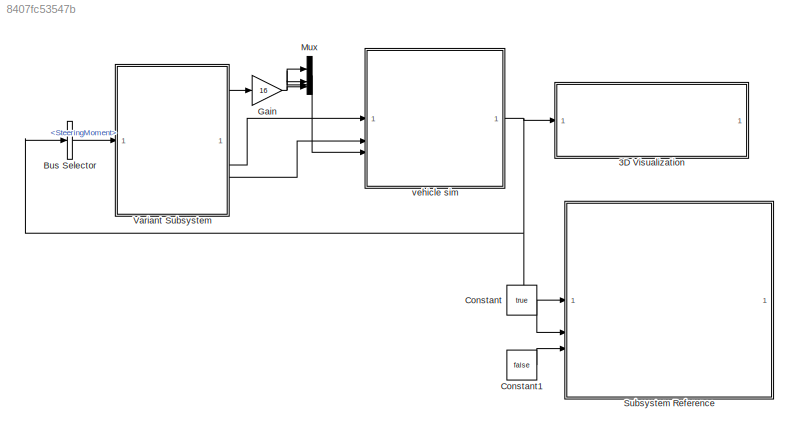
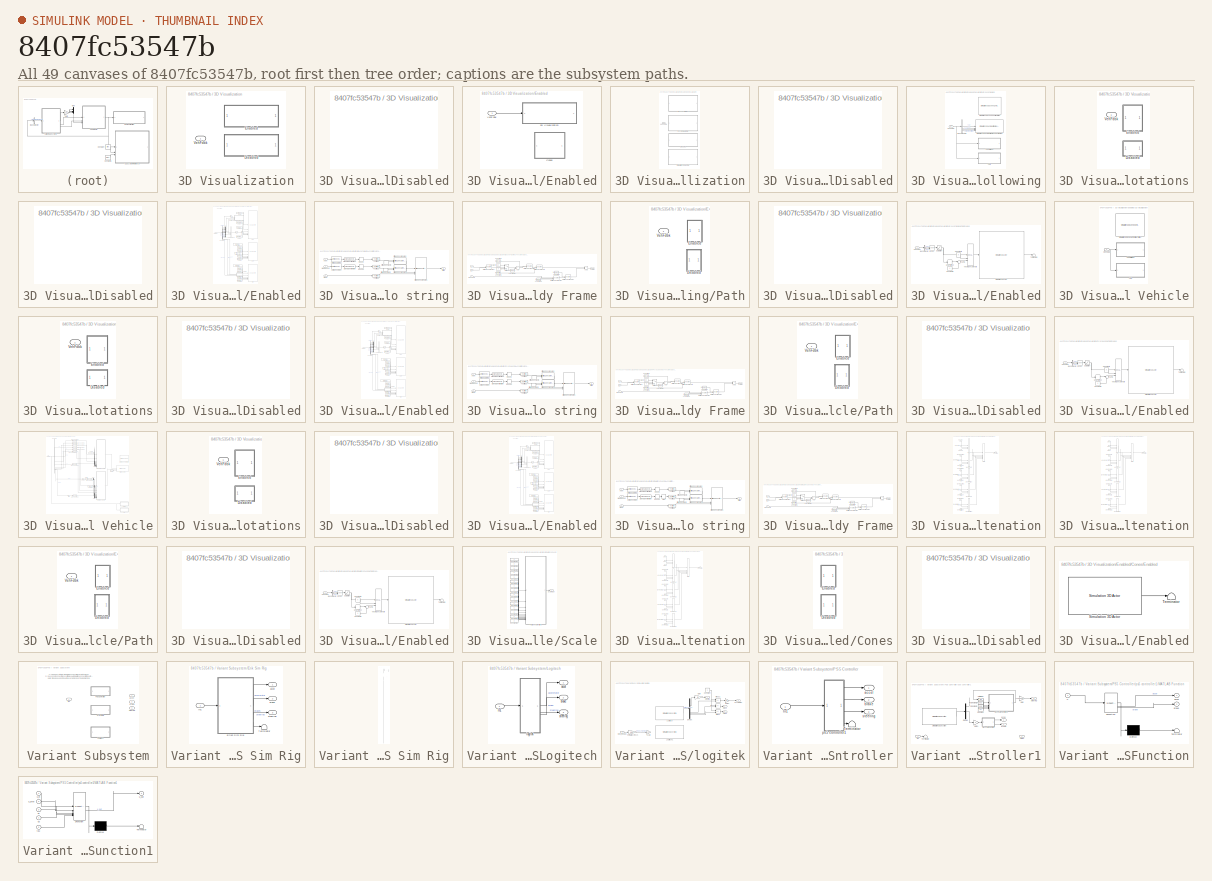
[diagram: thumbnail index - all 49 canvases of the model, root first then tree order]
MODEL slx_8407fc53547b
KIND model
CONFIG AbsTol = auto
CONFIG EnableMultiTasking = off
CONFIG FixedStep = auto
CONFIG MaxStep = auto
CONFIG MinStep = auto
CONFIG RelTol = 1e-3
CONFIG SampleTimeConstraint = Unconstrained
CONFIG SolverName = ode45
CONFIG StartTime = 0.0
CONFIG StopTime = inf
BLOCK [SubSystem] 3D Visualization
  AttributesFormatString = %<engine3D>
  Variant = on
  VariantControl = Choice
BLOCK [SubSystem] 3D Visualization/Disabled
  VariantControl = engine3D==1
BLOCK [SubSystem] 3D Visualization/Enabled
  VariantControl = engine3D~=1
BLOCK [SubSystem] 3D Visualization/Enabled/3D Visualization
  Variant = on
  VariantControl = Choice
BLOCK [SubSystem] 3D Visualization/Enabled/3D Visualization/Disabled
  VariantControl = engine3D==1
BLOCK [SubSystem] 3D Visualization/Enabled/3D Visualization/Ground Following
  VariantControl = engine3D==4
BLOCK [SubSystem] 3D Visualization/Enabled/3D Visualization/Ground Following/Annotations
  Variant = on
  VariantControl = Annotations
BLOCK [SubSystem] 3D Visualization/Enabled/3D Visualization/Ground Following/Annotations/Disabled
  VariantControl = annotOn==0
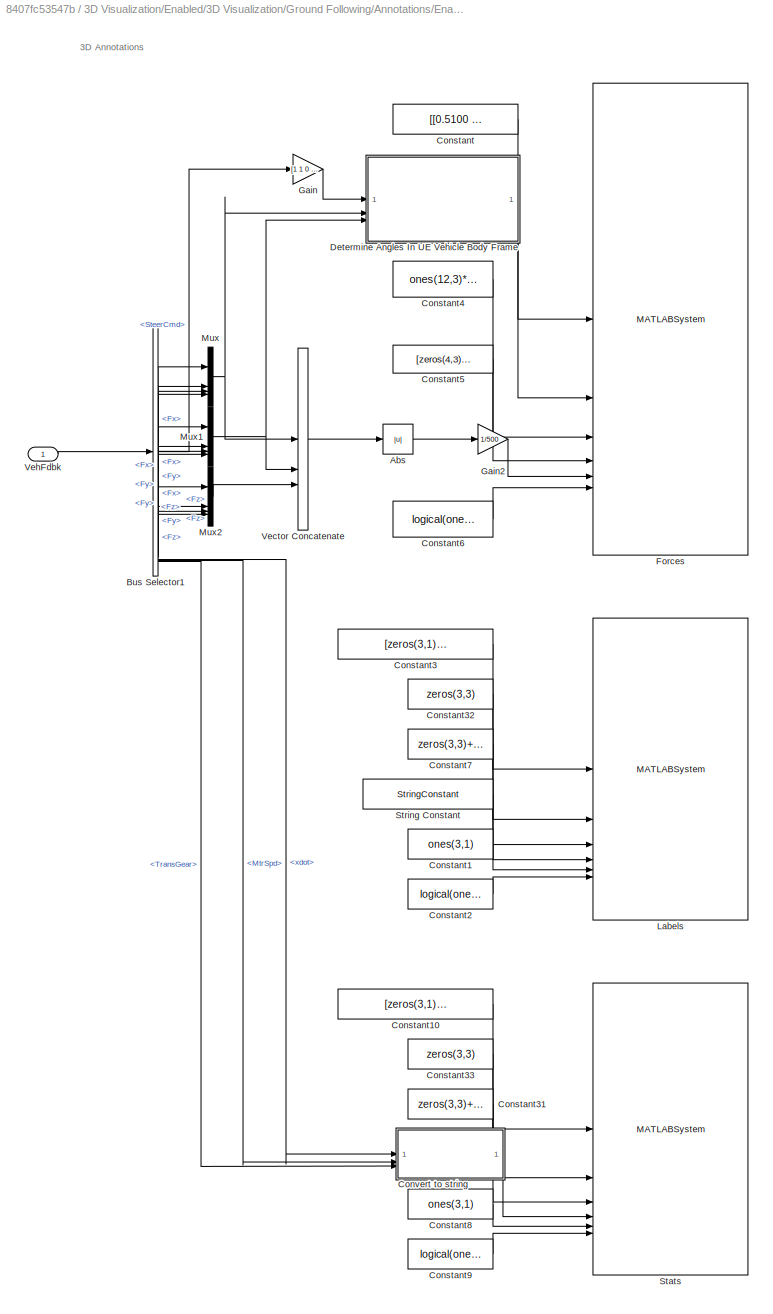
BLOCK [SubSystem] 3D Visualization/Enabled/3D Visualization/Ground Following/Annotations/Enabled
  VariantControl = annotOn==1
BLOCK [Abs] 3D Visualization/Enabled/3D Visualization/Ground Following/Annotations/Enabled/Abs
  SaturateOnIntegerOverflow = off
  ZeroCross = off
BLOCK [BusSelector] 3D Visualization/Enabled/3D Visualization/Ground Following/Annotations/Enabled/Bus Selector1
  OutputSignals = Driver.SteerCmd,VehFdbk.BdyFrm.Forces.Tires.FrntTires.Lft.Fx,VehFdbk.BdyFrm.Forces.Tires.FrntTires.Rght.Fx,VehFdbk.BdyFrm.Forces.Tires.RearTires.Lft.Fx,VehFdbk.BdyFrm.Forces.Tires.RearTires.Rght.Fx,VehFdbk.BdyFrm.Forces.Tires.FrntTires.Lft.Fy,VehFdbk.BdyFrm.Forces.Tires.FrntTires.Rght.Fy,VehFdbk.BdyFrm.Forces.Tires.RearTires.Lft.Fy,VehFdbk.BdyFrm.Forces.Tires.RearTires.Rght.Fy,VehFdbk.BdyFrm.Force...<+231ch>  <repeated x3 — deduplicated; at blocks: Bus Selector1>
BLOCK [Constant] 3D Visualization/Enabled/3D Visualization/Ground Following/Annotations/Enabled/Constant
  Value = [[0.5100   -1.000    0.1000];[0.5100    1.000    0.1000];[-0.9900   -1.000    0.1000];[-0.9900    1.000    0.1000];[0.5100   -1.000    0.1000];[0.5100    1.000    0.1000];[-0.9900   -1.000    0.1000];[-0.9900    1.000    0.1000];[0.5100   -1.000    0.1000];[0.5100    1.000    0.1000];[-0.9900   -1.000    0.1000];-[0.9900]    1.000    0.1000]  <repeated x3 — deduplicated; at blocks: Constant>
BLOCK [Constant] 3D Visualization/Enabled/3D Visualization/Ground Following/Annotations/Enabled/Constant1
  Value = ones(3,1)
BLOCK [Constant] 3D Visualization/Enabled/3D Visualization/Ground Following/Annotations/Enabled/Constant10
  Value = [zeros(3,1),[0.2;0.1;0],[2.5;2;1.5]]
BLOCK [Constant] 3D Visualization/Enabled/3D Visualization/Ground Following/Annotations/Enabled/Constant2
  Value = logical(ones(3,1))
BLOCK [Constant] 3D Visualization/Enabled/3D Visualization/Ground Following/Annotations/Enabled/Constant3
  Value = [zeros(3,1),[-0.7;-0.7;-0.7],[2.5;2;1.5]]
BLOCK [Constant] 3D Visualization/Enabled/3D Visualization/Ground Following/Annotations/Enabled/Constant31
  Value = zeros(3,3)+[1 0 0]
BLOCK [Constant] 3D Visualization/Enabled/3D Visualization/Ground Following/Annotations/Enabled/Constant32
  Value = zeros(3,3)
BLOCK [Constant] 3D Visualization/Enabled/3D Visualization/Ground Following/Annotations/Enabled/Constant33
  Value = zeros(3,3)
BLOCK [Constant] 3D Visualization/Enabled/3D Visualization/Ground Following/Annotations/Enabled/Constant4
  Value = ones(12,3)*1.8
BLOCK [Constant] 3D Visualization/Enabled/3D Visualization/Ground Following/Annotations/Enabled/Constant5
  Value = [zeros(4,3)+[1 0 0]; zeros(4,3)+[0 1 0]; zeros(4,3)+[0 0 1]]
BLOCK [Constant] 3D Visualization/Enabled/3D Visualization/Ground Following/Annotations/Enabled/Constant6
  Value = logical(ones(12,1))
BLOCK [Constant] 3D Visualization/Enabled/3D Visualization/Ground Following/Annotations/Enabled/Constant7
  Value = zeros(3,3)+[1 0 0]
BLOCK [Constant] 3D Visualization/Enabled/3D Visualization/Ground Following/Annotations/Enabled/Constant8
  Value = ones(3,1)
BLOCK [Constant] 3D Visualization/Enabled/3D Visualization/Ground Following/Annotations/Enabled/Constant9
  Value = logical(ones(3,1))
BLOCK [SubSystem] 3D Visualization/Enabled/3D Visualization/Ground Following/Annotations/Enabled/Convert to string
BLOCK [Inport] 3D Visualization/Enabled/3D Visualization/Ground Following/Annotations/Enabled/Convert to string/Gear
  Port = 3
BLOCK [Inport] 3D Visualization/Enabled/3D Visualization/Ground Following/Annotations/Enabled/Convert to string/MotorSpeed
  Port = 2
BLOCK [Rounding] 3D Visualization/Enabled/3D Visualization/Ground Following/Annotations/Enabled/Convert to string/Round
  Operator = round
BLOCK [Rounding] 3D Visualization/Enabled/3D Visualization/Ground Following/Annotations/Enabled/Convert to string/Round1
  Operator = round
BLOCK [SignalSpecification] 3D Visualization/Enabled/3D Visualization/Ground Following/Annotations/Enabled/Convert to string/Signal Specification
  Unit = rpm
BLOCK [SignalSpecification] 3D Visualization/Enabled/3D Visualization/Ground Following/Annotations/Enabled/Convert to string/Signal Specification1
  Unit = km/h
BLOCK [Outport] 3D Visualization/Enabled/3D Visualization/Ground Following/Annotations/Enabled/Convert to string/String
BLOCK [StringConcatenate] 3D Visualization/Enabled/3D Visualization/Ground Following/Annotations/Enabled/Convert to string/String Concatenate1
  Inputs = 3
BLOCK [StringConcatenate] 3D Visualization/Enabled/3D Visualization/Ground Following/Annotations/Enabled/Convert to string/String Concatenate2
BLOCK [StringConcatenate] 3D Visualization/Enabled/3D Visualization/Ground Following/Annotations/Enabled/Convert to string/String Concatenate3
BLOCK [StringConstant] 3D Visualization/Enabled/3D Visualization/Ground Following/Annotations/Enabled/Convert to string/String Constant3
  String = " km/h\n"
BLOCK [StringConstant] 3D Visualization/Enabled/3D Visualization/Ground Following/Annotations/Enabled/Convert to string/String Constant4
  String = " RPM\n"
BLOCK [ToString] 3D Visualization/Enabled/3D Visualization/Ground Following/Annotations/Enabled/Convert to string/To String1
BLOCK [ToString] 3D Visualization/Enabled/3D Visualization/Ground Following/Annotations/Enabled/Convert to string/To String2
BLOCK [ToString] 3D Visualization/Enabled/3D Visualization/Ground Following/Annotations/Enabled/Convert to string/To String3
BLOCK [UnitConversion] 3D Visualization/Enabled/3D Visualization/Ground Following/Annotations/Enabled/Convert to string/Unit Conversion
BLOCK [UnitConversion] 3D Visualization/Enabled/3D Visualization/Ground Following/Annotations/Enabled/Convert to string/Unit Conversion1
BLOCK [Inport] 3D Visualization/Enabled/3D Visualization/Ground Following/Annotations/Enabled/Convert to string/xdot
BLOCK [SubSystem] 3D Visualization/Enabled/3D Visualization/Ground Following/Annotations/Enabled/Determine Angles In UE Vehicle Body Frame
BLOCK [Sum] 3D Visualization/Enabled/3D Visualization/Ground Following/Annotations/Enabled/Determine Angles In UE Vehicle Body Frame/Add
  IconShape = rectangular
BLOCK [Sum] 3D Visualization/Enabled/3D Visualization/Ground Following/Annotations/Enabled/Determine Angles In UE Vehicle Body Frame/Add1
  IconShape = rectangular
BLOCK [Constant] 3D Visualization/Enabled/3D Visualization/Ground Following/Annotations/Enabled/Determine Angles In UE Vehicle Body Frame/Constant1
  Value = 0
BLOCK [Constant] 3D Visualization/Enabled/3D Visualization/Ground Following/Annotations/Enabled/Determine Angles In UE Vehicle Body Frame/Constant11
  Value = [zeros(4,1)]
BLOCK [Constant] 3D Visualization/Enabled/3D Visualization/Ground Following/Annotations/Enabled/Determine Angles In UE Vehicle Body Frame/Constant12
  Value = [zeros(4,1); ones(4,1).*pi/2]
BLOCK [Constant] 3D Visualization/Enabled/3D Visualization/Ground Following/Annotations/Enabled/Determine Angles In UE Vehicle Body Frame/Constant2
  Value = pi
BLOCK [Constant] 3D Visualization/Enabled/3D Visualization/Ground Following/Annotations/Enabled/Determine Angles In UE Vehicle Body Frame/Constant3
  Value = [zeros(8,2)]
BLOCK [Constant] 3D Visualization/Enabled/3D Visualization/Ground Following/Annotations/Enabled/Determine Angles In UE Vehicle Body Frame/Constant4
  Value = [zeros(12,2)]
BLOCK [Constant] 3D Visualization/Enabled/3D Visualization/Ground Following/Annotations/Enabled/Determine Angles In UE Vehicle Body Frame/Constant6
  Value = repmat([0 pi/2 0],[4,1])
BLOCK [Inport] 3D Visualization/Enabled/3D Visualization/Ground Following/Annotations/Enabled/Determine Angles In UE Vehicle Body Frame/Fx
  Port = 2
BLOCK [Inport] 3D Visualization/Enabled/3D Visualization/Ground Following/Annotations/Enabled/Determine Angles In UE Vehicle Body Frame/Fy
  Port = 3
BLOCK [Concatenate] 3D Visualization/Enabled/3D Visualization/Ground Following/Annotations/Enabled/Determine Angles In UE Vehicle Body Frame/Matrix Concatenate
  Mode = Multidimensional array
BLOCK [Concatenate] 3D Visualization/Enabled/3D Visualization/Ground Following/Annotations/Enabled/Determine Angles In UE Vehicle Body Frame/Matrix Concatenate1
  ConcatenateDimension = 2
  Mode = Multidimensional array
BLOCK [Concatenate] 3D Visualization/Enabled/3D Visualization/Ground Following/Annotations/Enabled/Determine Angles In UE Vehicle Body Frame/Matrix Concatenate2
  Mode = Multidimensional array
BLOCK [Concatenate] 3D Visualization/Enabled/3D Visualization/Ground Following/Annotations/Enabled/Determine Angles In UE Vehicle Body Frame/Matrix Concatenate3
  Mode = Multidimensional array
  NumInputs = 3
BLOCK [Concatenate] 3D Visualization/Enabled/3D Visualization/Ground Following/Annotations/Enabled/Determine Angles In UE Vehicle Body Frame/Matrix Concatenate4
  ConcatenateDimension = 2
  Mode = Multidimensional array
BLOCK [Outport] 3D Visualization/Enabled/3D Visualization/Ground Following/Annotations/Enabled/Determine Angles In UE Vehicle Body Frame/Rotation
BLOCK [Switch] 3D Visualization/Enabled/3D Visualization/Ground Following/Annotations/Enabled/Determine Angles In UE Vehicle Body Frame/Switch8
  InputSameDT = off
  SaturateOnIntegerOverflow = off
  ZeroCross = off
BLOCK [Inport] 3D Visualization/Enabled/3D Visualization/Ground Following/Annotations/Enabled/Determine Angles In UE Vehicle Body Frame/WheelYaw
BLOCK [MATLABSystem] 3D Visualization/Enabled/3D Visualization/Ground Following/Annotations/Enabled/Forces
  ActorTag = AnnotationActor1
  AnnotationType = Arrow
  InitialPos = [[0.5100   -1.000    0.1000];[0.5100    1.000    0.1000];[-0.9900   -1.000    0.1000];[-0.9900    1.000    0.1000];[0.5100   -1.000    0.1000];[0.5100    1.000    0.1000];[-0.9900   -1.000    0.1000];[-0.9900    1.000    0.1000];[0.5100   -1.000    0.1000];[0.5100    1.000    0.1000];[-0.9900   -1.000    0.1000];-[0.9900]    1.000    0.1000]  <repeated x3 — deduplicated; at blocks: Forces>
  InitialRot = [zeros(4,3);[zeros(4,3)+[0 0 pi/2]];[zeros(4,3)+[0 pi/2 0]]]
  InitialScale = zeros(12,3)
  IsHidden = logical(zeros(12,1))
  Length = zeros(12,1)
  MaskType = Simulation3DAnnotation
  ParentActor = SimulinkVehicle2
  Priority = -1
  SampleTime = Ts
  System = Simulation3DAnnotation
BLOCK [Gain] 3D Visualization/Enabled/3D Visualization/Ground Following/Annotations/Enabled/Gain
  Gain = [1 1 0 0].*pi/180*SteerLim
BLOCK [Gain] 3D Visualization/Enabled/3D Visualization/Ground Following/Annotations/Enabled/Gain2
  Gain = 1/500
BLOCK [MATLABSystem] 3D Visualization/Enabled/3D Visualization/Ground Following/Annotations/Enabled/Labels
  ActorTag = AnnotationActor2
  AnnotationType = Text
  InitialPos = [zeros(3,1),[-0.7;-0.7;-0.7],[2.5;2;1.5]]
  InitialRot = zeros(3,3)
  InitialScale = zeros(3,3)
  IsHidden = logical(ones(3,1))
  Length = 1
  MaskType = Simulation3DAnnotation
  ParentActor = SimulinkVehicle2
  Priority = -1
  SampleTime = Ts
  String = Velocity\n Engine\n Gear
  System = Simulation3DAnnotation
BLOCK [Mux] 3D Visualization/Enabled/3D Visualization/Ground Following/Annotations/Enabled/Mux
  DisplayOption = bar
BLOCK [Mux] 3D Visualization/Enabled/3D Visualization/Ground Following/Annotations/Enabled/Mux1
  DisplayOption = bar
BLOCK [Mux] 3D Visualization/Enabled/3D Visualization/Ground Following/Annotations/Enabled/Mux2
  DisplayOption = bar
BLOCK [MATLABSystem] 3D Visualization/Enabled/3D Visualization/Ground Following/Annotations/Enabled/Stats
  ActorTag = AnnotationActor3
  AnnotationType = Text
  InitialPos = [zeros(3,1),[0.2;0.1;0],[2.5;2;1.5]]
  InitialRot = zeros(3,3)
  InitialScale = zeros(3,3)
  IsHidden = logical(ones(3,1))
  Length = 1
  MaskType = Simulation3DAnnotation
  ParentActor = SimulinkVehicle2
  Priority = -1
  SampleTime = Ts
  String = 00 km/h\n 0000 RPM\n 0
  System = Simulation3DAnnotation
BLOCK [StringConstant] 3D Visualization/Enabled/3D Visualization/Ground Following/Annotations/Enabled/String Constant
  String = "Velocity\n Engine\n Gear"
BLOCK [Concatenate] 3D Visualization/Enabled/3D Visualization/Ground Following/Annotations/Enabled/Vector Concatenate
  NumInputs = 3
BLOCK [Inport] 3D Visualization/Enabled/3D Visualization/Ground Following/Annotations/Enabled/VehFdbk
BLOCK [Inport] 3D Visualization/Enabled/3D Visualization/Ground Following/Annotations/VehFdbk
BLOCK [BusSelector] 3D Visualization/Enabled/3D Visualization/Ground Following/Bus Selector3
  OutputSignals = VehFdbk.InertFrm.Cg.Disp.X,VehFdbk.InertFrm.Cg.Disp.Y,VehFdbk.InertFrm.Cg.Ang.psi,Driver.Light controls
BLOCK [SubSystem] 3D Visualization/Enabled/3D Visualization/Ground Following/Path
  Variant = on
  VariantControl = Choice
BLOCK [SubSystem] 3D Visualization/Enabled/3D Visualization/Ground Following/Path/Disabled
  VariantControl = pathOn==0
BLOCK [SubSystem] 3D Visualization/Enabled/3D Visualization/Ground Following/Path/Enabled
  VariantControl = pathOn==1
BLOCK [BusSelector] 3D Visualization/Enabled/3D Visualization/Ground Following/Path/Enabled/Bus Selector
  OutputSignals = VehFdbk.BdyFrm.Cg.Acc.ax,VehFdbk.BdyFrm.Cg.Acc.ay
BLOCK [Constant] 3D Visualization/Enabled/3D Visualization/Ground Following/Path/Enabled/Constant5
BLOCK [Constant] 3D Visualization/Enabled/3D Visualization/Ground Following/Path/Enabled/Constant6
  Value = 0
BLOCK [Math] 3D Visualization/Enabled/3D Visualization/Ground Following/Path/Enabled/Hypot
  Operator = hypot
BLOCK [Saturate] 3D Visualization/Enabled/3D Visualization/Ground Following/Path/Enabled/Saturation
  LowerLimit = 0
  UpperLimit = 1
  ZeroCross = off
BLOCK [Reference] 3D Visualization/Enabled/3D Visualization/Ground Following/Path/Enabled/Simulation 3D Actor  REF=sim3dlib/Simulation 3D Actor
  SourceBlock = sim3dlib/Simulation 3D Actor
  SourceType = Simulation 3D Actor
BLOCK [Sum] 3D Visualization/Enabled/3D Visualization/Ground Following/Path/Enabled/Sum1
  Inputs = |++
BLOCK [Terminator] 3D Visualization/Enabled/3D Visualization/Ground Following/Path/Enabled/Terminator4
BLOCK [UnaryMinus] 3D Visualization/Enabled/3D Visualization/Ground Following/Path/Enabled/Unary Minus
BLOCK [Concatenate] 3D Visualization/Enabled/3D Visualization/Ground Following/Path/Enabled/Vector Concatenate
  ConcatenateDimension = 2
  Mode = Multidimensional array
  NumInputs = 3
BLOCK [Inport] 3D Visualization/Enabled/3D Visualization/Ground Following/Path/Enabled/VehFdbk
BLOCK [Inport] 3D Visualization/Enabled/3D Visualization/Ground Following/Path/VehFdbk
BLOCK [Reference] 3D Visualization/Enabled/3D Visualization/Ground Following/Simulation 3D Scene Configuration  REF=sim3dlib/Simulation 3D Scene Configuration
  LibrarySourceBlock = vdynlib/Vehicle Scenarios/Sim3D/Sim3D Core/Simulation 3D Scene Configuration
  Priority = 0
  SourceBlock = sim3dlib/Simulation 3D Scene Configuration
  SourceType = Simulation 3D Scene Configuration
BLOCK [Reference] 3D Visualization/Enabled/3D Visualization/Ground Following/Simulation 3D Vehicle with Ground Following  REF=sim3dautolib/Simulation 3D Vehicle with Ground Following VDBS
  LibrarySourceBlock = vehdynlibsim3d/Simulation 3D Vehicle with Ground Following
  Priority = -1
  SourceBlock = sim3dautolib/Simulation 3D Vehicle with Ground Following VDBS
  SourceType = Simulation 3D Vehicle with Ground Following
BLOCK [Inport] 3D Visualization/Enabled/3D Visualization/Ground Following/VehFdbk
BLOCK [SubSystem] 3D Visualization/Enabled/3D Visualization/Physical Vehicle
  VariantControl = engine3D==3
BLOCK [SubSystem] 3D Visualization/Enabled/3D Visualization/Physical Vehicle/Annotations
  Variant = on
  VariantControl = Annotations
BLOCK [SubSystem] 3D Visualization/Enabled/3D Visualization/Physical Vehicle/Annotations/Disabled
  VariantControl = annotOn==0
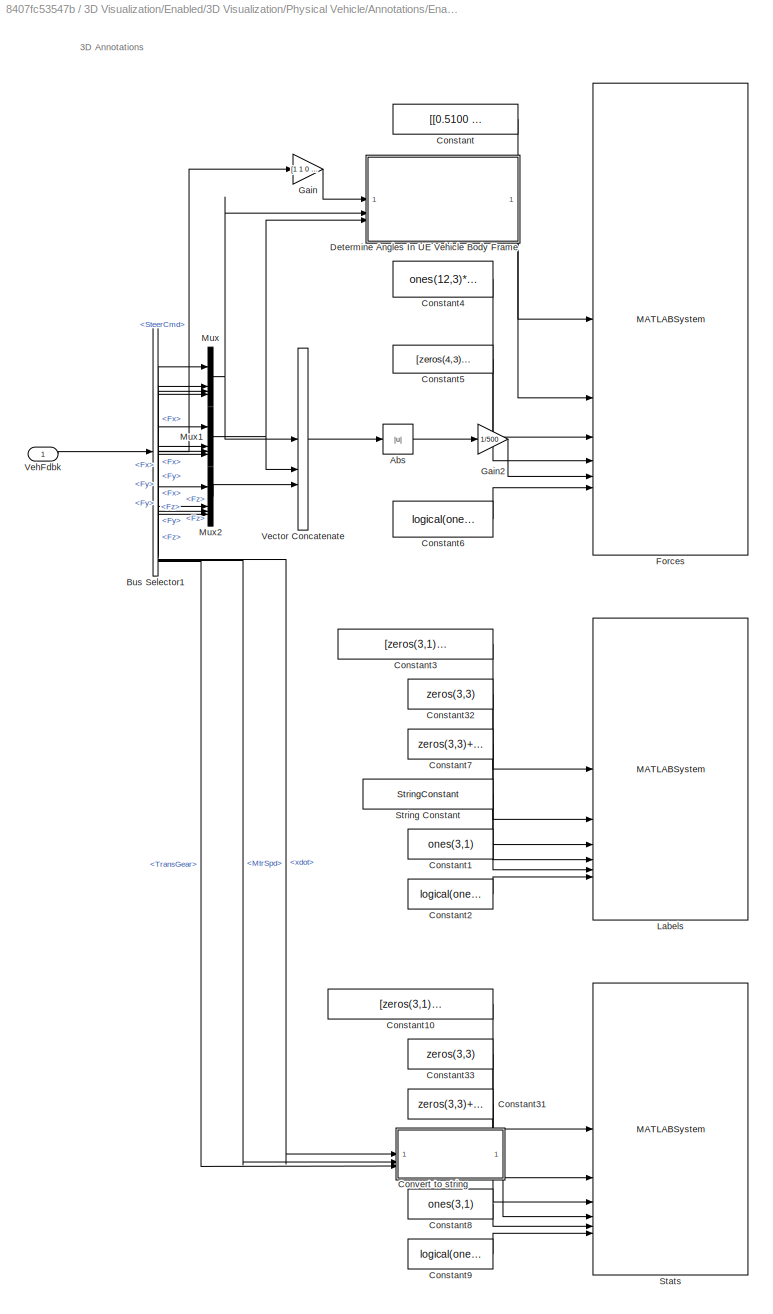
BLOCK [SubSystem] 3D Visualization/Enabled/3D Visualization/Physical Vehicle/Annotations/Enabled
  VariantControl = annotOn==1
BLOCK [Abs] 3D Visualization/Enabled/3D Visualization/Physical Vehicle/Annotations/Enabled/Abs
  SaturateOnIntegerOverflow = off
  ZeroCross = off
BLOCK [BusSelector] 3D Visualization/Enabled/3D Visualization/Physical Vehicle/Annotations/Enabled/Bus Selector1
BLOCK [Constant] 3D Visualization/Enabled/3D Visualization/Physical Vehicle/Annotations/Enabled/Constant
BLOCK [Constant] 3D Visualization/Enabled/3D Visualization/Physical Vehicle/Annotations/Enabled/Constant1
  Value = ones(3,1)
BLOCK [Constant] 3D Visualization/Enabled/3D Visualization/Physical Vehicle/Annotations/Enabled/Constant10
  Value = [zeros(3,1),[0.2;0.10;0],[2.5;2;1.5]]
BLOCK [Constant] 3D Visualization/Enabled/3D Visualization/Physical Vehicle/Annotations/Enabled/Constant2
  Value = logical(ones(3,1))
BLOCK [Constant] 3D Visualization/Enabled/3D Visualization/Physical Vehicle/Annotations/Enabled/Constant3
  Value = [zeros(3,1),[-0.7;-0.7;-0.7],[2.5;2;1.5]]
BLOCK [Constant] 3D Visualization/Enabled/3D Visualization/Physical Vehicle/Annotations/Enabled/Constant31
  Value = zeros(3,3)+[1 0 0]
BLOCK [Constant] 3D Visualization/Enabled/3D Visualization/Physical Vehicle/Annotations/Enabled/Constant32
  Value = zeros(3,3)
BLOCK [Constant] 3D Visualization/Enabled/3D Visualization/Physical Vehicle/Annotations/Enabled/Constant33
  Value = zeros(3,3)
BLOCK [Constant] 3D Visualization/Enabled/3D Visualization/Physical Vehicle/Annotations/Enabled/Constant4
  Value = ones(12,3)*1.8
BLOCK [Constant] 3D Visualization/Enabled/3D Visualization/Physical Vehicle/Annotations/Enabled/Constant5
  Value = [zeros(4,3)+[1 0 0]; zeros(4,3)+[0 1 0]; zeros(4,3)+[0 0 1]]
BLOCK [Constant] 3D Visualization/Enabled/3D Visualization/Physical Vehicle/Annotations/Enabled/Constant6
  Value = logical(ones(12,1))
BLOCK [Constant] 3D Visualization/Enabled/3D Visualization/Physical Vehicle/Annotations/Enabled/Constant7
  Value = zeros(3,3)+[1 0 0]
BLOCK [Constant] 3D Visualization/Enabled/3D Visualization/Physical Vehicle/Annotations/Enabled/Constant8
  Value = ones(3,1)
BLOCK [Constant] 3D Visualization/Enabled/3D Visualization/Physical Vehicle/Annotations/Enabled/Constant9
  Value = logical(ones(3,1))
BLOCK [SubSystem] 3D Visualization/Enabled/3D Visualization/Physical Vehicle/Annotations/Enabled/Convert to string
BLOCK [Inport] 3D Visualization/Enabled/3D Visualization/Physical Vehicle/Annotations/Enabled/Convert to string/Gear
  Port = 3
BLOCK [Inport] 3D Visualization/Enabled/3D Visualization/Physical Vehicle/Annotations/Enabled/Convert to string/MotorSpeed
  Port = 2
BLOCK [Rounding] 3D Visualization/Enabled/3D Visualization/Physical Vehicle/Annotations/Enabled/Convert to string/Round
  Operator = round
BLOCK [Rounding] 3D Visualization/Enabled/3D Visualization/Physical Vehicle/Annotations/Enabled/Convert to string/Round1
  Operator = round
BLOCK [SignalSpecification] 3D Visualization/Enabled/3D Visualization/Physical Vehicle/Annotations/Enabled/Convert to string/Signal Specification
  Unit = rpm
BLOCK [SignalSpecification] 3D Visualization/Enabled/3D Visualization/Physical Vehicle/Annotations/Enabled/Convert to string/Signal Specification1
  Unit = km/h
BLOCK [Outport] 3D Visualization/Enabled/3D Visualization/Physical Vehicle/Annotations/Enabled/Convert to string/String
BLOCK [StringConcatenate] 3D Visualization/Enabled/3D Visualization/Physical Vehicle/Annotations/Enabled/Convert to string/String Concatenate1
  Inputs = 3
BLOCK [StringConcatenate] 3D Visualization/Enabled/3D Visualization/Physical Vehicle/Annotations/Enabled/Convert to string/String Concatenate2
BLOCK [StringConcatenate] 3D Visualization/Enabled/3D Visualization/Physical Vehicle/Annotations/Enabled/Convert to string/String Concatenate3
BLOCK [StringConstant] 3D Visualization/Enabled/3D Visualization/Physical Vehicle/Annotations/Enabled/Convert to string/String Constant3
  String = " km/h\n"
BLOCK [StringConstant] 3D Visualization/Enabled/3D Visualization/Physical Vehicle/Annotations/Enabled/Convert to string/String Constant4
  String = " RPM\n"
BLOCK [ToString] 3D Visualization/Enabled/3D Visualization/Physical Vehicle/Annotations/Enabled/Convert to string/To String1
BLOCK [ToString] 3D Visualization/Enabled/3D Visualization/Physical Vehicle/Annotations/Enabled/Convert to string/To String2
BLOCK [ToString] 3D Visualization/Enabled/3D Visualization/Physical Vehicle/Annotations/Enabled/Convert to string/To String3
BLOCK [UnitConversion] 3D Visualization/Enabled/3D Visualization/Physical Vehicle/Annotations/Enabled/Convert to string/Unit Conversion
BLOCK [UnitConversion] 3D Visualization/Enabled/3D Visualization/Physical Vehicle/Annotations/Enabled/Convert to string/Unit Conversion1
BLOCK [Inport] 3D Visualization/Enabled/3D Visualization/Physical Vehicle/Annotations/Enabled/Convert to string/xdot
BLOCK [SubSystem] 3D Visualization/Enabled/3D Visualization/Physical Vehicle/Annotations/Enabled/Determine Angles In UE Vehicle Body Frame
BLOCK [Sum] 3D Visualization/Enabled/3D Visualization/Physical Vehicle/Annotations/Enabled/Determine Angles In UE Vehicle Body Frame/Add
  IconShape = rectangular
BLOCK [Sum] 3D Visualization/Enabled/3D Visualization/Physical Vehicle/Annotations/Enabled/Determine Angles In UE Vehicle Body Frame/Add1
  IconShape = rectangular
BLOCK [Constant] 3D Visualization/Enabled/3D Visualization/Physical Vehicle/Annotations/Enabled/Determine Angles In UE Vehicle Body Frame/Constant1
  Value = 0
BLOCK [Constant] 3D Visualization/Enabled/3D Visualization/Physical Vehicle/Annotations/Enabled/Determine Angles In UE Vehicle Body Frame/Constant11
  Value = [zeros(4,1)]
BLOCK [Constant] 3D Visualization/Enabled/3D Visualization/Physical Vehicle/Annotations/Enabled/Determine Angles In UE Vehicle Body Frame/Constant12
  Value = [zeros(4,1); ones(4,1).*pi/2]
BLOCK [Constant] 3D Visualization/Enabled/3D Visualization/Physical Vehicle/Annotations/Enabled/Determine Angles In UE Vehicle Body Frame/Constant2
  Value = pi
BLOCK [Constant] 3D Visualization/Enabled/3D Visualization/Physical Vehicle/Annotations/Enabled/Determine Angles In UE Vehicle Body Frame/Constant3
  Value = [zeros(8,2)]
BLOCK [Constant] 3D Visualization/Enabled/3D Visualization/Physical Vehicle/Annotations/Enabled/Determine Angles In UE Vehicle Body Frame/Constant4
  Value = [zeros(12,2)]
BLOCK [Constant] 3D Visualization/Enabled/3D Visualization/Physical Vehicle/Annotations/Enabled/Determine Angles In UE Vehicle Body Frame/Constant6
  Value = repmat([0 pi/2 0],[4,1])
BLOCK [Inport] 3D Visualization/Enabled/3D Visualization/Physical Vehicle/Annotations/Enabled/Determine Angles In UE Vehicle Body Frame/Fx
  Port = 2
BLOCK [Inport] 3D Visualization/Enabled/3D Visualization/Physical Vehicle/Annotations/Enabled/Determine Angles In UE Vehicle Body Frame/Fy
  Port = 3
BLOCK [Concatenate] 3D Visualization/Enabled/3D Visualization/Physical Vehicle/Annotations/Enabled/Determine Angles In UE Vehicle Body Frame/Matrix Concatenate
  Mode = Multidimensional array
BLOCK [Concatenate] 3D Visualization/Enabled/3D Visualization/Physical Vehicle/Annotations/Enabled/Determine Angles In UE Vehicle Body Frame/Matrix Concatenate1
  ConcatenateDimension = 2
  Mode = Multidimensional array
BLOCK [Concatenate] 3D Visualization/Enabled/3D Visualization/Physical Vehicle/Annotations/Enabled/Determine Angles In UE Vehicle Body Frame/Matrix Concatenate2
  Mode = Multidimensional array
BLOCK [Concatenate] 3D Visualization/Enabled/3D Visualization/Physical Vehicle/Annotations/Enabled/Determine Angles In UE Vehicle Body Frame/Matrix Concatenate3
  Mode = Multidimensional array
  NumInputs = 3
BLOCK [Concatenate] 3D Visualization/Enabled/3D Visualization/Physical Vehicle/Annotations/Enabled/Determine Angles In UE Vehicle Body Frame/Matrix Concatenate4
  ConcatenateDimension = 2
  Mode = Multidimensional array
BLOCK [Outport] 3D Visualization/Enabled/3D Visualization/Physical Vehicle/Annotations/Enabled/Determine Angles In UE Vehicle Body Frame/Rotation
BLOCK [Switch] 3D Visualization/Enabled/3D Visualization/Physical Vehicle/Annotations/Enabled/Determine Angles In UE Vehicle Body Frame/Switch8
  InputSameDT = off
  SaturateOnIntegerOverflow = off
  ZeroCross = off
BLOCK [Inport] 3D Visualization/Enabled/3D Visualization/Physical Vehicle/Annotations/Enabled/Determine Angles In UE Vehicle Body Frame/WheelYaw
BLOCK [MATLABSystem] 3D Visualization/Enabled/3D Visualization/Physical Vehicle/Annotations/Enabled/Forces
  ActorTag = AnnotationActor1
  AnnotationType = Arrow
  InitialRot = [zeros(4,3);[zeros(4,3)+[0 0 pi/2]];[zeros(4,3)+[0 pi/2 0]]]
  InitialScale = zeros(12,3)
  IsHidden = logical(zeros(12,1))
  Length = zeros(12,1)
  MaskType = Simulation3DAnnotation
  ParentActor = SimulinkVehicle2
  Priority = -1
  SampleTime = Ts
  System = Simulation3DAnnotation
BLOCK [Gain] 3D Visualization/Enabled/3D Visualization/Physical Vehicle/Annotations/Enabled/Gain
  Gain = [1 1 0 0].*pi/180*SteerLim
BLOCK [Gain] 3D Visualization/Enabled/3D Visualization/Physical Vehicle/Annotations/Enabled/Gain2
  Gain = 1/500
BLOCK [MATLABSystem] 3D Visualization/Enabled/3D Visualization/Physical Vehicle/Annotations/Enabled/Labels
  ActorTag = AnnotationActor2
  AnnotationType = Text
  InitialPos = [zeros(3,1),[-0.7;-0.7;-0.7],[2.5;2;1.5]]
  InitialRot = zeros(3,3)
  InitialScale = zeros(3,3)
  IsHidden = logical(ones(3,1))
  Length = 1
  MaskType = Simulation3DAnnotation
  ParentActor = SimulinkVehicle2
  Priority = -1
  SampleTime = Ts
  String = Velocity\n Engine\n Gear
  System = Simulation3DAnnotation
BLOCK [Mux] 3D Visualization/Enabled/3D Visualization/Physical Vehicle/Annotations/Enabled/Mux
  DisplayOption = bar
BLOCK [Mux] 3D Visualization/Enabled/3D Visualization/Physical Vehicle/Annotations/Enabled/Mux1
  DisplayOption = bar
BLOCK [Mux] 3D Visualization/Enabled/3D Visualization/Physical Vehicle/Annotations/Enabled/Mux2
  DisplayOption = bar
BLOCK [MATLABSystem] 3D Visualization/Enabled/3D Visualization/Physical Vehicle/Annotations/Enabled/Stats
  ActorTag = AnnotationActor3
  AnnotationType = Text
  InitialPos = [zeros(3,1),[0.2;0.1;0.0],[2.5;2;1.5]]
  InitialRot = zeros(3,3)
  InitialScale = zeros(3,3)
  IsHidden = logical(ones(3,1))
  Length = 1
  MaskType = Simulation3DAnnotation
  ParentActor = SimulinkVehicle2
  Priority = -1
  SampleTime = Ts
  String = 00 km/h\n 0000 RPM\n 0
  System = Simulation3DAnnotation
BLOCK [StringConstant] 3D Visualization/Enabled/3D Visualization/Physical Vehicle/Annotations/Enabled/String Constant
  String = "Velocity\n Engine\n Gear"
BLOCK [Concatenate] 3D Visualization/Enabled/3D Visualization/Physical Vehicle/Annotations/Enabled/Vector Concatenate
  NumInputs = 3
BLOCK [Inport] 3D Visualization/Enabled/3D Visualization/Physical Vehicle/Annotations/Enabled/VehFdbk
BLOCK [Inport] 3D Visualization/Enabled/3D Visualization/Physical Vehicle/Annotations/VehFdbk
BLOCK [SubSystem] 3D Visualization/Enabled/3D Visualization/Physical Vehicle/Path
  Variant = on
  VariantControl = Choice
BLOCK [SubSystem] 3D Visualization/Enabled/3D Visualization/Physical Vehicle/Path/Disabled
  VariantControl = pathOn==0
BLOCK [SubSystem] 3D Visualization/Enabled/3D Visualization/Physical Vehicle/Path/Enabled
  VariantControl = pathOn==1
BLOCK [BusSelector] 3D Visualization/Enabled/3D Visualization/Physical Vehicle/Path/Enabled/Bus Selector
  OutputSignals = VehFdbk.BdyFrm.Cg.Acc.ax,VehFdbk.BdyFrm.Cg.Acc.ay
BLOCK [Constant] 3D Visualization/Enabled/3D Visualization/Physical Vehicle/Path/Enabled/Constant5
BLOCK [Constant] 3D Visualization/Enabled/3D Visualization/Physical Vehicle/Path/Enabled/Constant6
  Value = 0
BLOCK [Math] 3D Visualization/Enabled/3D Visualization/Physical Vehicle/Path/Enabled/Hypot
  Operator = hypot
BLOCK [Saturate] 3D Visualization/Enabled/3D Visualization/Physical Vehicle/Path/Enabled/Saturation
  LowerLimit = 0
  UpperLimit = 1
  ZeroCross = off
BLOCK [Reference] 3D Visualization/Enabled/3D Visualization/Physical Vehicle/Path/Enabled/Simulation 3D Actor  REF=sim3dlib/Simulation 3D Actor
  SourceBlock = sim3dlib/Simulation 3D Actor
  SourceType = Simulation 3D Actor
BLOCK [Sum] 3D Visualization/Enabled/3D Visualization/Physical Vehicle/Path/Enabled/Sum1
  Inputs = |++
BLOCK [Terminator] 3D Visualization/Enabled/3D Visualization/Physical Vehicle/Path/Enabled/Terminator4
BLOCK [UnaryMinus] 3D Visualization/Enabled/3D Visualization/Physical Vehicle/Path/Enabled/Unary Minus
BLOCK [Concatenate] 3D Visualization/Enabled/3D Visualization/Physical Vehicle/Path/Enabled/Vector Concatenate
  ConcatenateDimension = 2
  Mode = Multidimensional array
  NumInputs = 3
BLOCK [Inport] 3D Visualization/Enabled/3D Visualization/Physical Vehicle/Path/Enabled/VehFdbk
BLOCK [Inport] 3D Visualization/Enabled/3D Visualization/Physical Vehicle/Path/VehFdbk
BLOCK [Reference] 3D Visualization/Enabled/3D Visualization/Physical Vehicle/Simulation 3D Scene Configuration  REF=sim3dlib/Simulation 3D Scene Configuration
  LibrarySourceBlock = vdynlib/Vehicle Scenarios/Sim3D/Sim3D Core/Simulation 3D Scene Configuration
  Priority = 0
  SourceBlock = sim3dlib/Simulation 3D Scene Configuration
  SourceType = Simulation 3D Scene Configuration
BLOCK [Inport] 3D Visualization/Enabled/3D Visualization/Physical Vehicle/VehFdbk
BLOCK [SubSystem] 3D Visualization/Enabled/3D Visualization/Simulation 3D Vehicle
  VariantControl = engine3D==2
BLOCK [SubSystem] 3D Visualization/Enabled/3D Visualization/Simulation 3D Vehicle/Annotations
  Variant = on
  VariantControl = Annotations
BLOCK [SubSystem] 3D Visualization/Enabled/3D Visualization/Simulation 3D Vehicle/Annotations/Disabled
  VariantControl = annotOn==0
BLOCK [SubSystem] 3D Visualization/Enabled/3D Visualization/Simulation 3D Vehicle/Annotations/Enabled
  VariantControl = annotOn==1
BLOCK [Abs] 3D Visualization/Enabled/3D Visualization/Simulation 3D Vehicle/Annotations/Enabled/Abs
  SaturateOnIntegerOverflow = off
  ZeroCross = off
BLOCK [BusSelector] 3D Visualization/Enabled/3D Visualization/Simulation 3D Vehicle/Annotations/Enabled/Bus Selector1
BLOCK [Constant] 3D Visualization/Enabled/3D Visualization/Simulation 3D Vehicle/Annotations/Enabled/Constant
BLOCK [Constant] 3D Visualization/Enabled/3D Visualization/Simulation 3D Vehicle/Annotations/Enabled/Constant1
  Value = ones(3,1)
BLOCK [Constant] 3D Visualization/Enabled/3D Visualization/Simulation 3D Vehicle/Annotations/Enabled/Constant10
  Value = [zeros(3,1),[0.2;0.1;0],[2.5;2;1.5]]
BLOCK [Constant] 3D Visualization/Enabled/3D Visualization/Simulation 3D Vehicle/Annotations/Enabled/Constant2
  Value = logical(ones(3,1))
BLOCK [Constant] 3D Visualization/Enabled/3D Visualization/Simulation 3D Vehicle/Annotations/Enabled/Constant3
  Value = [zeros(3,1),[-0.7;-1.2;-0.7],[2.5;2;1.5]]
BLOCK [Constant] 3D Visualization/Enabled/3D Visualization/Simulation 3D Vehicle/Annotations/Enabled/Constant31
  Value = zeros(3,3)+[1 0 0]
BLOCK [Constant] 3D Visualization/Enabled/3D Visualization/Simulation 3D Vehicle/Annotations/Enabled/Constant32
  Value = zeros(3,3)
BLOCK [Constant] 3D Visualization/Enabled/3D Visualization/Simulation 3D Vehicle/Annotations/Enabled/Constant33
  Value = zeros(3,3)
BLOCK [Constant] 3D Visualization/Enabled/3D Visualization/Simulation 3D Vehicle/Annotations/Enabled/Constant4
  Value = ones(12,3)*1.8
BLOCK [Constant] 3D Visualization/Enabled/3D Visualization/Simulation 3D Vehicle/Annotations/Enabled/Constant5
  Value = [zeros(4,3)+[1 0 0]; zeros(4,3)+[0 1 0]; zeros(4,3)+[0 0 1]]
BLOCK [Constant] 3D Visualization/Enabled/3D Visualization/Simulation 3D Vehicle/Annotations/Enabled/Constant6
  Value = logical(ones(12,1))
BLOCK [Constant] 3D Visualization/Enabled/3D Visualization/Simulation 3D Vehicle/Annotations/Enabled/Constant7
  Value = zeros(3,3)+[1 0 0]
BLOCK [Constant] 3D Visualization/Enabled/3D Visualization/Simulation 3D Vehicle/Annotations/Enabled/Constant8
  Value = ones(3,1)
BLOCK [Constant] 3D Visualization/Enabled/3D Visualization/Simulation 3D Vehicle/Annotations/Enabled/Constant9
  Value = logical(ones(3,1))
BLOCK [SubSystem] 3D Visualization/Enabled/3D Visualization/Simulation 3D Vehicle/Annotations/Enabled/Convert to string
BLOCK [Inport] 3D Visualization/Enabled/3D Visualization/Simulation 3D Vehicle/Annotations/Enabled/Convert to string/Gear
  Port = 3
BLOCK [MinMax] 3D Visualization/Enabled/3D Visualization/Simulation 3D Vehicle/Annotations/Enabled/Convert to string/Max
  Function = max
  ZeroCross = off
BLOCK [Inport] 3D Visualization/Enabled/3D Visualization/Simulation 3D Vehicle/Annotations/Enabled/Convert to string/MotorSpeed
  Port = 2
BLOCK [Rounding] 3D Visualization/Enabled/3D Visualization/Simulation 3D Vehicle/Annotations/Enabled/Convert to string/Round
  Operator = round
BLOCK [Rounding] 3D Visualization/Enabled/3D Visualization/Simulation 3D Vehicle/Annotations/Enabled/Convert to string/Round1
  Operator = round
BLOCK [SignalSpecification] 3D Visualization/Enabled/3D Visualization/Simulation 3D Vehicle/Annotations/Enabled/Convert to string/Signal Specification
  Unit = rpm
BLOCK [SignalSpecification] 3D Visualization/Enabled/3D Visualization/Simulation 3D Vehicle/Annotations/Enabled/Convert to string/Signal Specification1
  Unit = km/h
BLOCK [Outport] 3D Visualization/Enabled/3D Visualization/Simulation 3D Vehicle/Annotations/Enabled/Convert to string/String
BLOCK [StringConcatenate] 3D Visualization/Enabled/3D Visualization/Simulation 3D Vehicle/Annotations/Enabled/Convert to string/String Concatenate1
  Inputs = 3
BLOCK [StringConcatenate] 3D Visualization/Enabled/3D Visualization/Simulation 3D Vehicle/Annotations/Enabled/Convert to string/String Concatenate2
BLOCK [StringConcatenate] 3D Visualization/Enabled/3D Visualization/Simulation 3D Vehicle/Annotations/Enabled/Convert to string/String Concatenate3
BLOCK [StringConstant] 3D Visualization/Enabled/3D Visualization/Simulation 3D Vehicle/Annotations/Enabled/Convert to string/String Constant3
  String = " km/h\n"
BLOCK [StringConstant] 3D Visualization/Enabled/3D Visualization/Simulation 3D Vehicle/Annotations/Enabled/Convert to string/String Constant4
  String = " RPM\n"
BLOCK [ToString] 3D Visualization/Enabled/3D Visualization/Simulation 3D Vehicle/Annotations/Enabled/Convert to string/To String1
BLOCK [ToString] 3D Visualization/Enabled/3D Visualization/Simulation 3D Vehicle/Annotations/Enabled/Convert to string/To String2
BLOCK [ToString] 3D Visualization/Enabled/3D Visualization/Simulation 3D Vehicle/Annotations/Enabled/Convert to string/To String3
BLOCK [UnitConversion] 3D Visualization/Enabled/3D Visualization/Simulation 3D Vehicle/Annotations/Enabled/Convert to string/Unit Conversion
BLOCK [UnitConversion] 3D Visualization/Enabled/3D Visualization/Simulation 3D Vehicle/Annotations/Enabled/Convert to string/Unit Conversion1
BLOCK [Inport] 3D Visualization/Enabled/3D Visualization/Simulation 3D Vehicle/Annotations/Enabled/Convert to string/xdot
BLOCK [SubSystem] 3D Visualization/Enabled/3D Visualization/Simulation 3D Vehicle/Annotations/Enabled/Determine Angles In UE Vehicle Body Frame
BLOCK [Sum] 3D Visualization/Enabled/3D Visualization/Simulation 3D Vehicle/Annotations/Enabled/Determine Angles In UE Vehicle Body Frame/Add
  IconShape = rectangular
BLOCK [Sum] 3D Visualization/Enabled/3D Visualization/Simulation 3D Vehicle/Annotations/Enabled/Determine Angles In UE Vehicle Body Frame/Add1
  IconShape = rectangular
BLOCK [Constant] 3D Visualization/Enabled/3D Visualization/Simulation 3D Vehicle/Annotations/Enabled/Determine Angles In UE Vehicle Body Frame/Constant1
  Value = 0
BLOCK [Constant] 3D Visualization/Enabled/3D Visualization/Simulation 3D Vehicle/Annotations/Enabled/Determine Angles In UE Vehicle Body Frame/Constant11
  Value = [zeros(4,1)]
BLOCK [Constant] 3D Visualization/Enabled/3D Visualization/Simulation 3D Vehicle/Annotations/Enabled/Determine Angles In UE Vehicle Body Frame/Constant12
  Value = [zeros(4,1); ones(4,1).*pi/2]
BLOCK [Constant] 3D Visualization/Enabled/3D Visualization/Simulation 3D Vehicle/Annotations/Enabled/Determine Angles In UE Vehicle Body Frame/Constant2
  Value = pi
BLOCK [Constant] 3D Visualization/Enabled/3D Visualization/Simulation 3D Vehicle/Annotations/Enabled/Determine Angles In UE Vehicle Body Frame/Constant3
  Value = [zeros(8,2)]
BLOCK [Constant] 3D Visualization/Enabled/3D Visualization/Simulation 3D Vehicle/Annotations/Enabled/Determine Angles In UE Vehicle Body Frame/Constant4
  Value = [zeros(12,2)]
BLOCK [Constant] 3D Visualization/Enabled/3D Visualization/Simulation 3D Vehicle/Annotations/Enabled/Determine Angles In UE Vehicle Body Frame/Constant6
  Value = repmat([0 pi/2 0],[4,1])
BLOCK [Inport] 3D Visualization/Enabled/3D Visualization/Simulation 3D Vehicle/Annotations/Enabled/Determine Angles In UE Vehicle Body Frame/Fx
  Port = 2
BLOCK [Inport] 3D Visualization/Enabled/3D Visualization/Simulation 3D Vehicle/Annotations/Enabled/Determine Angles In UE Vehicle Body Frame/Fy
  Port = 3
BLOCK [Concatenate] 3D Visualization/Enabled/3D Visualization/Simulation 3D Vehicle/Annotations/Enabled/Determine Angles In UE Vehicle Body Frame/Matrix Concatenate
  Mode = Multidimensional array
BLOCK [Concatenate] 3D Visualization/Enabled/3D Visualization/Simulation 3D Vehicle/Annotations/Enabled/Determine Angles In UE Vehicle Body Frame/Matrix Concatenate1
  ConcatenateDimension = 2
  Mode = Multidimensional array
BLOCK [Concatenate] 3D Visualization/Enabled/3D Visualization/Simulation 3D Vehicle/Annotations/Enabled/Determine Angles In UE Vehicle Body Frame/Matrix Concatenate2
  Mode = Multidimensional array
BLOCK [Concatenate] 3D Visualization/Enabled/3D Visualization/Simulation 3D Vehicle/Annotations/Enabled/Determine Angles In UE Vehicle Body Frame/Matrix Concatenate3
  Mode = Multidimensional array
  NumInputs = 3
BLOCK [Concatenate] 3D Visualization/Enabled/3D Visualization/Simulation 3D Vehicle/Annotations/Enabled/Determine Angles In UE Vehicle Body Frame/Matrix Concatenate4
  ConcatenateDimension = 2
  Mode = Multidimensional array
BLOCK [Outport] 3D Visualization/Enabled/3D Visualization/Simulation 3D Vehicle/Annotations/Enabled/Determine Angles In UE Vehicle Body Frame/Rotation
BLOCK [Switch] 3D Visualization/Enabled/3D Visualization/Simulation 3D Vehicle/Annotations/Enabled/Determine Angles In UE Vehicle Body Frame/Switch8
  InputSameDT = off
  SaturateOnIntegerOverflow = off
  ZeroCross = off
BLOCK [Inport] 3D Visualization/Enabled/3D Visualization/Simulation 3D Vehicle/Annotations/Enabled/Determine Angles In UE Vehicle Body Frame/WheelYaw
BLOCK [MATLABSystem] 3D Visualization/Enabled/3D Visualization/Simulation 3D Vehicle/Annotations/Enabled/Forces
  ActorTag = AnnotationActor1
  AnnotationType = Arrow
  InitialRot = [zeros(4,3);[zeros(4,3)+[0 0 pi/2]];[zeros(4,3)+[0 pi/2 0]]]
  InitialScale = zeros(12,3)
  IsHidden = logical(zeros(12,1))
  Length = zeros(12,1)
  MaskType = Simulation3DAnnotation
  ParentActor = SimulinkVehicle1
  Priority = -1
  SampleTime = Ts
  System = Simulation3DAnnotation
BLOCK [Gain] 3D Visualization/Enabled/3D Visualization/Simulation 3D Vehicle/Annotations/Enabled/Gain
  Gain = [1 1 0 0].*pi/180*SteerLim
BLOCK [Gain] 3D Visualization/Enabled/3D Visualization/Simulation 3D Vehicle/Annotations/Enabled/Gain2
  Gain = 1/500
BLOCK [MATLABSystem] 3D Visualization/Enabled/3D Visualization/Simulation 3D Vehicle/Annotations/Enabled/Labels
  ActorTag = AnnotationActor2
  AnnotationType = Text
  InitialPos = [zeros(3,1),[-0.7;-0.7;-0.7],[2.5;2;1.5]]
  InitialRot = zeros(3,3)
  InitialScale = zeros(3,3)
  IsHidden = logical(ones(3,1))
  Length = 1
  MaskType = Simulation3DAnnotation
  ParentActor = SimulinkVehicle1
  Priority = -1
  SampleTime = Ts
  String = Velocity\n Motor (max)\n Gear
  System = Simulation3DAnnotation
BLOCK [Mux] 3D Visualization/Enabled/3D Visualization/Simulation 3D Vehicle/Annotations/Enabled/Mux
  DisplayOption = bar
BLOCK [Mux] 3D Visualization/Enabled/3D Visualization/Simulation 3D Vehicle/Annotations/Enabled/Mux1
  DisplayOption = bar
BLOCK [Mux] 3D Visualization/Enabled/3D Visualization/Simulation 3D Vehicle/Annotations/Enabled/Mux2
  DisplayOption = bar
BLOCK [MATLABSystem] 3D Visualization/Enabled/3D Visualization/Simulation 3D Vehicle/Annotations/Enabled/Stats
  ActorTag = AnnotationActor3
  AnnotationType = Text
  InitialPos = [zeros(3,1),[0.2;0.1;0],[2.5;2;1.5]]
  InitialRot = zeros(3,3)
  InitialScale = zeros(3,3)
  IsHidden = logical(ones(3,1))
  Length = 1
  MaskType = Simulation3DAnnotation
  ParentActor = SimulinkVehicle1
  Priority = -1
  SampleTime = Ts
  String = 00 km/h\n 0000 RPM\n 0
  System = Simulation3DAnnotation
BLOCK [StringConstant] 3D Visualization/Enabled/3D Visualization/Simulation 3D Vehicle/Annotations/Enabled/String Constant
  String = "Velocity\n Max Motor \n Gear"
BLOCK [Concatenate] 3D Visualization/Enabled/3D Visualization/Simulation 3D Vehicle/Annotations/Enabled/Vector Concatenate
  NumInputs = 3
BLOCK [Inport] 3D Visualization/Enabled/3D Visualization/Simulation 3D Vehicle/Annotations/Enabled/VehFdbk
BLOCK [Inport] 3D Visualization/Enabled/3D Visualization/Simulation 3D Vehicle/Annotations/VehFdbk
BLOCK [BusSelector] 3D Visualization/Enabled/3D Visualization/Simulation 3D Vehicle/Bus Selector3
  OutputSignals = InertFrm.Cg.Disp.X,InertFrm.Cg.Disp.Y,InertFrm.Cg.Disp.Z,InertFrm.Cg.Ang.phi,InertFrm.Cg.Ang.theta,InertFrm.Cg.Ang.psi,Wheels.z,Wheels.Omega,SteerCmd
BLOCK [Constant] 3D Visualization/Enabled/3D Visualization/Simulation 3D Vehicle/Constant1
  OutDataTypeStr = single
  Value = zeros(4,1)
BLOCK [Constant] 3D Visualization/Enabled/3D Visualization/Simulation 3D Vehicle/Constant2
  OutDataTypeStr = single
  Value = 0
BLOCK [DataTypeConversion] 3D Visualization/Enabled/3D Visualization/Simulation 3D Vehicle/Data Type Conversion1
  OutDataTypeStr = single
  RndMeth = Floor
  SaturateOnIntegerOverflow = off
BLOCK [DataTypeConversion] 3D Visualization/Enabled/3D Visualization/Simulation 3D Vehicle/Data Type Conversion10
  OutDataTypeStr = single
  RndMeth = Floor
  SaturateOnIntegerOverflow = off
BLOCK [DataTypeConversion] 3D Visualization/Enabled/3D Visualization/Simulation 3D Vehicle/Data Type Conversion12
  OutDataTypeStr = single
  RndMeth = Floor
  SaturateOnIntegerOverflow = off
BLOCK [DataTypeConversion] 3D Visualization/Enabled/3D Visualization/Simulation 3D Vehicle/Data Type Conversion4
  OutDataTypeStr = single
  RndMeth = Floor
  SaturateOnIntegerOverflow = off
BLOCK [DataTypeConversion] 3D Visualization/Enabled/3D Visualization/Simulation 3D Vehicle/Data Type Conversion5
  OutDataTypeStr = single
  RndMeth = Floor
  SaturateOnIntegerOverflow = off
BLOCK [DataTypeConversion] 3D Visualization/Enabled/3D Visualization/Simulation 3D Vehicle/Data Type Conversion6
  OutDataTypeStr = single
  RndMeth = Floor
  SaturateOnIntegerOverflow = off
BLOCK [DataTypeConversion] 3D Visualization/Enabled/3D Visualization/Simulation 3D Vehicle/Data Type Conversion7
  OutDataTypeStr = single
  RndMeth = Floor
  SaturateOnIntegerOverflow = off
BLOCK [DataTypeConversion] 3D Visualization/Enabled/3D Visualization/Simulation 3D Vehicle/Data Type Conversion8
  OutDataTypeStr = single
  RndMeth = Floor
  SaturateOnIntegerOverflow = off
BLOCK [DataTypeConversion] 3D Visualization/Enabled/3D Visualization/Simulation 3D Vehicle/Data Type Conversion9
  OutDataTypeStr = single
  RndMeth = Floor
  SaturateOnIntegerOverflow = off
BLOCK [Demux] 3D Visualization/Enabled/3D Visualization/Simulation 3D Vehicle/Demux
BLOCK [Demux] 3D Visualization/Enabled/3D Visualization/Simulation 3D Vehicle/Demux1
BLOCK [Demux] 3D Visualization/Enabled/3D Visualization/Simulation 3D Vehicle/Demux2
BLOCK [Demux] 3D Visualization/Enabled/3D Visualization/Simulation 3D Vehicle/Demux3
BLOCK [Gain] 3D Visualization/Enabled/3D Visualization/Simulation 3D Vehicle/Gain
  Gain = [1 1 0 0].*pi/180
BLOCK [Integrator] 3D Visualization/Enabled/3D Visualization/Simulation 3D Vehicle/Integrator
  WrapState = on
  WrappedStateLowerValue = 0
  WrappedStateUpperValue = 2*pi
  ZeroCross = off
BLOCK [SubSystem] 3D Visualization/Enabled/3D Visualization/Simulation 3D Vehicle/Part Rotation Concatenation
BLOCK [Concatenate] 3D Visualization/Enabled/3D Visualization/Simulation 3D Vehicle/Part Rotation Concatenation/AllParts
  Mode = Multidimensional array
  NumInputs = 5
BLOCK [Concatenate] 3D Visualization/Enabled/3D Visualization/Simulation 3D Vehicle/Part Rotation Concatenation/Body
  ConcatenateDimension = 2
  Mode = Multidimensional array
  NumInputs = 3
BLOCK [Inport] 3D Visualization/Enabled/3D Visualization/Simulation 3D Vehicle/Part Rotation Concatenation/Body Ptich
  Port = 2
BLOCK [Inport] 3D Visualization/Enabled/3D Visualization/Simulation 3D Vehicle/Part Rotation Concatenation/Body Roll
BLOCK [Inport] 3D Visualization/Enabled/3D Visualization/Simulation 3D Vehicle/Part Rotation Concatenation/Body Yaw
  Port = 3
BLOCK [Outport] 3D Visualization/Enabled/3D Visualization/Simulation 3D Vehicle/Part Rotation Concatenation/ConcatOut
  VectorParamsAs1DForOutWhenUnconnected = off
BLOCK [Concatenate] 3D Visualization/Enabled/3D Visualization/Simulation 3D Vehicle/Part Rotation Concatenation/WheelFrontLeft
  ConcatenateDimension = 2
  Mode = Multidimensional array
  NumInputs = 3
BLOCK [Inport] 3D Visualization/Enabled/3D Visualization/Simulation 3D Vehicle/Part Rotation Concatenation/WheelFrontLeft Pitch
  Port = 4
BLOCK [Inport] 3D Visualization/Enabled/3D Visualization/Simulation 3D Vehicle/Part Rotation Concatenation/WheelFrontLeft Roll
  Port = 8
BLOCK [Inport] 3D Visualization/Enabled/3D Visualization/Simulation 3D Vehicle/Part Rotation Concatenation/WheelFrontLeft Yaw
  Port = 12
BLOCK [Concatenate] 3D Visualization/Enabled/3D Visualization/Simulation 3D Vehicle/Part Rotation Concatenation/WheelFrontRight
  ConcatenateDimension = 2
  Mode = Multidimensional array
  NumInputs = 3
BLOCK [Inport] 3D Visualization/Enabled/3D Visualization/Simulation 3D Vehicle/Part Rotation Concatenation/WheelFrontRight Pitch
  Port = 5
BLOCK [Inport] 3D Visualization/Enabled/3D Visualization/Simulation 3D Vehicle/Part Rotation Concatenation/WheelFrontRight Roll
  Port = 9
BLOCK [Inport] 3D Visualization/Enabled/3D Visualization/Simulation 3D Vehicle/Part Rotation Concatenation/WheelFrontRight Yaw
  Port = 13
BLOCK [Concatenate] 3D Visualization/Enabled/3D Visualization/Simulation 3D Vehicle/Part Rotation Concatenation/WheelRearLeft
  ConcatenateDimension = 2
  Mode = Multidimensional array
  NumInputs = 3
BLOCK [Inport] 3D Visualization/Enabled/3D Visualization/Simulation 3D Vehicle/Part Rotation Concatenation/WheelRearLeft Pitch
  Port = 6
BLOCK [Inport] 3D Visualization/Enabled/3D Visualization/Simulation 3D Vehicle/Part Rotation Concatenation/WheelRearLeft Roll
  Port = 10
BLOCK [Inport] 3D Visualization/Enabled/3D Visualization/Simulation 3D Vehicle/Part Rotation Concatenation/WheelRearLeft Yaw
  Port = 14
BLOCK [Concatenate] 3D Visualization/Enabled/3D Visualization/Simulation 3D Vehicle/Part Rotation Concatenation/WheelRearRight
  ConcatenateDimension = 2
  Mode = Multidimensional array
  NumInputs = 3
BLOCK [Inport] 3D Visualization/Enabled/3D Visualization/Simulation 3D Vehicle/Part Rotation Concatenation/WheelRearRight Ptich
  Port = 7
BLOCK [Inport] 3D Visualization/Enabled/3D Visualization/Simulation 3D Vehicle/Part Rotation Concatenation/WheelRearRight Roll
  Port = 11
BLOCK [Inport] 3D Visualization/Enabled/3D Visualization/Simulation 3D Vehicle/Part Rotation Concatenation/WheelRearRight Yaw
  Port = 15
BLOCK [SubSystem] 3D Visualization/Enabled/3D Visualization/Simulation 3D Vehicle/Part Translation Concatenation
BLOCK [Concatenate] 3D Visualization/Enabled/3D Visualization/Simulation 3D Vehicle/Part Translation Concatenation/AllParts
  Mode = Multidimensional array
  NumInputs = 5
BLOCK [Concatenate] 3D Visualization/Enabled/3D Visualization/Simulation 3D Vehicle/Part Translation Concatenation/Body
  ConcatenateDimension = 2
  Mode = Multidimensional array
  NumInputs = 3
BLOCK [Inport] 3D Visualization/Enabled/3D Visualization/Simulation 3D Vehicle/Part Translation Concatenation/BodyX
BLOCK [Inport] 3D Visualization/Enabled/3D Visualization/Simulation 3D Vehicle/Part Translation Concatenation/BodyY
  Port = 2
BLOCK [Inport] 3D Visualization/Enabled/3D Visualization/Simulation 3D Vehicle/Part Translation Concatenation/BodyZ
  Port = 3
BLOCK [Outport] 3D Visualization/Enabled/3D Visualization/Simulation 3D Vehicle/Part Translation Concatenation/ConcatOut
  VectorParamsAs1DForOutWhenUnconnected = off
BLOCK [Concatenate] 3D Visualization/Enabled/3D Visualization/Simulation 3D Vehicle/Part Translation Concatenation/WheelFrontLeft
  ConcatenateDimension = 2
  Mode = Multidimensional array
  NumInputs = 3
BLOCK [Inport] 3D Visualization/Enabled/3D Visualization/Simulation 3D Vehicle/Part Translation Concatenation/WheelFrontLeftX
  Port = 4
BLOCK [Inport] 3D Visualization/Enabled/3D Visualization/Simulation 3D Vehicle/Part Translation Concatenation/WheelFrontLeftY
  Port = 8
BLOCK [Inport] 3D Visualization/Enabled/3D Visualization/Simulation 3D Vehicle/Part Translation Concatenation/WheelFrontLeftZ
  Port = 12
BLOCK [Concatenate] 3D Visualization/Enabled/3D Visualization/Simulation 3D Vehicle/Part Translation Concatenation/WheelFrontRight
  ConcatenateDimension = 2
  Mode = Multidimensional array
  NumInputs = 3
BLOCK [Inport] 3D Visualization/Enabled/3D Visualization/Simulation 3D Vehicle/Part Translation Concatenation/WheelFrontRightX
  Port = 5
BLOCK [Inport] 3D Visualization/Enabled/3D Visualization/Simulation 3D Vehicle/Part Translation Concatenation/WheelFrontRightY
  Port = 9
BLOCK [Inport] 3D Visualization/Enabled/3D Visualization/Simulation 3D Vehicle/Part Translation Concatenation/WheelFrontRightZ
  Port = 13
BLOCK [Concatenate] 3D Visualization/Enabled/3D Visualization/Simulation 3D Vehicle/Part Translation Concatenation/WheelRearLeft
  ConcatenateDimension = 2
  Mode = Multidimensional array
  NumInputs = 3
BLOCK [Inport] 3D Visualization/Enabled/3D Visualization/Simulation 3D Vehicle/Part Translation Concatenation/WheelRearLeftX
  Port = 6
BLOCK [Inport] 3D Visualization/Enabled/3D Visualization/Simulation 3D Vehicle/Part Translation Concatenation/WheelRearLeftY
  Port = 10
BLOCK [Inport] 3D Visualization/Enabled/3D Visualization/Simulation 3D Vehicle/Part Translation Concatenation/WheelRearLeftZ
  Port = 14
BLOCK [Concatenate] 3D Visualization/Enabled/3D Visualization/Simulation 3D Vehicle/Part Translation Concatenation/WheelRearRight
  ConcatenateDimension = 2
  Mode = Multidimensional array
  NumInputs = 3
BLOCK [Inport] 3D Visualization/Enabled/3D Visualization/Simulation 3D Vehicle/Part Translation Concatenation/WheelRearRightX
  Port = 7
BLOCK [Inport] 3D Visualization/Enabled/3D Visualization/Simulation 3D Vehicle/Part Translation Concatenation/WheelRearRightY
  Port = 11
BLOCK [Inport] 3D Visualization/Enabled/3D Visualization/Simulation 3D Vehicle/Part Translation Concatenation/WheelRearRightZ
  Port = 15
BLOCK [SubSystem] 3D Visualization/Enabled/3D Visualization/Simulation 3D Vehicle/Path
  Variant = on
  VariantControl = Choice
BLOCK [SubSystem] 3D Visualization/Enabled/3D Visualization/Simulation 3D Vehicle/Path/Disabled
  VariantControl = pathOn==0
BLOCK [SubSystem] 3D Visualization/Enabled/3D Visualization/Simulation 3D Vehicle/Path/Enabled
  VariantControl = pathOn==1
BLOCK [BusSelector] 3D Visualization/Enabled/3D Visualization/Simulation 3D Vehicle/Path/Enabled/Bus Selector
  OutputSignals = BdyFrm.Cg.Acc.ax,BdyFrm.Cg.Acc.ay
BLOCK [Constant] 3D Visualization/Enabled/3D Visualization/Simulation 3D Vehicle/Path/Enabled/Constant5
BLOCK [Constant] 3D Visualization/Enabled/3D Visualization/Simulation 3D Vehicle/Path/Enabled/Constant6
  Value = 0
BLOCK [Math] 3D Visualization/Enabled/3D Visualization/Simulation 3D Vehicle/Path/Enabled/Hypot
  Operator = hypot
BLOCK [Saturate] 3D Visualization/Enabled/3D Visualization/Simulation 3D Vehicle/Path/Enabled/Saturation
  LowerLimit = 0
  UpperLimit = 1
  ZeroCross = off
BLOCK [Reference] 3D Visualization/Enabled/3D Visualization/Simulation 3D Vehicle/Path/Enabled/Simulation 3D Actor  REF=sim3dlib/Simulation 3D Actor
  Priority = 10
  SourceBlock = sim3dlib/Simulation 3D Actor
  SourceType = Simulation 3D Actor
BLOCK [Sum] 3D Visualization/Enabled/3D Visualization/Simulation 3D Vehicle/Path/Enabled/Sum1
  Inputs = |++
BLOCK [Terminator] 3D Visualization/Enabled/3D Visualization/Simulation 3D Vehicle/Path/Enabled/Terminator4
BLOCK [UnaryMinus] 3D Visualization/Enabled/3D Visualization/Simulation 3D Vehicle/Path/Enabled/Unary Minus
BLOCK [Concatenate] 3D Visualization/Enabled/3D Visualization/Simulation 3D Vehicle/Path/Enabled/Vector Concatenate
  ConcatenateDimension = 2
  Mode = Multidimensional array
  NumInputs = 3
BLOCK [Inport] 3D Visualization/Enabled/3D Visualization/Simulation 3D Vehicle/Path/Enabled/VehFdbk
BLOCK [Inport] 3D Visualization/Enabled/3D Visualization/Simulation 3D Vehicle/Path/VehFdbk
BLOCK [SubSystem] 3D Visualization/Enabled/3D Visualization/Simulation 3D Vehicle/Scale
BLOCK [Constant] 3D Visualization/Enabled/3D Visualization/Simulation 3D Vehicle/Scale/Constant1
  OutDataTypeStr = single
BLOCK [Constant] 3D Visualization/Enabled/3D Visualization/Simulation 3D Vehicle/Scale/Constant10
  OutDataTypeStr = single
BLOCK [Constant] 3D Visualization/Enabled/3D Visualization/Simulation 3D Vehicle/Scale/Constant11
  OutDataTypeStr = single
BLOCK [Constant] 3D Visualization/Enabled/3D Visualization/Simulation 3D Vehicle/Scale/Constant12
  OutDataTypeStr = single
BLOCK [Constant] 3D Visualization/Enabled/3D Visualization/Simulation 3D Vehicle/Scale/Constant17
  OutDataTypeStr = single
BLOCK [Constant] 3D Visualization/Enabled/3D Visualization/Simulation 3D Vehicle/Scale/Constant2
  OutDataTypeStr = single
BLOCK [Constant] 3D Visualization/Enabled/3D Visualization/Simulation 3D Vehicle/Scale/Constant3
  OutDataTypeStr = single
BLOCK [Constant] 3D Visualization/Enabled/3D Visualization/Simulation 3D Vehicle/Scale/Constant32
  OutDataTypeStr = single
BLOCK [Constant] 3D Visualization/Enabled/3D Visualization/Simulation 3D Vehicle/Scale/Constant33
  OutDataTypeStr = single
BLOCK [Constant] 3D Visualization/Enabled/3D Visualization/Simulation 3D Vehicle/Scale/Constant4
  OutDataTypeStr = single
BLOCK [Constant] 3D Visualization/Enabled/3D Visualization/Simulation 3D Vehicle/Scale/Constant5
  OutDataTypeStr = single
BLOCK [Constant] 3D Visualization/Enabled/3D Visualization/Simulation 3D Vehicle/Scale/Constant6
  OutDataTypeStr = single
BLOCK [Constant] 3D Visualization/Enabled/3D Visualization/Simulation 3D Vehicle/Scale/Constant7
  OutDataTypeStr = single
BLOCK [Constant] 3D Visualization/Enabled/3D Visualization/Simulation 3D Vehicle/Scale/Constant8
  OutDataTypeStr = single
BLOCK [Constant] 3D Visualization/Enabled/3D Visualization/Simulation 3D Vehicle/Scale/Constant9
  OutDataTypeStr = single
BLOCK [SubSystem] 3D Visualization/Enabled/3D Visualization/Simulation 3D Vehicle/Scale/PartConcatenation
BLOCK [Concatenate] 3D Visualization/Enabled/3D Visualization/Simulation 3D Vehicle/Scale/PartConcatenation/AllParts
  Mode = Multidimensional array
  NumInputs = 5
BLOCK [Concatenate] 3D Visualization/Enabled/3D Visualization/Simulation 3D Vehicle/Scale/PartConcatenation/Body
  ConcatenateDimension = 2
  Mode = Multidimensional array
  NumInputs = 3
BLOCK [Inport] 3D Visualization/Enabled/3D Visualization/Simulation 3D Vehicle/Scale/PartConcatenation/BodyX
BLOCK [Inport] 3D Visualization/Enabled/3D Visualization/Simulation 3D Vehicle/Scale/PartConcatenation/BodyY
  Port = 2
BLOCK [Inport] 3D Visualization/Enabled/3D Visualization/Simulation 3D Vehicle/Scale/PartConcatenation/BodyZ
  Port = 3
BLOCK [Outport] 3D Visualization/Enabled/3D Visualization/Simulation 3D Vehicle/Scale/PartConcatenation/ConcatOut
  VectorParamsAs1DForOutWhenUnconnected = off
BLOCK [Concatenate] 3D Visualization/Enabled/3D Visualization/Simulation 3D Vehicle/Scale/PartConcatenation/WheelFrontLeft
  ConcatenateDimension = 2
  Mode = Multidimensional array
  NumInputs = 3
BLOCK [Inport] 3D Visualization/Enabled/3D Visualization/Simulation 3D Vehicle/Scale/PartConcatenation/WheelFrontLeftX
  Port = 4
BLOCK [Inport] 3D Visualization/Enabled/3D Visualization/Simulation 3D Vehicle/Scale/PartConcatenation/WheelFrontLeftY
  Port = 5
BLOCK [Inport] 3D Visualization/Enabled/3D Visualization/Simulation 3D Vehicle/Scale/PartConcatenation/WheelFrontLeftZ
  Port = 6
BLOCK [Concatenate] 3D Visualization/Enabled/3D Visualization/Simulation 3D Vehicle/Scale/PartConcatenation/WheelFrontRight
  ConcatenateDimension = 2
  Mode = Multidimensional array
  NumInputs = 3
BLOCK [Inport] 3D Visualization/Enabled/3D Visualization/Simulation 3D Vehicle/Scale/PartConcatenation/WheelFrontRightX
  Port = 7
BLOCK [Inport] 3D Visualization/Enabled/3D Visualization/Simulation 3D Vehicle/Scale/PartConcatenation/WheelFrontRightY
  Port = 8
BLOCK [Inport] 3D Visualization/Enabled/3D Visualization/Simulation 3D Vehicle/Scale/PartConcatenation/WheelFrontRightZ
  Port = 9
BLOCK [Concatenate] 3D Visualization/Enabled/3D Visualization/Simulation 3D Vehicle/Scale/PartConcatenation/WheelRearLeft
  ConcatenateDimension = 2
  Mode = Multidimensional array
  NumInputs = 3
BLOCK [Inport] 3D Visualization/Enabled/3D Visualization/Simulation 3D Vehicle/Scale/PartConcatenation/WheelRearLeftX
  Port = 10
BLOCK [Inport] 3D Visualization/Enabled/3D Visualization/Simulation 3D Vehicle/Scale/PartConcatenation/WheelRearLeftY
  Port = 11
BLOCK [Inport] 3D Visualization/Enabled/3D Visualization/Simulation 3D Vehicle/Scale/PartConcatenation/WheelRearLeftZ
  Port = 12
BLOCK [Concatenate] 3D Visualization/Enabled/3D Visualization/Simulation 3D Vehicle/Scale/PartConcatenation/WheelRearRight
  ConcatenateDimension = 2
  Mode = Multidimensional array
  NumInputs = 3
BLOCK [Inport] 3D Visualization/Enabled/3D Visualization/Simulation 3D Vehicle/Scale/PartConcatenation/WheelRearRightX
  Port = 13
BLOCK [Inport] 3D Visualization/Enabled/3D Visualization/Simulation 3D Vehicle/Scale/PartConcatenation/WheelRearRightY
  Port = 14
BLOCK [Inport] 3D Visualization/Enabled/3D Visualization/Simulation 3D Vehicle/Scale/PartConcatenation/WheelRearRightZ
  Port = 15
BLOCK [Outport] 3D Visualization/Enabled/3D Visualization/Simulation 3D Vehicle/Scale/ScaleOut
  VectorParamsAs1DForOutWhenUnconnected = off
BLOCK [Reference] 3D Visualization/Enabled/3D Visualization/Simulation 3D Vehicle/Simulation 3D Scene Configuration  REF=sim3dlib/Simulation 3D Scene Configuration
  LibrarySourceBlock = vdynlib/Vehicle Scenarios/Sim3D/Sim3D Core/Simulation 3D Scene Configuration
  Priority = 0
  SourceBlock = sim3dlib/Simulation 3D Scene Configuration
  SourceType = Simulation 3D Scene Configuration
BLOCK [Reference] 3D Visualization/Enabled/3D Visualization/Simulation 3D Vehicle/Simulation 3D Vehicle  REF=sim3dautolib/Simulation 3D Vehicle
  LibrarySourceBlock = vdynlib/Vehicle Scenarios/Sim3D/Sim3D Vehicle/Components/Simulation 3D Vehicle
  Priority = -1
  SourceBlock = sim3dautolib/Simulation 3D Vehicle
  SourceType = Simulation 3D Vehicle
BLOCK [UnaryMinus] 3D Visualization/Enabled/3D Visualization/Simulation 3D Vehicle/Unary Minus
BLOCK [Inport] 3D Visualization/Enabled/3D Visualization/Simulation 3D Vehicle/VehFdbk
BLOCK [Inport] 3D Visualization/Enabled/3D Visualization/VehFdbk
BLOCK [SubSystem] 3D Visualization/Enabled/Cones
  Variant = on
  VariantControl = Choice
BLOCK [SubSystem] 3D Visualization/Enabled/Cones/Disabled
  VariantControl = conesOn==0
BLOCK [SubSystem] 3D Visualization/Enabled/Cones/Enabled
  VariantControl = conesOn==1
BLOCK [Reference] 3D Visualization/Enabled/Cones/Enabled/Simulation 3D Actor  REF=sim3dlib/Simulation 3D Actor
  LibrarySourceBlock = sl3dlib/Simulation 3D/Simulation 3D Actor
  SourceBlock = sim3dlib/Simulation 3D Actor
  SourceType = Simulation 3D Actor
BLOCK [Terminator] 3D Visualization/Enabled/Cones/Enabled/Terminator
BLOCK [Inport] 3D Visualization/Enabled/VehFdbk
BLOCK [Inport] 3D Visualization/VehFdbk
BLOCK [BusSelector] Bus Selector
  OutputSignals = SteeringMoment
BLOCK [Constant] Constant
  Value = true
BLOCK [Constant] Constant1
  Value = false
BLOCK [Gain] Gain
  Gain = 16
BLOCK [Mux] Mux
  DisplayOption = bar
BLOCK [SubSystem] Subsystem Reference
  ReferencedSubsystem = state_estimation
BLOCK [SubSystem] Variant Subsystem
  LabelModeActiveChoice = PS5 Controller
  Variant = on
  VariantControlMode = label
BLOCK [SubSystem] Variant Subsystem/Erik Sim Rig
  VariantControl = Erik Sim Rig
BLOCK [SubSystem] Variant Subsystem/Erik Sim Rig/Erik's Sim Rig
  Commented = on
BLOCK [Gain] Variant Subsystem/Erik Sim Rig/Erik's Sim Rig/0-1 normalizer
  Gain = 1/9
BLOCK [Sum] Variant Subsystem/Erik Sim Rig/Erik's Sim Rig/Add
  IconShape = rectangular
BLOCK [Constant] Variant Subsystem/Erik Sim Rig/Erik's Sim Rig/Constant
BLOCK [Demux] Variant Subsystem/Erik Sim Rig/Erik's Sim Rig/Demux
  Outputs = 7
BLOCK [Demux] Variant Subsystem/Erik Sim Rig/Erik's Sim Rig/Demux1
  Outputs = 8
BLOCK [Demux] Variant Subsystem/Erik Sim Rig/Erik's Sim Rig/Demux2
  Outputs = 116
BLOCK [Demux] Variant Subsystem/Erik Sim Rig/Erik's Sim Rig/Demux3
BLOCK [Gain] Variant Subsystem/Erik Sim Rig/Erik's Sim Rig/Gain
  Gain = 1/2
BLOCK [Gain] Variant Subsystem/Erik Sim Rig/Erik's Sim Rig/Gain1
  Gain = pi
BLOCK [Mux] Variant Subsystem/Erik Sim Rig/Erik's Sim Rig/Mux
  DisplayOption = bar
BLOCK [Reference] Variant Subsystem/Erik Sim Rig/Erik's Sim Rig/P1000 Pedals  REF=sl3dlib/Simulation 3D/Hardware Interface/Simulation 3D Joystick
  SourceBlock = sl3dlib/Simulation 3D/Hardware Interface/Simulation 3D Joystick
  SourceType = Simulation 3D Joystick
BLOCK [Reference] Variant Subsystem/Erik Sim Rig/Erik's Sim Rig/Simulation 3D Joystick  REF=sl3dlib/Simulation 3D/Hardware Interface/Simulation 3D Joystick
  SourceBlock = sl3dlib/Simulation 3D/Hardware Interface/Simulation 3D Joystick
  SourceType = Simulation 3D Joystick
BLOCK [Reference] Variant Subsystem/Erik Sim Rig/Erik's Sim Rig/Simulation 3D Joystick1  REF=sl3dlib/Simulation 3D/Hardware Interface/Simulation 3D Joystick
  SourceBlock = sl3dlib/Simulation 3D/Hardware Interface/Simulation 3D Joystick
  SourceType = Simulation 3D Joystick
BLOCK [Terminator] Variant Subsystem/Erik Sim Rig/Erik's Sim Rig/Terminator
BLOCK [Outport] Variant Subsystem/Erik Sim Rig/Erik's Sim Rig/accelerator
  PortDimensions = 1
  Unit = %
BLOCK [Outport] Variant Subsystem/Erik Sim Rig/Erik's Sim Rig/brake
  Port = 2
  PortDimensions = 1
  Unit = %
BLOCK [Outport] Variant Subsystem/Erik Sim Rig/Erik's Sim Rig/clutch
  Port = 4
BLOCK [Inport] Variant Subsystem/Erik Sim Rig/Erik's Sim Rig/steer_feedbk
  Unit = N*m
BLOCK [Outport] Variant Subsystem/Erik Sim Rig/Erik's Sim Rig/steering
  Port = 3
  PortDimensions = 1
  Unit = rad
BLOCK [Gain] Variant Subsystem/Erik Sim Rig/Erik's Sim Rig/true moment to wheel torque
  Gain = -1/7
BLOCK [Inport] Variant Subsystem/Erik Sim Rig/In1
BLOCK [Terminator] Variant Subsystem/Erik Sim Rig/Terminator
BLOCK [Outport] Variant Subsystem/Erik Sim Rig/accel
BLOCK [Outport] Variant Subsystem/Erik Sim Rig/brake
  Port = 2
BLOCK [Outport] Variant Subsystem/Erik Sim Rig/steering
  Port = 3
BLOCK [Inport] Variant Subsystem/In1
BLOCK [SubSystem] Variant Subsystem/Logitech
  VariantControl = Logitech
BLOCK [Inport] Variant Subsystem/Logitech/In1
BLOCK [Outport] Variant Subsystem/Logitech/accel
BLOCK [Outport] Variant Subsystem/Logitech/brake
  Port = 2
BLOCK [SubSystem] Variant Subsystem/Logitech/logitek
  Commented = on
BLOCK [Constant] Variant Subsystem/Logitech/logitek/Constant
BLOCK [Demux] Variant Subsystem/Logitech/logitek/Demux
BLOCK [Gain] Variant Subsystem/Logitech/logitek/Gain
  Gain = pi
BLOCK [Gain] Variant Subsystem/Logitech/logitek/Gain3
  Gain = 1/2
BLOCK [Reference] Variant Subsystem/Logitech/logitek/Logitech  REF=sl3dlib/Simulation 3D/Hardware Interface/Simulation 3D Joystick
  SourceBlock = sl3dlib/Simulation 3D/Hardware Interface/Simulation 3D Joystick
  SourceType = Simulation 3D Joystick
BLOCK [Reference] Variant Subsystem/Logitech/logitek/Logitech1  REF=sl3dlib/Simulation 3D/Hardware Interface/Simulation 3D Joystick
  SourceBlock = sl3dlib/Simulation 3D/Hardware Interface/Simulation 3D Joystick
  SourceType = Simulation 3D Joystick
BLOCK [Sum] Variant Subsystem/Logitech/logitek/Minus
  IconShape = rectangular
  Inputs = +-
BLOCK [Sum] Variant Subsystem/Logitech/logitek/Minus1
  IconShape = rectangular
  Inputs = +-
BLOCK [Sum] Variant Subsystem/Logitech/logitek/Minus2
  IconShape = rectangular
  Inputs = +-
BLOCK [Outport] Variant Subsystem/Logitech/logitek/accelerator
  PortDimensions = 1
  Unit = %
BLOCK [Outport] Variant Subsystem/Logitech/logitek/brake
  Port = 2
  PortDimensions = 1
  Unit = %
BLOCK [Outport] Variant Subsystem/Logitech/logitek/clutch
  Port = 4
BLOCK [Gain] Variant Subsystem/Logitech/logitek/normalize+rhsys
  Gain = -1/10
BLOCK [Gain] Variant Subsystem/Logitech/logitek/scale
  Gain = 1/3
BLOCK [Inport] Variant Subsystem/Logitech/logitek/steer_feedbk
BLOCK [Outport] Variant Subsystem/Logitech/logitek/steering
  Port = 3
  PortDimensions = 1
  Unit = rad
BLOCK [Outport] Variant Subsystem/Logitech/steering
  Port = 3
BLOCK [SubSystem] Variant Subsystem/PS5 Controller
  VariantControl = PS5 Controller
BLOCK [Inport] Variant Subsystem/PS5 Controller/In1
BLOCK [Terminator] Variant Subsystem/PS5 Controller/Terminator
BLOCK [Outport] Variant Subsystem/PS5 Controller/accel
BLOCK [Outport] Variant Subsystem/PS5 Controller/brake
  Port = 2
BLOCK [SubSystem] Variant Subsystem/PS5 Controller/ps5 controller1
BLOCK [Constant] Variant Subsystem/PS5 Controller/ps5 controller1/Constant
  Value = 0.7
BLOCK [Constant] Variant Subsystem/PS5 Controller/ps5 controller1/Constant1
  Value = 0.25
BLOCK [Constant] Variant Subsystem/PS5 Controller/ps5 controller1/Constant2
  Value = 0.02
BLOCK [Demux] Variant Subsystem/PS5 Controller/ps5 controller1/Demux
  Outputs = 5
BLOCK [Gain] Variant Subsystem/PS5 Controller/ps5 controller1/Gain
  Gain = 1.486322391
BLOCK [Gain] Variant Subsystem/PS5 Controller/ps5 controller1/Gain1
  Gain = -1
BLOCK [Inport] Variant Subsystem/PS5 Controller/ps5 controller1/In1
BLOCK [SubSystem] Variant Subsystem/PS5 Controller/ps5 controller1/MATLAB Function
  ErrorFcn = Stateflow.Translate.translate
  PermitHierarchicalResolution = ExplicitOnly
  SFBlockType = MATLAB Function
  TreatAsAtomicUnit = on
BLOCK [Demux] Variant Subsystem/PS5 Controller/ps5 controller1/MATLAB Function/ Demux 
  Outputs = 1
BLOCK [S-Function] Variant Subsystem/PS5 Controller/ps5 controller1/MATLAB Function/ SFunction 
  EnableBusSupport = off
  FunctionName = sf_sfun
  PortCounts = [1 3]
  SFcnIsStateOwnerBlock = off
  SFunctionDeploymentMode = off
  Tag = Stateflow S-Function 12
BLOCK [Terminator] Variant Subsystem/PS5 Controller/ps5 controller1/MATLAB Function/ Terminator 
BLOCK [Outport] Variant Subsystem/PS5 Controller/ps5 controller1/MATLAB Function/accel
BLOCK [Outport] Variant Subsystem/PS5 Controller/ps5 controller1/MATLAB Function/brake
  Port = 2
BLOCK [Inport] Variant Subsystem/PS5 Controller/ps5 controller1/MATLAB Function/u
BLOCK [SubSystem] Variant Subsystem/PS5 Controller/ps5 controller1/MATLAB Function1
  ErrorFcn = Stateflow.Translate.translate
  PermitHierarchicalResolution = ExplicitOnly
  SFBlockType = MATLAB Function
  TreatAsAtomicUnit = on
BLOCK [Demux] Variant Subsystem/PS5 Controller/ps5 controller1/MATLAB Function1/ Demux 
  Outputs = 1
BLOCK [S-Function] Variant Subsystem/PS5 Controller/ps5 controller1/MATLAB Function1/ SFunction 
  EnableBusSupport = off
  FunctionName = sf_sfun
  PortCounts = [5 2]
  SFcnIsStateOwnerBlock = off
  SFunctionDeploymentMode = off
  Tag = Stateflow S-Function 13
BLOCK [Terminator] Variant Subsystem/PS5 Controller/ps5 controller1/MATLAB Function1/ Terminator 
BLOCK [Inport] Variant Subsystem/PS5 Controller/ps5 controller1/MATLAB Function1/dt
  Port = 3
BLOCK [Inport] Variant Subsystem/PS5 Controller/ps5 controller1/MATLAB Function1/dz
  Port = 4
BLOCK [Inport] Variant Subsystem/PS5 Controller/ps5 controller1/MATLAB Function1/tau
  Port = 5
BLOCK [Inport] Variant Subsystem/PS5 Controller/ps5 controller1/MATLAB Function1/u_in
BLOCK [Outport] Variant Subsystem/PS5 Controller/ps5 controller1/MATLAB Function1/u_out
BLOCK [Inport] Variant Subsystem/PS5 Controller/ps5 controller1/MATLAB Function1/u_prev
  Port = 2
BLOCK [Reference] Variant Subsystem/PS5 Controller/ps5 controller1/Simulation 3D Joystick  REF=sl3dlib/Simulation 3D/Hardware Interface/Simulation 3D Joystick
  SourceBlock = sl3dlib/Simulation 3D/Hardware Interface/Simulation 3D Joystick
  SourceType = Simulation 3D Joystick
BLOCK [Terminator] Variant Subsystem/PS5 Controller/ps5 controller1/Terminator
BLOCK [UnitDelay] Variant Subsystem/PS5 Controller/ps5 controller1/Unit Delay
  HasFrameUpgradeWarning = on
  SampleTime = -1
BLOCK [Outport] Variant Subsystem/PS5 Controller/ps5 controller1/accel
BLOCK [Outport] Variant Subsystem/PS5 Controller/ps5 controller1/brake
  Port = 2
BLOCK [Outport] Variant Subsystem/PS5 Controller/ps5 controller1/clutch
  Port = 4
BLOCK [Outport] Variant Subsystem/PS5 Controller/ps5 controller1/steering
  Port = 3
BLOCK [Outport] Variant Subsystem/PS5 Controller/steering
  Port = 3
BLOCK [Outport] Variant Subsystem/accel
BLOCK [Outport] Variant Subsystem/brake
  Port = 2
BLOCK [Outport] Variant Subsystem/steering
  Port = 3
BLOCK [SubSystem] vehicle sim
  PortSchema = {"entries":[{"content":{"sides":[{"content":{"connectorIds":["In3","In1","In2"]},"type":"ConnectorPlacement.EquallySpacedRectSide","uuid":"2886007b-a0f4-4bb5-a5bd-4610453b4ac6"},{"content":{"connectorIds":["Out1"],"side":"RIGHT"},"type":"ConnectorPlacement.EquallySpacedRectSide","uuid":"a778ebb1-3fe2-49fc-aedb-6d27b2181d36"},{"content":{"side":"TOP"},"type":"ConnectorPlacement.EquallySpacedRectSid...<+360ch>
  ReferencedSubsystem = vehicle_sim
ANNOTATION 3D Visualization/Enabled/3D Visualization/Ground Following/Annotations/Enabled: 3D Annotations
ANNOTATION 3D Visualization/Enabled/3D Visualization/Physical Vehicle/Annotations/Enabled: 3D Annotations
ANNOTATION 3D Visualization/Enabled/3D Visualization/Simulation 3D Vehicle/Annotations/Enabled: 3D Annotations
ANNOTATION Variant Subsystem: 1) Add Subsystem or Model blocks as valid variant choices. 2) You cannot connect blocks at this level. At simulation, connectivity is automatically determined, based on the active variant and port name matching.
LINE 3D Visualization/Enabled/3D Visualization/Ground Following/Annotations/Enabled/Abs:1 -> 3D Visualization/Enabled/3D Visualization/Ground Following/Annotations/Enabled/Gain2:1
LINE 3D Visualization/Enabled/3D Visualization/Ground Following/Annotations/Enabled/Bus Selector1:1 -> 3D Visualization/Enabled/3D Visualization/Ground Following/Annotations/Enabled/Gain:1
LINE 3D Visualization/Enabled/3D Visualization/Ground Following/Annotations/Enabled/Bus Selector1:10 -> 3D Visualization/Enabled/3D Visualization/Ground Following/Annotations/Enabled/Mux2:1
LINE 3D Visualization/Enabled/3D Visualization/Ground Following/Annotations/Enabled/Bus Selector1:11 -> 3D Visualization/Enabled/3D Visualization/Ground Following/Annotations/Enabled/Mux2:2
LINE 3D Visualization/Enabled/3D Visualization/Ground Following/Annotations/Enabled/Bus Selector1:12 -> 3D Visualization/Enabled/3D Visualization/Ground Following/Annotations/Enabled/Mux2:3
LINE 3D Visualization/Enabled/3D Visualization/Ground Following/Annotations/Enabled/Bus Selector1:13 -> 3D Visualization/Enabled/3D Visualization/Ground Following/Annotations/Enabled/Mux2:4
LINE 3D Visualization/Enabled/3D Visualization/Ground Following/Annotations/Enabled/Bus Selector1:14 -> 3D Visualization/Enabled/3D Visualization/Ground Following/Annotations/Enabled/Convert to string:1
LINE 3D Visualization/Enabled/3D Visualization/Ground Following/Annotations/Enabled/Bus Selector1:15 -> 3D Visualization/Enabled/3D Visualization/Ground Following/Annotations/Enabled/Convert to string:2
LINE 3D Visualization/Enabled/3D Visualization/Ground Following/Annotations/Enabled/Bus Selector1:16 -> 3D Visualization/Enabled/3D Visualization/Ground Following/Annotations/Enabled/Convert to string:3
LINE 3D Visualization/Enabled/3D Visualization/Ground Following/Annotations/Enabled/Bus Selector1:2 -> 3D Visualization/Enabled/3D Visualization/Ground Following/Annotations/Enabled/Mux:1
LINE 3D Visualization/Enabled/3D Visualization/Ground Following/Annotations/Enabled/Bus Selector1:3 -> 3D Visualization/Enabled/3D Visualization/Ground Following/Annotations/Enabled/Mux:2
LINE 3D Visualization/Enabled/3D Visualization/Ground Following/Annotations/Enabled/Bus Selector1:4 -> 3D Visualization/Enabled/3D Visualization/Ground Following/Annotations/Enabled/Mux:3
LINE 3D Visualization/Enabled/3D Visualization/Ground Following/Annotations/Enabled/Bus Selector1:5 -> 3D Visualization/Enabled/3D Visualization/Ground Following/Annotations/Enabled/Mux:4
LINE 3D Visualization/Enabled/3D Visualization/Ground Following/Annotations/Enabled/Bus Selector1:6 -> 3D Visualization/Enabled/3D Visualization/Ground Following/Annotations/Enabled/Mux1:1
LINE 3D Visualization/Enabled/3D Visualization/Ground Following/Annotations/Enabled/Bus Selector1:7 -> 3D Visualization/Enabled/3D Visualization/Ground Following/Annotations/Enabled/Mux1:2
LINE 3D Visualization/Enabled/3D Visualization/Ground Following/Annotations/Enabled/Bus Selector1:8 -> 3D Visualization/Enabled/3D Visualization/Ground Following/Annotations/Enabled/Mux1:3
LINE 3D Visualization/Enabled/3D Visualization/Ground Following/Annotations/Enabled/Bus Selector1:9 -> 3D Visualization/Enabled/3D Visualization/Ground Following/Annotations/Enabled/Mux1:4
LINE 3D Visualization/Enabled/3D Visualization/Ground Following/Annotations/Enabled/Constant10:1 -> 3D Visualization/Enabled/3D Visualization/Ground Following/Annotations/Enabled/Stats:1
LINE 3D Visualization/Enabled/3D Visualization/Ground Following/Annotations/Enabled/Constant1:1 -> 3D Visualization/Enabled/3D Visualization/Ground Following/Annotations/Enabled/Labels:5
LINE 3D Visualization/Enabled/3D Visualization/Ground Following/Annotations/Enabled/Constant2:1 -> 3D Visualization/Enabled/3D Visualization/Ground Following/Annotations/Enabled/Labels:6
LINE 3D Visualization/Enabled/3D Visualization/Ground Following/Annotations/Enabled/Constant31:1 -> 3D Visualization/Enabled/3D Visualization/Ground Following/Annotations/Enabled/Stats:3
LINE 3D Visualization/Enabled/3D Visualization/Ground Following/Annotations/Enabled/Constant32:1 -> 3D Visualization/Enabled/3D Visualization/Ground Following/Annotations/Enabled/Labels:2
LINE 3D Visualization/Enabled/3D Visualization/Ground Following/Annotations/Enabled/Constant33:1 -> 3D Visualization/Enabled/3D Visualization/Ground Following/Annotations/Enabled/Stats:2
LINE 3D Visualization/Enabled/3D Visualization/Ground Following/Annotations/Enabled/Constant3:1 -> 3D Visualization/Enabled/3D Visualization/Ground Following/Annotations/Enabled/Labels:1
LINE 3D Visualization/Enabled/3D Visualization/Ground Following/Annotations/Enabled/Constant4:1 -> 3D Visualization/Enabled/3D Visualization/Ground Following/Annotations/Enabled/Forces:3
LINE 3D Visualization/Enabled/3D Visualization/Ground Following/Annotations/Enabled/Constant5:1 -> 3D Visualization/Enabled/3D Visualization/Ground Following/Annotations/Enabled/Forces:4
LINE 3D Visualization/Enabled/3D Visualization/Ground Following/Annotations/Enabled/Constant6:1 -> 3D Visualization/Enabled/3D Visualization/Ground Following/Annotations/Enabled/Forces:6
LINE 3D Visualization/Enabled/3D Visualization/Ground Following/Annotations/Enabled/Constant7:1 -> 3D Visualization/Enabled/3D Visualization/Ground Following/Annotations/Enabled/Labels:3
LINE 3D Visualization/Enabled/3D Visualization/Ground Following/Annotations/Enabled/Constant8:1 -> 3D Visualization/Enabled/3D Visualization/Ground Following/Annotations/Enabled/Stats:5
LINE 3D Visualization/Enabled/3D Visualization/Ground Following/Annotations/Enabled/Constant9:1 -> 3D Visualization/Enabled/3D Visualization/Ground Following/Annotations/Enabled/Stats:6
LINE 3D Visualization/Enabled/3D Visualization/Ground Following/Annotations/Enabled/Constant:1 -> 3D Visualization/Enabled/3D Visualization/Ground Following/Annotations/Enabled/Forces:1
LINE 3D Visualization/Enabled/3D Visualization/Ground Following/Annotations/Enabled/Convert to string/Gear:1 -> 3D Visualization/Enabled/3D Visualization/Ground Following/Annotations/Enabled/Convert to string/To String1:1
LINE 3D Visualization/Enabled/3D Visualization/Ground Following/Annotations/Enabled/Convert to string/MotorSpeed:1 -> 3D Visualization/Enabled/3D Visualization/Ground Following/Annotations/Enabled/Convert to string/Unit Conversion:1
LINE 3D Visualization/Enabled/3D Visualization/Ground Following/Annotations/Enabled/Convert to string/Round1:1 -> 3D Visualization/Enabled/3D Visualization/Ground Following/Annotations/Enabled/Convert to string/To String3:1
LINE 3D Visualization/Enabled/3D Visualization/Ground Following/Annotations/Enabled/Convert to string/Round:1 -> 3D Visualization/Enabled/3D Visualization/Ground Following/Annotations/Enabled/Convert to string/To String2:1
LINE 3D Visualization/Enabled/3D Visualization/Ground Following/Annotations/Enabled/Convert to string/Signal Specification1:1 -> 3D Visualization/Enabled/3D Visualization/Ground Following/Annotations/Enabled/Convert to string/Round:1
LINE 3D Visualization/Enabled/3D Visualization/Ground Following/Annotations/Enabled/Convert to string/Signal Specification:1 -> 3D Visualization/Enabled/3D Visualization/Ground Following/Annotations/Enabled/Convert to string/Round1:1
LINE 3D Visualization/Enabled/3D Visualization/Ground Following/Annotations/Enabled/Convert to string/String Concatenate1:1 -> 3D Visualization/Enabled/3D Visualization/Ground Following/Annotations/Enabled/Convert to string/String:1
LINE 3D Visualization/Enabled/3D Visualization/Ground Following/Annotations/Enabled/Convert to string/String Concatenate2:1 -> 3D Visualization/Enabled/3D Visualization/Ground Following/Annotations/Enabled/Convert to string/String Concatenate1:1
LINE 3D Visualization/Enabled/3D Visualization/Ground Following/Annotations/Enabled/Convert to string/String Concatenate3:1 -> 3D Visualization/Enabled/3D Visualization/Ground Following/Annotations/Enabled/Convert to string/String Concatenate1:2
LINE 3D Visualization/Enabled/3D Visualization/Ground Following/Annotations/Enabled/Convert to string/String Constant3:1 -> 3D Visualization/Enabled/3D Visualization/Ground Following/Annotations/Enabled/Convert to string/String Concatenate2:2
LINE 3D Visualization/Enabled/3D Visualization/Ground Following/Annotations/Enabled/Convert to string/String Constant4:1 -> 3D Visualization/Enabled/3D Visualization/Ground Following/Annotations/Enabled/Convert to string/String Concatenate3:2
LINE 3D Visualization/Enabled/3D Visualization/Ground Following/Annotations/Enabled/Convert to string/To String1:1 -> 3D Visualization/Enabled/3D Visualization/Ground Following/Annotations/Enabled/Convert to string/String Concatenate1:3
LINE 3D Visualization/Enabled/3D Visualization/Ground Following/Annotations/Enabled/Convert to string/To String2:1 -> 3D Visualization/Enabled/3D Visualization/Ground Following/Annotations/Enabled/Convert to string/String Concatenate2:1
LINE 3D Visualization/Enabled/3D Visualization/Ground Following/Annotations/Enabled/Convert to string/To String3:1 -> 3D Visualization/Enabled/3D Visualization/Ground Following/Annotations/Enabled/Convert to string/String Concatenate3:1
LINE 3D Visualization/Enabled/3D Visualization/Ground Following/Annotations/Enabled/Convert to string/Unit Conversion1:1 -> 3D Visualization/Enabled/3D Visualization/Ground Following/Annotations/Enabled/Convert to string/Signal Specification1:1
LINE 3D Visualization/Enabled/3D Visualization/Ground Following/Annotations/Enabled/Convert to string/Unit Conversion:1 -> 3D Visualization/Enabled/3D Visualization/Ground Following/Annotations/Enabled/Convert to string/Signal Specification:1
LINE 3D Visualization/Enabled/3D Visualization/Ground Following/Annotations/Enabled/Convert to string/xdot:1 -> 3D Visualization/Enabled/3D Visualization/Ground Following/Annotations/Enabled/Convert to string/Unit Conversion1:1
LINE 3D Visualization/Enabled/3D Visualization/Ground Following/Annotations/Enabled/Convert to string:1 -> 3D Visualization/Enabled/3D Visualization/Ground Following/Annotations/Enabled/Stats:4
LINE 3D Visualization/Enabled/3D Visualization/Ground Following/Annotations/Enabled/Determine Angles In UE Vehicle Body Frame/Add1:1 -> 3D Visualization/Enabled/3D Visualization/Ground Following/Annotations/Enabled/Determine Angles In UE Vehicle Body Frame/Rotation:1
LINE 3D Visualization/Enabled/3D Visualization/Ground Following/Annotations/Enabled/Determine Angles In UE Vehicle Body Frame/Add:1 -> 3D Visualization/Enabled/3D Visualization/Ground Following/Annotations/Enabled/Determine Angles In UE Vehicle Body Frame/Matrix Concatenate1:2
LINE 3D Visualization/Enabled/3D Visualization/Ground Following/Annotations/Enabled/Determine Angles In UE Vehicle Body Frame/Constant11:1 -> 3D Visualization/Enabled/3D Visualization/Ground Following/Annotations/Enabled/Determine Angles In UE Vehicle Body Frame/Matrix Concatenate3:3
LINE 3D Visualization/Enabled/3D Visualization/Ground Following/Annotations/Enabled/Determine Angles In UE Vehicle Body Frame/Constant12:1 -> 3D Visualization/Enabled/3D Visualization/Ground Following/Annotations/Enabled/Determine Angles In UE Vehicle Body Frame/Add:2
LINE 3D Visualization/Enabled/3D Visualization/Ground Following/Annotations/Enabled/Determine Angles In UE Vehicle Body Frame/Constant1:1 -> 3D Visualization/Enabled/3D Visualization/Ground Following/Annotations/Enabled/Determine Angles In UE Vehicle Body Frame/Switch8:3
LINE 3D Visualization/Enabled/3D Visualization/Ground Following/Annotations/Enabled/Determine Angles In UE Vehicle Body Frame/Constant2:1 -> 3D Visualization/Enabled/3D Visualization/Ground Following/Annotations/Enabled/Determine Angles In UE Vehicle Body Frame/Switch8:1
LINE 3D Visualization/Enabled/3D Visualization/Ground Following/Annotations/Enabled/Determine Angles In UE Vehicle Body Frame/Constant3:1 -> 3D Visualization/Enabled/3D Visualization/Ground Following/Annotations/Enabled/Determine Angles In UE Vehicle Body Frame/Matrix Concatenate1:1
LINE 3D Visualization/Enabled/3D Visualization/Ground Following/Annotations/Enabled/Determine Angles In UE Vehicle Body Frame/Constant4:1 -> 3D Visualization/Enabled/3D Visualization/Ground Following/Annotations/Enabled/Determine Angles In UE Vehicle Body Frame/Matrix Concatenate4:1
LINE 3D Visualization/Enabled/3D Visualization/Ground Following/Annotations/Enabled/Determine Angles In UE Vehicle Body Frame/Constant6:1 -> 3D Visualization/Enabled/3D Visualization/Ground Following/Annotations/Enabled/Determine Angles In UE Vehicle Body Frame/Matrix Concatenate:2
LINE 3D Visualization/Enabled/3D Visualization/Ground Following/Annotations/Enabled/Determine Angles In UE Vehicle Body Frame/Fx:1 -> 3D Visualization/Enabled/3D Visualization/Ground Following/Annotations/Enabled/Determine Angles In UE Vehicle Body Frame/Matrix Concatenate2:1
LINE 3D Visualization/Enabled/3D Visualization/Ground Following/Annotations/Enabled/Determine Angles In UE Vehicle Body Frame/Fy:1 -> 3D Visualization/Enabled/3D Visualization/Ground Following/Annotations/Enabled/Determine Angles In UE Vehicle Body Frame/Matrix Concatenate2:2
LINE 3D Visualization/Enabled/3D Visualization/Ground Following/Annotations/Enabled/Determine Angles In UE Vehicle Body Frame/Matrix Concatenate1:1 -> 3D Visualization/Enabled/3D Visualization/Ground Following/Annotations/Enabled/Determine Angles In UE Vehicle Body Frame/Matrix Concatenate:1
LINE 3D Visualization/Enabled/3D Visualization/Ground Following/Annotations/Enabled/Determine Angles In UE Vehicle Body Frame/Matrix Concatenate2:1 -> 3D Visualization/Enabled/3D Visualization/Ground Following/Annotations/Enabled/Determine Angles In UE Vehicle Body Frame/Switch8:2
LINE 3D Visualization/Enabled/3D Visualization/Ground Following/Annotations/Enabled/Determine Angles In UE Vehicle Body Frame/Matrix Concatenate3:1 -> 3D Visualization/Enabled/3D Visualization/Ground Following/Annotations/Enabled/Determine Angles In UE Vehicle Body Frame/Matrix Concatenate4:2
LINE 3D Visualization/Enabled/3D Visualization/Ground Following/Annotations/Enabled/Determine Angles In UE Vehicle Body Frame/Matrix Concatenate4:1 -> 3D Visualization/Enabled/3D Visualization/Ground Following/Annotations/Enabled/Determine Angles In UE Vehicle Body Frame/Add1:2
LINE 3D Visualization/Enabled/3D Visualization/Ground Following/Annotations/Enabled/Determine Angles In UE Vehicle Body Frame/Matrix Concatenate:1 -> 3D Visualization/Enabled/3D Visualization/Ground Following/Annotations/Enabled/Determine Angles In UE Vehicle Body Frame/Add1:1
LINE 3D Visualization/Enabled/3D Visualization/Ground Following/Annotations/Enabled/Determine Angles In UE Vehicle Body Frame/Switch8:1 -> 3D Visualization/Enabled/3D Visualization/Ground Following/Annotations/Enabled/Determine Angles In UE Vehicle Body Frame/Add:1
NET 3D Visualization/Enabled/3D Visualization/Ground Following/Annotations/Enabled/Determine Angles In UE Vehicle Body Frame/WheelYaw:1 -> 3D Visualization/Enabled/3D Visualization/Ground Following/Annotations/Enabled/Determine Angles In UE Vehicle Body Frame/Matrix Concatenate3:1, 3D Visualization/Enabled/3D Visualization/Ground Following/Annotations/Enabled/Determine Angles In UE Vehicle Body Frame/Matrix Concatenate3:2
LINE 3D Visualization/Enabled/3D Visualization/Ground Following/Annotations/Enabled/Determine Angles In UE Vehicle Body Frame:1 -> 3D Visualization/Enabled/3D Visualization/Ground Following/Annotations/Enabled/Forces:2
LINE 3D Visualization/Enabled/3D Visualization/Ground Following/Annotations/Enabled/Gain2:1 -> 3D Visualization/Enabled/3D Visualization/Ground Following/Annotations/Enabled/Forces:5
LINE 3D Visualization/Enabled/3D Visualization/Ground Following/Annotations/Enabled/Gain:1 -> 3D Visualization/Enabled/3D Visualization/Ground Following/Annotations/Enabled/Determine Angles In UE Vehicle Body Frame:1
NET 3D Visualization/Enabled/3D Visualization/Ground Following/Annotations/Enabled/Mux1:1 -> 3D Visualization/Enabled/3D Visualization/Ground Following/Annotations/Enabled/Determine Angles In UE Vehicle Body Frame:3, 3D Visualization/Enabled/3D Visualization/Ground Following/Annotations/Enabled/Vector Concatenate:2
LINE 3D Visualization/Enabled/3D Visualization/Ground Following/Annotations/Enabled/Mux2:1 -> 3D Visualization/Enabled/3D Visualization/Ground Following/Annotations/Enabled/Vector Concatenate:3
NET 3D Visualization/Enabled/3D Visualization/Ground Following/Annotations/Enabled/Mux:1 -> 3D Visualization/Enabled/3D Visualization/Ground Following/Annotations/Enabled/Determine Angles In UE Vehicle Body Frame:2, 3D Visualization/Enabled/3D Visualization/Ground Following/Annotations/Enabled/Vector Concatenate:1
LINE 3D Visualization/Enabled/3D Visualization/Ground Following/Annotations/Enabled/String Constant:1 -> 3D Visualization/Enabled/3D Visualization/Ground Following/Annotations/Enabled/Labels:4
LINE 3D Visualization/Enabled/3D Visualization/Ground Following/Annotations/Enabled/Vector Concatenate:1 -> 3D Visualization/Enabled/3D Visualization/Ground Following/Annotations/Enabled/Abs:1
LINE 3D Visualization/Enabled/3D Visualization/Ground Following/Annotations/Enabled/VehFdbk:1 -> 3D Visualization/Enabled/3D Visualization/Ground Following/Annotations/Enabled/Bus Selector1:1
LINE 3D Visualization/Enabled/3D Visualization/Ground Following/Bus Selector3:1 -> 3D Visualization/Enabled/3D Visualization/Ground Following/Simulation 3D Vehicle with Ground Following:1
LINE 3D Visualization/Enabled/3D Visualization/Ground Following/Bus Selector3:2 -> 3D Visualization/Enabled/3D Visualization/Ground Following/Simulation 3D Vehicle with Ground Following:2
LINE 3D Visualization/Enabled/3D Visualization/Ground Following/Bus Selector3:3 -> 3D Visualization/Enabled/3D Visualization/Ground Following/Simulation 3D Vehicle with Ground Following:3
LINE 3D Visualization/Enabled/3D Visualization/Ground Following/Bus Selector3:4 -> 3D Visualization/Enabled/3D Visualization/Ground Following/Simulation 3D Vehicle with Ground Following:4
LINE 3D Visualization/Enabled/3D Visualization/Ground Following/Path/Enabled/Bus Selector:1 -> 3D Visualization/Enabled/3D Visualization/Ground Following/Path/Enabled/Hypot:1
LINE 3D Visualization/Enabled/3D Visualization/Ground Following/Path/Enabled/Bus Selector:2 -> 3D Visualization/Enabled/3D Visualization/Ground Following/Path/Enabled/Hypot:2
LINE 3D Visualization/Enabled/3D Visualization/Ground Following/Path/Enabled/Constant5:1 -> 3D Visualization/Enabled/3D Visualization/Ground Following/Path/Enabled/Sum1:2
LINE 3D Visualization/Enabled/3D Visualization/Ground Following/Path/Enabled/Constant6:1 -> 3D Visualization/Enabled/3D Visualization/Ground Following/Path/Enabled/Vector Concatenate:2
LINE 3D Visualization/Enabled/3D Visualization/Ground Following/Path/Enabled/Hypot:1 -> 3D Visualization/Enabled/3D Visualization/Ground Following/Path/Enabled/Saturation:1
NET 3D Visualization/Enabled/3D Visualization/Ground Following/Path/Enabled/Saturation:1 -> 3D Visualization/Enabled/3D Visualization/Ground Following/Path/Enabled/Unary Minus:1, 3D Visualization/Enabled/3D Visualization/Ground Following/Path/Enabled/Vector Concatenate:1
LINE 3D Visualization/Enabled/3D Visualization/Ground Following/Path/Enabled/Simulation 3D Actor:1 -> 3D Visualization/Enabled/3D Visualization/Ground Following/Path/Enabled/Terminator4:1
LINE 3D Visualization/Enabled/3D Visualization/Ground Following/Path/Enabled/Sum1:1 -> 3D Visualization/Enabled/3D Visualization/Ground Following/Path/Enabled/Vector Concatenate:3
LINE 3D Visualization/Enabled/3D Visualization/Ground Following/Path/Enabled/Unary Minus:1 -> 3D Visualization/Enabled/3D Visualization/Ground Following/Path/Enabled/Sum1:1
LINE 3D Visualization/Enabled/3D Visualization/Ground Following/Path/Enabled/Vector Concatenate:1 -> 3D Visualization/Enabled/3D Visualization/Ground Following/Path/Enabled/Simulation 3D Actor:1
LINE 3D Visualization/Enabled/3D Visualization/Ground Following/Path/Enabled/VehFdbk:1 -> 3D Visualization/Enabled/3D Visualization/Ground Following/Path/Enabled/Bus Selector:1
NET 3D Visualization/Enabled/3D Visualization/Ground Following/VehFdbk:1 -> 3D Visualization/Enabled/3D Visualization/Ground Following/Annotations:1, 3D Visualization/Enabled/3D Visualization/Ground Following/Bus Selector3:1, 3D Visualization/Enabled/3D Visualization/Ground Following/Path:1
LINE 3D Visualization/Enabled/3D Visualization/Physical Vehicle/Annotations/Enabled/Abs:1 -> 3D Visualization/Enabled/3D Visualization/Physical Vehicle/Annotations/Enabled/Gain2:1
LINE 3D Visualization/Enabled/3D Visualization/Physical Vehicle/Annotations/Enabled/Bus Selector1:1 -> 3D Visualization/Enabled/3D Visualization/Physical Vehicle/Annotations/Enabled/Gain:1
LINE 3D Visualization/Enabled/3D Visualization/Physical Vehicle/Annotations/Enabled/Bus Selector1:10 -> 3D Visualization/Enabled/3D Visualization/Physical Vehicle/Annotations/Enabled/Mux2:1
LINE 3D Visualization/Enabled/3D Visualization/Physical Vehicle/Annotations/Enabled/Bus Selector1:11 -> 3D Visualization/Enabled/3D Visualization/Physical Vehicle/Annotations/Enabled/Mux2:2
LINE 3D Visualization/Enabled/3D Visualization/Physical Vehicle/Annotations/Enabled/Bus Selector1:12 -> 3D Visualization/Enabled/3D Visualization/Physical Vehicle/Annotations/Enabled/Mux2:3
LINE 3D Visualization/Enabled/3D Visualization/Physical Vehicle/Annotations/Enabled/Bus Selector1:13 -> 3D Visualization/Enabled/3D Visualization/Physical Vehicle/Annotations/Enabled/Mux2:4
LINE 3D Visualization/Enabled/3D Visualization/Physical Vehicle/Annotations/Enabled/Bus Selector1:14 -> 3D Visualization/Enabled/3D Visualization/Physical Vehicle/Annotations/Enabled/Convert to string:1
LINE 3D Visualization/Enabled/3D Visualization/Physical Vehicle/Annotations/Enabled/Bus Selector1:15 -> 3D Visualization/Enabled/3D Visualization/Physical Vehicle/Annotations/Enabled/Convert to string:2
LINE 3D Visualization/Enabled/3D Visualization/Physical Vehicle/Annotations/Enabled/Bus Selector1:16 -> 3D Visualization/Enabled/3D Visualization/Physical Vehicle/Annotations/Enabled/Convert to string:3
LINE 3D Visualization/Enabled/3D Visualization/Physical Vehicle/Annotations/Enabled/Bus Selector1:2 -> 3D Visualization/Enabled/3D Visualization/Physical Vehicle/Annotations/Enabled/Mux:1
LINE 3D Visualization/Enabled/3D Visualization/Physical Vehicle/Annotations/Enabled/Bus Selector1:3 -> 3D Visualization/Enabled/3D Visualization/Physical Vehicle/Annotations/Enabled/Mux:2
LINE 3D Visualization/Enabled/3D Visualization/Physical Vehicle/Annotations/Enabled/Bus Selector1:4 -> 3D Visualization/Enabled/3D Visualization/Physical Vehicle/Annotations/Enabled/Mux:3
LINE 3D Visualization/Enabled/3D Visualization/Physical Vehicle/Annotations/Enabled/Bus Selector1:5 -> 3D Visualization/Enabled/3D Visualization/Physical Vehicle/Annotations/Enabled/Mux:4
LINE 3D Visualization/Enabled/3D Visualization/Physical Vehicle/Annotations/Enabled/Bus Selector1:6 -> 3D Visualization/Enabled/3D Visualization/Physical Vehicle/Annotations/Enabled/Mux1:1
LINE 3D Visualization/Enabled/3D Visualization/Physical Vehicle/Annotations/Enabled/Bus Selector1:7 -> 3D Visualization/Enabled/3D Visualization/Physical Vehicle/Annotations/Enabled/Mux1:2
LINE 3D Visualization/Enabled/3D Visualization/Physical Vehicle/Annotations/Enabled/Bus Selector1:8 -> 3D Visualization/Enabled/3D Visualization/Physical Vehicle/Annotations/Enabled/Mux1:3
LINE 3D Visualization/Enabled/3D Visualization/Physical Vehicle/Annotations/Enabled/Bus Selector1:9 -> 3D Visualization/Enabled/3D Visualization/Physical Vehicle/Annotations/Enabled/Mux1:4
LINE 3D Visualization/Enabled/3D Visualization/Physical Vehicle/Annotations/Enabled/Constant10:1 -> 3D Visualization/Enabled/3D Visualization/Physical Vehicle/Annotations/Enabled/Stats:1
LINE 3D Visualization/Enabled/3D Visualization/Physical Vehicle/Annotations/Enabled/Constant1:1 -> 3D Visualization/Enabled/3D Visualization/Physical Vehicle/Annotations/Enabled/Labels:5
LINE 3D Visualization/Enabled/3D Visualization/Physical Vehicle/Annotations/Enabled/Constant2:1 -> 3D Visualization/Enabled/3D Visualization/Physical Vehicle/Annotations/Enabled/Labels:6
LINE 3D Visualization/Enabled/3D Visualization/Physical Vehicle/Annotations/Enabled/Constant31:1 -> 3D Visualization/Enabled/3D Visualization/Physical Vehicle/Annotations/Enabled/Stats:3
LINE 3D Visualization/Enabled/3D Visualization/Physical Vehicle/Annotations/Enabled/Constant32:1 -> 3D Visualization/Enabled/3D Visualization/Physical Vehicle/Annotations/Enabled/Labels:2
LINE 3D Visualization/Enabled/3D Visualization/Physical Vehicle/Annotations/Enabled/Constant33:1 -> 3D Visualization/Enabled/3D Visualization/Physical Vehicle/Annotations/Enabled/Stats:2
LINE 3D Visualization/Enabled/3D Visualization/Physical Vehicle/Annotations/Enabled/Constant3:1 -> 3D Visualization/Enabled/3D Visualization/Physical Vehicle/Annotations/Enabled/Labels:1
LINE 3D Visualization/Enabled/3D Visualization/Physical Vehicle/Annotations/Enabled/Constant4:1 -> 3D Visualization/Enabled/3D Visualization/Physical Vehicle/Annotations/Enabled/Forces:3
LINE 3D Visualization/Enabled/3D Visualization/Physical Vehicle/Annotations/Enabled/Constant5:1 -> 3D Visualization/Enabled/3D Visualization/Physical Vehicle/Annotations/Enabled/Forces:4
LINE 3D Visualization/Enabled/3D Visualization/Physical Vehicle/Annotations/Enabled/Constant6:1 -> 3D Visualization/Enabled/3D Visualization/Physical Vehicle/Annotations/Enabled/Forces:6
LINE 3D Visualization/Enabled/3D Visualization/Physical Vehicle/Annotations/Enabled/Constant7:1 -> 3D Visualization/Enabled/3D Visualization/Physical Vehicle/Annotations/Enabled/Labels:3
LINE 3D Visualization/Enabled/3D Visualization/Physical Vehicle/Annotations/Enabled/Constant8:1 -> 3D Visualization/Enabled/3D Visualization/Physical Vehicle/Annotations/Enabled/Stats:5
LINE 3D Visualization/Enabled/3D Visualization/Physical Vehicle/Annotations/Enabled/Constant9:1 -> 3D Visualization/Enabled/3D Visualization/Physical Vehicle/Annotations/Enabled/Stats:6
LINE 3D Visualization/Enabled/3D Visualization/Physical Vehicle/Annotations/Enabled/Constant:1 -> 3D Visualization/Enabled/3D Visualization/Physical Vehicle/Annotations/Enabled/Forces:1
LINE 3D Visualization/Enabled/3D Visualization/Physical Vehicle/Annotations/Enabled/Convert to string/Gear:1 -> 3D Visualization/Enabled/3D Visualization/Physical Vehicle/Annotations/Enabled/Convert to string/To String1:1
LINE 3D Visualization/Enabled/3D Visualization/Physical Vehicle/Annotations/Enabled/Convert to string/MotorSpeed:1 -> 3D Visualization/Enabled/3D Visualization/Physical Vehicle/Annotations/Enabled/Convert to string/Unit Conversion:1
LINE 3D Visualization/Enabled/3D Visualization/Physical Vehicle/Annotations/Enabled/Convert to string/Round1:1 -> 3D Visualization/Enabled/3D Visualization/Physical Vehicle/Annotations/Enabled/Convert to string/To String3:1
LINE 3D Visualization/Enabled/3D Visualization/Physical Vehicle/Annotations/Enabled/Convert to string/Round:1 -> 3D Visualization/Enabled/3D Visualization/Physical Vehicle/Annotations/Enabled/Convert to string/To String2:1
LINE 3D Visualization/Enabled/3D Visualization/Physical Vehicle/Annotations/Enabled/Convert to string/Signal Specification1:1 -> 3D Visualization/Enabled/3D Visualization/Physical Vehicle/Annotations/Enabled/Convert to string/Round:1
LINE 3D Visualization/Enabled/3D Visualization/Physical Vehicle/Annotations/Enabled/Convert to string/Signal Specification:1 -> 3D Visualization/Enabled/3D Visualization/Physical Vehicle/Annotations/Enabled/Convert to string/Round1:1
LINE 3D Visualization/Enabled/3D Visualization/Physical Vehicle/Annotations/Enabled/Convert to string/String Concatenate1:1 -> 3D Visualization/Enabled/3D Visualization/Physical Vehicle/Annotations/Enabled/Convert to string/String:1
LINE 3D Visualization/Enabled/3D Visualization/Physical Vehicle/Annotations/Enabled/Convert to string/String Concatenate2:1 -> 3D Visualization/Enabled/3D Visualization/Physical Vehicle/Annotations/Enabled/Convert to string/String Concatenate1:1
LINE 3D Visualization/Enabled/3D Visualization/Physical Vehicle/Annotations/Enabled/Convert to string/String Concatenate3:1 -> 3D Visualization/Enabled/3D Visualization/Physical Vehicle/Annotations/Enabled/Convert to string/String Concatenate1:2
LINE 3D Visualization/Enabled/3D Visualization/Physical Vehicle/Annotations/Enabled/Convert to string/String Constant3:1 -> 3D Visualization/Enabled/3D Visualization/Physical Vehicle/Annotations/Enabled/Convert to string/String Concatenate2:2
LINE 3D Visualization/Enabled/3D Visualization/Physical Vehicle/Annotations/Enabled/Convert to string/String Constant4:1 -> 3D Visualization/Enabled/3D Visualization/Physical Vehicle/Annotations/Enabled/Convert to string/String Concatenate3:2
LINE 3D Visualization/Enabled/3D Visualization/Physical Vehicle/Annotations/Enabled/Convert to string/To String1:1 -> 3D Visualization/Enabled/3D Visualization/Physical Vehicle/Annotations/Enabled/Convert to string/String Concatenate1:3
LINE 3D Visualization/Enabled/3D Visualization/Physical Vehicle/Annotations/Enabled/Convert to string/To String2:1 -> 3D Visualization/Enabled/3D Visualization/Physical Vehicle/Annotations/Enabled/Convert to string/String Concatenate2:1
LINE 3D Visualization/Enabled/3D Visualization/Physical Vehicle/Annotations/Enabled/Convert to string/To String3:1 -> 3D Visualization/Enabled/3D Visualization/Physical Vehicle/Annotations/Enabled/Convert to string/String Concatenate3:1
LINE 3D Visualization/Enabled/3D Visualization/Physical Vehicle/Annotations/Enabled/Convert to string/Unit Conversion1:1 -> 3D Visualization/Enabled/3D Visualization/Physical Vehicle/Annotations/Enabled/Convert to string/Signal Specification1:1
LINE 3D Visualization/Enabled/3D Visualization/Physical Vehicle/Annotations/Enabled/Convert to string/Unit Conversion:1 -> 3D Visualization/Enabled/3D Visualization/Physical Vehicle/Annotations/Enabled/Convert to string/Signal Specification:1
LINE 3D Visualization/Enabled/3D Visualization/Physical Vehicle/Annotations/Enabled/Convert to string/xdot:1 -> 3D Visualization/Enabled/3D Visualization/Physical Vehicle/Annotations/Enabled/Convert to string/Unit Conversion1:1
LINE 3D Visualization/Enabled/3D Visualization/Physical Vehicle/Annotations/Enabled/Convert to string:1 -> 3D Visualization/Enabled/3D Visualization/Physical Vehicle/Annotations/Enabled/Stats:4
LINE 3D Visualization/Enabled/3D Visualization/Physical Vehicle/Annotations/Enabled/Determine Angles In UE Vehicle Body Frame/Add1:1 -> 3D Visualization/Enabled/3D Visualization/Physical Vehicle/Annotations/Enabled/Determine Angles In UE Vehicle Body Frame/Rotation:1
LINE 3D Visualization/Enabled/3D Visualization/Physical Vehicle/Annotations/Enabled/Determine Angles In UE Vehicle Body Frame/Add:1 -> 3D Visualization/Enabled/3D Visualization/Physical Vehicle/Annotations/Enabled/Determine Angles In UE Vehicle Body Frame/Matrix Concatenate1:2
LINE 3D Visualization/Enabled/3D Visualization/Physical Vehicle/Annotations/Enabled/Determine Angles In UE Vehicle Body Frame/Constant11:1 -> 3D Visualization/Enabled/3D Visualization/Physical Vehicle/Annotations/Enabled/Determine Angles In UE Vehicle Body Frame/Matrix Concatenate3:3
LINE 3D Visualization/Enabled/3D Visualization/Physical Vehicle/Annotations/Enabled/Determine Angles In UE Vehicle Body Frame/Constant12:1 -> 3D Visualization/Enabled/3D Visualization/Physical Vehicle/Annotations/Enabled/Determine Angles In UE Vehicle Body Frame/Add:2
LINE 3D Visualization/Enabled/3D Visualization/Physical Vehicle/Annotations/Enabled/Determine Angles In UE Vehicle Body Frame/Constant1:1 -> 3D Visualization/Enabled/3D Visualization/Physical Vehicle/Annotations/Enabled/Determine Angles In UE Vehicle Body Frame/Switch8:3
LINE 3D Visualization/Enabled/3D Visualization/Physical Vehicle/Annotations/Enabled/Determine Angles In UE Vehicle Body Frame/Constant2:1 -> 3D Visualization/Enabled/3D Visualization/Physical Vehicle/Annotations/Enabled/Determine Angles In UE Vehicle Body Frame/Switch8:1
LINE 3D Visualization/Enabled/3D Visualization/Physical Vehicle/Annotations/Enabled/Determine Angles In UE Vehicle Body Frame/Constant3:1 -> 3D Visualization/Enabled/3D Visualization/Physical Vehicle/Annotations/Enabled/Determine Angles In UE Vehicle Body Frame/Matrix Concatenate1:1
LINE 3D Visualization/Enabled/3D Visualization/Physical Vehicle/Annotations/Enabled/Determine Angles In UE Vehicle Body Frame/Constant4:1 -> 3D Visualization/Enabled/3D Visualization/Physical Vehicle/Annotations/Enabled/Determine Angles In UE Vehicle Body Frame/Matrix Concatenate4:1
LINE 3D Visualization/Enabled/3D Visualization/Physical Vehicle/Annotations/Enabled/Determine Angles In UE Vehicle Body Frame/Constant6:1 -> 3D Visualization/Enabled/3D Visualization/Physical Vehicle/Annotations/Enabled/Determine Angles In UE Vehicle Body Frame/Matrix Concatenate:2
LINE 3D Visualization/Enabled/3D Visualization/Physical Vehicle/Annotations/Enabled/Determine Angles In UE Vehicle Body Frame/Fx:1 -> 3D Visualization/Enabled/3D Visualization/Physical Vehicle/Annotations/Enabled/Determine Angles In UE Vehicle Body Frame/Matrix Concatenate2:1
LINE 3D Visualization/Enabled/3D Visualization/Physical Vehicle/Annotations/Enabled/Determine Angles In UE Vehicle Body Frame/Fy:1 -> 3D Visualization/Enabled/3D Visualization/Physical Vehicle/Annotations/Enabled/Determine Angles In UE Vehicle Body Frame/Matrix Concatenate2:2
LINE 3D Visualization/Enabled/3D Visualization/Physical Vehicle/Annotations/Enabled/Determine Angles In UE Vehicle Body Frame/Matrix Concatenate1:1 -> 3D Visualization/Enabled/3D Visualization/Physical Vehicle/Annotations/Enabled/Determine Angles In UE Vehicle Body Frame/Matrix Concatenate:1
LINE 3D Visualization/Enabled/3D Visualization/Physical Vehicle/Annotations/Enabled/Determine Angles In UE Vehicle Body Frame/Matrix Concatenate2:1 -> 3D Visualization/Enabled/3D Visualization/Physical Vehicle/Annotations/Enabled/Determine Angles In UE Vehicle Body Frame/Switch8:2
LINE 3D Visualization/Enabled/3D Visualization/Physical Vehicle/Annotations/Enabled/Determine Angles In UE Vehicle Body Frame/Matrix Concatenate3:1 -> 3D Visualization/Enabled/3D Visualization/Physical Vehicle/Annotations/Enabled/Determine Angles In UE Vehicle Body Frame/Matrix Concatenate4:2
LINE 3D Visualization/Enabled/3D Visualization/Physical Vehicle/Annotations/Enabled/Determine Angles In UE Vehicle Body Frame/Matrix Concatenate4:1 -> 3D Visualization/Enabled/3D Visualization/Physical Vehicle/Annotations/Enabled/Determine Angles In UE Vehicle Body Frame/Add1:2
LINE 3D Visualization/Enabled/3D Visualization/Physical Vehicle/Annotations/Enabled/Determine Angles In UE Vehicle Body Frame/Matrix Concatenate:1 -> 3D Visualization/Enabled/3D Visualization/Physical Vehicle/Annotations/Enabled/Determine Angles In UE Vehicle Body Frame/Add1:1
LINE 3D Visualization/Enabled/3D Visualization/Physical Vehicle/Annotations/Enabled/Determine Angles In UE Vehicle Body Frame/Switch8:1 -> 3D Visualization/Enabled/3D Visualization/Physical Vehicle/Annotations/Enabled/Determine Angles In UE Vehicle Body Frame/Add:1
NET 3D Visualization/Enabled/3D Visualization/Physical Vehicle/Annotations/Enabled/Determine Angles In UE Vehicle Body Frame/WheelYaw:1 -> 3D Visualization/Enabled/3D Visualization/Physical Vehicle/Annotations/Enabled/Determine Angles In UE Vehicle Body Frame/Matrix Concatenate3:1, 3D Visualization/Enabled/3D Visualization/Physical Vehicle/Annotations/Enabled/Determine Angles In UE Vehicle Body Frame/Matrix Concatenate3:2
LINE 3D Visualization/Enabled/3D Visualization/Physical Vehicle/Annotations/Enabled/Determine Angles In UE Vehicle Body Frame:1 -> 3D Visualization/Enabled/3D Visualization/Physical Vehicle/Annotations/Enabled/Forces:2
LINE 3D Visualization/Enabled/3D Visualization/Physical Vehicle/Annotations/Enabled/Gain2:1 -> 3D Visualization/Enabled/3D Visualization/Physical Vehicle/Annotations/Enabled/Forces:5
LINE 3D Visualization/Enabled/3D Visualization/Physical Vehicle/Annotations/Enabled/Gain:1 -> 3D Visualization/Enabled/3D Visualization/Physical Vehicle/Annotations/Enabled/Determine Angles In UE Vehicle Body Frame:1
NET 3D Visualization/Enabled/3D Visualization/Physical Vehicle/Annotations/Enabled/Mux1:1 -> 3D Visualization/Enabled/3D Visualization/Physical Vehicle/Annotations/Enabled/Determine Angles In UE Vehicle Body Frame:3, 3D Visualization/Enabled/3D Visualization/Physical Vehicle/Annotations/Enabled/Vector Concatenate:2
LINE 3D Visualization/Enabled/3D Visualization/Physical Vehicle/Annotations/Enabled/Mux2:1 -> 3D Visualization/Enabled/3D Visualization/Physical Vehicle/Annotations/Enabled/Vector Concatenate:3
NET 3D Visualization/Enabled/3D Visualization/Physical Vehicle/Annotations/Enabled/Mux:1 -> 3D Visualization/Enabled/3D Visualization/Physical Vehicle/Annotations/Enabled/Determine Angles In UE Vehicle Body Frame:2, 3D Visualization/Enabled/3D Visualization/Physical Vehicle/Annotations/Enabled/Vector Concatenate:1
LINE 3D Visualization/Enabled/3D Visualization/Physical Vehicle/Annotations/Enabled/String Constant:1 -> 3D Visualization/Enabled/3D Visualization/Physical Vehicle/Annotations/Enabled/Labels:4
LINE 3D Visualization/Enabled/3D Visualization/Physical Vehicle/Annotations/Enabled/Vector Concatenate:1 -> 3D Visualization/Enabled/3D Visualization/Physical Vehicle/Annotations/Enabled/Abs:1
LINE 3D Visualization/Enabled/3D Visualization/Physical Vehicle/Annotations/Enabled/VehFdbk:1 -> 3D Visualization/Enabled/3D Visualization/Physical Vehicle/Annotations/Enabled/Bus Selector1:1
LINE 3D Visualization/Enabled/3D Visualization/Physical Vehicle/Path/Enabled/Bus Selector:1 -> 3D Visualization/Enabled/3D Visualization/Physical Vehicle/Path/Enabled/Hypot:1
LINE 3D Visualization/Enabled/3D Visualization/Physical Vehicle/Path/Enabled/Bus Selector:2 -> 3D Visualization/Enabled/3D Visualization/Physical Vehicle/Path/Enabled/Hypot:2
LINE 3D Visualization/Enabled/3D Visualization/Physical Vehicle/Path/Enabled/Constant5:1 -> 3D Visualization/Enabled/3D Visualization/Physical Vehicle/Path/Enabled/Sum1:2
LINE 3D Visualization/Enabled/3D Visualization/Physical Vehicle/Path/Enabled/Constant6:1 -> 3D Visualization/Enabled/3D Visualization/Physical Vehicle/Path/Enabled/Vector Concatenate:2
LINE 3D Visualization/Enabled/3D Visualization/Physical Vehicle/Path/Enabled/Hypot:1 -> 3D Visualization/Enabled/3D Visualization/Physical Vehicle/Path/Enabled/Saturation:1
NET 3D Visualization/Enabled/3D Visualization/Physical Vehicle/Path/Enabled/Saturation:1 -> 3D Visualization/Enabled/3D Visualization/Physical Vehicle/Path/Enabled/Unary Minus:1, 3D Visualization/Enabled/3D Visualization/Physical Vehicle/Path/Enabled/Vector Concatenate:1
LINE 3D Visualization/Enabled/3D Visualization/Physical Vehicle/Path/Enabled/Simulation 3D Actor:1 -> 3D Visualization/Enabled/3D Visualization/Physical Vehicle/Path/Enabled/Terminator4:1
LINE 3D Visualization/Enabled/3D Visualization/Physical Vehicle/Path/Enabled/Sum1:1 -> 3D Visualization/Enabled/3D Visualization/Physical Vehicle/Path/Enabled/Vector Concatenate:3
LINE 3D Visualization/Enabled/3D Visualization/Physical Vehicle/Path/Enabled/Unary Minus:1 -> 3D Visualization/Enabled/3D Visualization/Physical Vehicle/Path/Enabled/Sum1:1
LINE 3D Visualization/Enabled/3D Visualization/Physical Vehicle/Path/Enabled/Vector Concatenate:1 -> 3D Visualization/Enabled/3D Visualization/Physical Vehicle/Path/Enabled/Simulation 3D Actor:1
LINE 3D Visualization/Enabled/3D Visualization/Physical Vehicle/Path/Enabled/VehFdbk:1 -> 3D Visualization/Enabled/3D Visualization/Physical Vehicle/Path/Enabled/Bus Selector:1
NET 3D Visualization/Enabled/3D Visualization/Physical Vehicle/VehFdbk:1 -> 3D Visualization/Enabled/3D Visualization/Physical Vehicle/Annotations:1, 3D Visualization/Enabled/3D Visualization/Physical Vehicle/Path:1
LINE 3D Visualization/Enabled/3D Visualization/Simulation 3D Vehicle/Annotations/Enabled/Abs:1 -> 3D Visualization/Enabled/3D Visualization/Simulation 3D Vehicle/Annotations/Enabled/Gain2:1
LINE 3D Visualization/Enabled/3D Visualization/Simulation 3D Vehicle/Annotations/Enabled/Bus Selector1:1 -> 3D Visualization/Enabled/3D Visualization/Simulation 3D Vehicle/Annotations/Enabled/Gain:1
LINE 3D Visualization/Enabled/3D Visualization/Simulation 3D Vehicle/Annotations/Enabled/Bus Selector1:10 -> 3D Visualization/Enabled/3D Visualization/Simulation 3D Vehicle/Annotations/Enabled/Mux2:1
LINE 3D Visualization/Enabled/3D Visualization/Simulation 3D Vehicle/Annotations/Enabled/Bus Selector1:11 -> 3D Visualization/Enabled/3D Visualization/Simulation 3D Vehicle/Annotations/Enabled/Mux2:2
LINE 3D Visualization/Enabled/3D Visualization/Simulation 3D Vehicle/Annotations/Enabled/Bus Selector1:12 -> 3D Visualization/Enabled/3D Visualization/Simulation 3D Vehicle/Annotations/Enabled/Mux2:3
LINE 3D Visualization/Enabled/3D Visualization/Simulation 3D Vehicle/Annotations/Enabled/Bus Selector1:13 -> 3D Visualization/Enabled/3D Visualization/Simulation 3D Vehicle/Annotations/Enabled/Mux2:4
LINE 3D Visualization/Enabled/3D Visualization/Simulation 3D Vehicle/Annotations/Enabled/Bus Selector1:14 -> 3D Visualization/Enabled/3D Visualization/Simulation 3D Vehicle/Annotations/Enabled/Convert to string:1
LINE 3D Visualization/Enabled/3D Visualization/Simulation 3D Vehicle/Annotations/Enabled/Bus Selector1:15 -> 3D Visualization/Enabled/3D Visualization/Simulation 3D Vehicle/Annotations/Enabled/Convert to string:2
LINE 3D Visualization/Enabled/3D Visualization/Simulation 3D Vehicle/Annotations/Enabled/Bus Selector1:16 -> 3D Visualization/Enabled/3D Visualization/Simulation 3D Vehicle/Annotations/Enabled/Convert to string:3
LINE 3D Visualization/Enabled/3D Visualization/Simulation 3D Vehicle/Annotations/Enabled/Bus Selector1:2 -> 3D Visualization/Enabled/3D Visualization/Simulation 3D Vehicle/Annotations/Enabled/Mux:1
LINE 3D Visualization/Enabled/3D Visualization/Simulation 3D Vehicle/Annotations/Enabled/Bus Selector1:3 -> 3D Visualization/Enabled/3D Visualization/Simulation 3D Vehicle/Annotations/Enabled/Mux:2
LINE 3D Visualization/Enabled/3D Visualization/Simulation 3D Vehicle/Annotations/Enabled/Bus Selector1:4 -> 3D Visualization/Enabled/3D Visualization/Simulation 3D Vehicle/Annotations/Enabled/Mux:3
LINE 3D Visualization/Enabled/3D Visualization/Simulation 3D Vehicle/Annotations/Enabled/Bus Selector1:5 -> 3D Visualization/Enabled/3D Visualization/Simulation 3D Vehicle/Annotations/Enabled/Mux:4
LINE 3D Visualization/Enabled/3D Visualization/Simulation 3D Vehicle/Annotations/Enabled/Bus Selector1:6 -> 3D Visualization/Enabled/3D Visualization/Simulation 3D Vehicle/Annotations/Enabled/Mux1:1
LINE 3D Visualization/Enabled/3D Visualization/Simulation 3D Vehicle/Annotations/Enabled/Bus Selector1:7 -> 3D Visualization/Enabled/3D Visualization/Simulation 3D Vehicle/Annotations/Enabled/Mux1:2
LINE 3D Visualization/Enabled/3D Visualization/Simulation 3D Vehicle/Annotations/Enabled/Bus Selector1:8 -> 3D Visualization/Enabled/3D Visualization/Simulation 3D Vehicle/Annotations/Enabled/Mux1:3
LINE 3D Visualization/Enabled/3D Visualization/Simulation 3D Vehicle/Annotations/Enabled/Bus Selector1:9 -> 3D Visualization/Enabled/3D Visualization/Simulation 3D Vehicle/Annotations/Enabled/Mux1:4
LINE 3D Visualization/Enabled/3D Visualization/Simulation 3D Vehicle/Annotations/Enabled/Constant10:1 -> 3D Visualization/Enabled/3D Visualization/Simulation 3D Vehicle/Annotations/Enabled/Stats:1
LINE 3D Visualization/Enabled/3D Visualization/Simulation 3D Vehicle/Annotations/Enabled/Constant1:1 -> 3D Visualization/Enabled/3D Visualization/Simulation 3D Vehicle/Annotations/Enabled/Labels:5
LINE 3D Visualization/Enabled/3D Visualization/Simulation 3D Vehicle/Annotations/Enabled/Constant2:1 -> 3D Visualization/Enabled/3D Visualization/Simulation 3D Vehicle/Annotations/Enabled/Labels:6
LINE 3D Visualization/Enabled/3D Visualization/Simulation 3D Vehicle/Annotations/Enabled/Constant31:1 -> 3D Visualization/Enabled/3D Visualization/Simulation 3D Vehicle/Annotations/Enabled/Stats:3
LINE 3D Visualization/Enabled/3D Visualization/Simulation 3D Vehicle/Annotations/Enabled/Constant32:1 -> 3D Visualization/Enabled/3D Visualization/Simulation 3D Vehicle/Annotations/Enabled/Labels:2
LINE 3D Visualization/Enabled/3D Visualization/Simulation 3D Vehicle/Annotations/Enabled/Constant33:1 -> 3D Visualization/Enabled/3D Visualization/Simulation 3D Vehicle/Annotations/Enabled/Stats:2
LINE 3D Visualization/Enabled/3D Visualization/Simulation 3D Vehicle/Annotations/Enabled/Constant3:1 -> 3D Visualization/Enabled/3D Visualization/Simulation 3D Vehicle/Annotations/Enabled/Labels:1
LINE 3D Visualization/Enabled/3D Visualization/Simulation 3D Vehicle/Annotations/Enabled/Constant4:1 -> 3D Visualization/Enabled/3D Visualization/Simulation 3D Vehicle/Annotations/Enabled/Forces:3
LINE 3D Visualization/Enabled/3D Visualization/Simulation 3D Vehicle/Annotations/Enabled/Constant5:1 -> 3D Visualization/Enabled/3D Visualization/Simulation 3D Vehicle/Annotations/Enabled/Forces:4
LINE 3D Visualization/Enabled/3D Visualization/Simulation 3D Vehicle/Annotations/Enabled/Constant6:1 -> 3D Visualization/Enabled/3D Visualization/Simulation 3D Vehicle/Annotations/Enabled/Forces:6
LINE 3D Visualization/Enabled/3D Visualization/Simulation 3D Vehicle/Annotations/Enabled/Constant7:1 -> 3D Visualization/Enabled/3D Visualization/Simulation 3D Vehicle/Annotations/Enabled/Labels:3
LINE 3D Visualization/Enabled/3D Visualization/Simulation 3D Vehicle/Annotations/Enabled/Constant8:1 -> 3D Visualization/Enabled/3D Visualization/Simulation 3D Vehicle/Annotations/Enabled/Stats:5
LINE 3D Visualization/Enabled/3D Visualization/Simulation 3D Vehicle/Annotations/Enabled/Constant9:1 -> 3D Visualization/Enabled/3D Visualization/Simulation 3D Vehicle/Annotations/Enabled/Stats:6
LINE 3D Visualization/Enabled/3D Visualization/Simulation 3D Vehicle/Annotations/Enabled/Constant:1 -> 3D Visualization/Enabled/3D Visualization/Simulation 3D Vehicle/Annotations/Enabled/Forces:1
LINE 3D Visualization/Enabled/3D Visualization/Simulation 3D Vehicle/Annotations/Enabled/Convert to string/Gear:1 -> 3D Visualization/Enabled/3D Visualization/Simulation 3D Vehicle/Annotations/Enabled/Convert to string/To String1:1
LINE 3D Visualization/Enabled/3D Visualization/Simulation 3D Vehicle/Annotations/Enabled/Convert to string/Max:1 -> 3D Visualization/Enabled/3D Visualization/Simulation 3D Vehicle/Annotations/Enabled/Convert to string/To String3:1
LINE 3D Visualization/Enabled/3D Visualization/Simulation 3D Vehicle/Annotations/Enabled/Convert to string/MotorSpeed:1 -> 3D Visualization/Enabled/3D Visualization/Simulation 3D Vehicle/Annotations/Enabled/Convert to string/Unit Conversion:1
LINE 3D Visualization/Enabled/3D Visualization/Simulation 3D Vehicle/Annotations/Enabled/Convert to string/Round1:1 -> 3D Visualization/Enabled/3D Visualization/Simulation 3D Vehicle/Annotations/Enabled/Convert to string/Max:1
LINE 3D Visualization/Enabled/3D Visualization/Simulation 3D Vehicle/Annotations/Enabled/Convert to string/Round:1 -> 3D Visualization/Enabled/3D Visualization/Simulation 3D Vehicle/Annotations/Enabled/Convert to string/To String2:1
LINE 3D Visualization/Enabled/3D Visualization/Simulation 3D Vehicle/Annotations/Enabled/Convert to string/Signal Specification1:1 -> 3D Visualization/Enabled/3D Visualization/Simulation 3D Vehicle/Annotations/Enabled/Convert to string/Round:1
LINE 3D Visualization/Enabled/3D Visualization/Simulation 3D Vehicle/Annotations/Enabled/Convert to string/Signal Specification:1 -> 3D Visualization/Enabled/3D Visualization/Simulation 3D Vehicle/Annotations/Enabled/Convert to string/Round1:1
LINE 3D Visualization/Enabled/3D Visualization/Simulation 3D Vehicle/Annotations/Enabled/Convert to string/String Concatenate1:1 -> 3D Visualization/Enabled/3D Visualization/Simulation 3D Vehicle/Annotations/Enabled/Convert to string/String:1
LINE 3D Visualization/Enabled/3D Visualization/Simulation 3D Vehicle/Annotations/Enabled/Convert to string/String Concatenate2:1 -> 3D Visualization/Enabled/3D Visualization/Simulation 3D Vehicle/Annotations/Enabled/Convert to string/String Concatenate1:1
LINE 3D Visualization/Enabled/3D Visualization/Simulation 3D Vehicle/Annotations/Enabled/Convert to string/String Concatenate3:1 -> 3D Visualization/Enabled/3D Visualization/Simulation 3D Vehicle/Annotations/Enabled/Convert to string/String Concatenate1:2
LINE 3D Visualization/Enabled/3D Visualization/Simulation 3D Vehicle/Annotations/Enabled/Convert to string/String Constant3:1 -> 3D Visualization/Enabled/3D Visualization/Simulation 3D Vehicle/Annotations/Enabled/Convert to string/String Concatenate2:2
LINE 3D Visualization/Enabled/3D Visualization/Simulation 3D Vehicle/Annotations/Enabled/Convert to string/String Constant4:1 -> 3D Visualization/Enabled/3D Visualization/Simulation 3D Vehicle/Annotations/Enabled/Convert to string/String Concatenate3:2
LINE 3D Visualization/Enabled/3D Visualization/Simulation 3D Vehicle/Annotations/Enabled/Convert to string/To String1:1 -> 3D Visualization/Enabled/3D Visualization/Simulation 3D Vehicle/Annotations/Enabled/Convert to string/String Concatenate1:3
LINE 3D Visualization/Enabled/3D Visualization/Simulation 3D Vehicle/Annotations/Enabled/Convert to string/To String2:1 -> 3D Visualization/Enabled/3D Visualization/Simulation 3D Vehicle/Annotations/Enabled/Convert to string/String Concatenate2:1
LINE 3D Visualization/Enabled/3D Visualization/Simulation 3D Vehicle/Annotations/Enabled/Convert to string/To String3:1 -> 3D Visualization/Enabled/3D Visualization/Simulation 3D Vehicle/Annotations/Enabled/Convert to string/String Concatenate3:1
LINE 3D Visualization/Enabled/3D Visualization/Simulation 3D Vehicle/Annotations/Enabled/Convert to string/Unit Conversion1:1 -> 3D Visualization/Enabled/3D Visualization/Simulation 3D Vehicle/Annotations/Enabled/Convert to string/Signal Specification1:1
LINE 3D Visualization/Enabled/3D Visualization/Simulation 3D Vehicle/Annotations/Enabled/Convert to string/Unit Conversion:1 -> 3D Visualization/Enabled/3D Visualization/Simulation 3D Vehicle/Annotations/Enabled/Convert to string/Signal Specification:1
LINE 3D Visualization/Enabled/3D Visualization/Simulation 3D Vehicle/Annotations/Enabled/Convert to string/xdot:1 -> 3D Visualization/Enabled/3D Visualization/Simulation 3D Vehicle/Annotations/Enabled/Convert to string/Unit Conversion1:1
LINE 3D Visualization/Enabled/3D Visualization/Simulation 3D Vehicle/Annotations/Enabled/Convert to string:1 -> 3D Visualization/Enabled/3D Visualization/Simulation 3D Vehicle/Annotations/Enabled/Stats:4
LINE 3D Visualization/Enabled/3D Visualization/Simulation 3D Vehicle/Annotations/Enabled/Determine Angles In UE Vehicle Body Frame/Add1:1 -> 3D Visualization/Enabled/3D Visualization/Simulation 3D Vehicle/Annotations/Enabled/Determine Angles In UE Vehicle Body Frame/Rotation:1
LINE 3D Visualization/Enabled/3D Visualization/Simulation 3D Vehicle/Annotations/Enabled/Determine Angles In UE Vehicle Body Frame/Add:1 -> 3D Visualization/Enabled/3D Visualization/Simulation 3D Vehicle/Annotations/Enabled/Determine Angles In UE Vehicle Body Frame/Matrix Concatenate1:2
LINE 3D Visualization/Enabled/3D Visualization/Simulation 3D Vehicle/Annotations/Enabled/Determine Angles In UE Vehicle Body Frame/Constant11:1 -> 3D Visualization/Enabled/3D Visualization/Simulation 3D Vehicle/Annotations/Enabled/Determine Angles In UE Vehicle Body Frame/Matrix Concatenate3:3
LINE 3D Visualization/Enabled/3D Visualization/Simulation 3D Vehicle/Annotations/Enabled/Determine Angles In UE Vehicle Body Frame/Constant12:1 -> 3D Visualization/Enabled/3D Visualization/Simulation 3D Vehicle/Annotations/Enabled/Determine Angles In UE Vehicle Body Frame/Add:2
LINE 3D Visualization/Enabled/3D Visualization/Simulation 3D Vehicle/Annotations/Enabled/Determine Angles In UE Vehicle Body Frame/Constant1:1 -> 3D Visualization/Enabled/3D Visualization/Simulation 3D Vehicle/Annotations/Enabled/Determine Angles In UE Vehicle Body Frame/Switch8:3
LINE 3D Visualization/Enabled/3D Visualization/Simulation 3D Vehicle/Annotations/Enabled/Determine Angles In UE Vehicle Body Frame/Constant2:1 -> 3D Visualization/Enabled/3D Visualization/Simulation 3D Vehicle/Annotations/Enabled/Determine Angles In UE Vehicle Body Frame/Switch8:1
LINE 3D Visualization/Enabled/3D Visualization/Simulation 3D Vehicle/Annotations/Enabled/Determine Angles In UE Vehicle Body Frame/Constant3:1 -> 3D Visualization/Enabled/3D Visualization/Simulation 3D Vehicle/Annotations/Enabled/Determine Angles In UE Vehicle Body Frame/Matrix Concatenate1:1
LINE 3D Visualization/Enabled/3D Visualization/Simulation 3D Vehicle/Annotations/Enabled/Determine Angles In UE Vehicle Body Frame/Constant4:1 -> 3D Visualization/Enabled/3D Visualization/Simulation 3D Vehicle/Annotations/Enabled/Determine Angles In UE Vehicle Body Frame/Matrix Concatenate4:1
LINE 3D Visualization/Enabled/3D Visualization/Simulation 3D Vehicle/Annotations/Enabled/Determine Angles In UE Vehicle Body Frame/Constant6:1 -> 3D Visualization/Enabled/3D Visualization/Simulation 3D Vehicle/Annotations/Enabled/Determine Angles In UE Vehicle Body Frame/Matrix Concatenate:2
LINE 3D Visualization/Enabled/3D Visualization/Simulation 3D Vehicle/Annotations/Enabled/Determine Angles In UE Vehicle Body Frame/Fx:1 -> 3D Visualization/Enabled/3D Visualization/Simulation 3D Vehicle/Annotations/Enabled/Determine Angles In UE Vehicle Body Frame/Matrix Concatenate2:1
LINE 3D Visualization/Enabled/3D Visualization/Simulation 3D Vehicle/Annotations/Enabled/Determine Angles In UE Vehicle Body Frame/Fy:1 -> 3D Visualization/Enabled/3D Visualization/Simulation 3D Vehicle/Annotations/Enabled/Determine Angles In UE Vehicle Body Frame/Matrix Concatenate2:2
LINE 3D Visualization/Enabled/3D Visualization/Simulation 3D Vehicle/Annotations/Enabled/Determine Angles In UE Vehicle Body Frame/Matrix Concatenate1:1 -> 3D Visualization/Enabled/3D Visualization/Simulation 3D Vehicle/Annotations/Enabled/Determine Angles In UE Vehicle Body Frame/Matrix Concatenate:1
LINE 3D Visualization/Enabled/3D Visualization/Simulation 3D Vehicle/Annotations/Enabled/Determine Angles In UE Vehicle Body Frame/Matrix Concatenate2:1 -> 3D Visualization/Enabled/3D Visualization/Simulation 3D Vehicle/Annotations/Enabled/Determine Angles In UE Vehicle Body Frame/Switch8:2
LINE 3D Visualization/Enabled/3D Visualization/Simulation 3D Vehicle/Annotations/Enabled/Determine Angles In UE Vehicle Body Frame/Matrix Concatenate3:1 -> 3D Visualization/Enabled/3D Visualization/Simulation 3D Vehicle/Annotations/Enabled/Determine Angles In UE Vehicle Body Frame/Matrix Concatenate4:2
LINE 3D Visualization/Enabled/3D Visualization/Simulation 3D Vehicle/Annotations/Enabled/Determine Angles In UE Vehicle Body Frame/Matrix Concatenate4:1 -> 3D Visualization/Enabled/3D Visualization/Simulation 3D Vehicle/Annotations/Enabled/Determine Angles In UE Vehicle Body Frame/Add1:2
LINE 3D Visualization/Enabled/3D Visualization/Simulation 3D Vehicle/Annotations/Enabled/Determine Angles In UE Vehicle Body Frame/Matrix Concatenate:1 -> 3D Visualization/Enabled/3D Visualization/Simulation 3D Vehicle/Annotations/Enabled/Determine Angles In UE Vehicle Body Frame/Add1:1
LINE 3D Visualization/Enabled/3D Visualization/Simulation 3D Vehicle/Annotations/Enabled/Determine Angles In UE Vehicle Body Frame/Switch8:1 -> 3D Visualization/Enabled/3D Visualization/Simulation 3D Vehicle/Annotations/Enabled/Determine Angles In UE Vehicle Body Frame/Add:1
NET 3D Visualization/Enabled/3D Visualization/Simulation 3D Vehicle/Annotations/Enabled/Determine Angles In UE Vehicle Body Frame/WheelYaw:1 -> 3D Visualization/Enabled/3D Visualization/Simulation 3D Vehicle/Annotations/Enabled/Determine Angles In UE Vehicle Body Frame/Matrix Concatenate3:1, 3D Visualization/Enabled/3D Visualization/Simulation 3D Vehicle/Annotations/Enabled/Determine Angles In UE Vehicle Body Frame/Matrix Concatenate3:2
LINE 3D Visualization/Enabled/3D Visualization/Simulation 3D Vehicle/Annotations/Enabled/Determine Angles In UE Vehicle Body Frame:1 -> 3D Visualization/Enabled/3D Visualization/Simulation 3D Vehicle/Annotations/Enabled/Forces:2
LINE 3D Visualization/Enabled/3D Visualization/Simulation 3D Vehicle/Annotations/Enabled/Gain2:1 -> 3D Visualization/Enabled/3D Visualization/Simulation 3D Vehicle/Annotations/Enabled/Forces:5
LINE 3D Visualization/Enabled/3D Visualization/Simulation 3D Vehicle/Annotations/Enabled/Gain:1 -> 3D Visualization/Enabled/3D Visualization/Simulation 3D Vehicle/Annotations/Enabled/Determine Angles In UE Vehicle Body Frame:1
NET 3D Visualization/Enabled/3D Visualization/Simulation 3D Vehicle/Annotations/Enabled/Mux1:1 -> 3D Visualization/Enabled/3D Visualization/Simulation 3D Vehicle/Annotations/Enabled/Determine Angles In UE Vehicle Body Frame:3, 3D Visualization/Enabled/3D Visualization/Simulation 3D Vehicle/Annotations/Enabled/Vector Concatenate:2
LINE 3D Visualization/Enabled/3D Visualization/Simulation 3D Vehicle/Annotations/Enabled/Mux2:1 -> 3D Visualization/Enabled/3D Visualization/Simulation 3D Vehicle/Annotations/Enabled/Vector Concatenate:3
NET 3D Visualization/Enabled/3D Visualization/Simulation 3D Vehicle/Annotations/Enabled/Mux:1 -> 3D Visualization/Enabled/3D Visualization/Simulation 3D Vehicle/Annotations/Enabled/Determine Angles In UE Vehicle Body Frame:2, 3D Visualization/Enabled/3D Visualization/Simulation 3D Vehicle/Annotations/Enabled/Vector Concatenate:1
LINE 3D Visualization/Enabled/3D Visualization/Simulation 3D Vehicle/Annotations/Enabled/String Constant:1 -> 3D Visualization/Enabled/3D Visualization/Simulation 3D Vehicle/Annotations/Enabled/Labels:4
LINE 3D Visualization/Enabled/3D Visualization/Simulation 3D Vehicle/Annotations/Enabled/Vector Concatenate:1 -> 3D Visualization/Enabled/3D Visualization/Simulation 3D Vehicle/Annotations/Enabled/Abs:1
LINE 3D Visualization/Enabled/3D Visualization/Simulation 3D Vehicle/Annotations/Enabled/VehFdbk:1 -> 3D Visualization/Enabled/3D Visualization/Simulation 3D Vehicle/Annotations/Enabled/Bus Selector1:1
LINE 3D Visualization/Enabled/3D Visualization/Simulation 3D Vehicle/Bus Selector3:1 -> 3D Visualization/Enabled/3D Visualization/Simulation 3D Vehicle/Data Type Conversion4:1
LINE 3D Visualization/Enabled/3D Visualization/Simulation 3D Vehicle/Bus Selector3:2 -> 3D Visualization/Enabled/3D Visualization/Simulation 3D Vehicle/Data Type Conversion5:1
LINE 3D Visualization/Enabled/3D Visualization/Simulation 3D Vehicle/Bus Selector3:3 -> 3D Visualization/Enabled/3D Visualization/Simulation 3D Vehicle/Data Type Conversion6:1
LINE 3D Visualization/Enabled/3D Visualization/Simulation 3D Vehicle/Bus Selector3:4 -> 3D Visualization/Enabled/3D Visualization/Simulation 3D Vehicle/Data Type Conversion7:1
LINE 3D Visualization/Enabled/3D Visualization/Simulation 3D Vehicle/Bus Selector3:5 -> 3D Visualization/Enabled/3D Visualization/Simulation 3D Vehicle/Data Type Conversion8:1
LINE 3D Visualization/Enabled/3D Visualization/Simulation 3D Vehicle/Bus Selector3:6 -> 3D Visualization/Enabled/3D Visualization/Simulation 3D Vehicle/Data Type Conversion10:1
LINE 3D Visualization/Enabled/3D Visualization/Simulation 3D Vehicle/Bus Selector3:7 -> 3D Visualization/Enabled/3D Visualization/Simulation 3D Vehicle/Data Type Conversion12:1
LINE 3D Visualization/Enabled/3D Visualization/Simulation 3D Vehicle/Bus Selector3:8 -> 3D Visualization/Enabled/3D Visualization/Simulation 3D Vehicle/Unary Minus:1
LINE 3D Visualization/Enabled/3D Visualization/Simulation 3D Vehicle/Bus Selector3:9 -> 3D Visualization/Enabled/3D Visualization/Simulation 3D Vehicle/Gain:1
LINE 3D Visualization/Enabled/3D Visualization/Simulation 3D Vehicle/Constant1:1 -> 3D Visualization/Enabled/3D Visualization/Simulation 3D Vehicle/Demux2:1
NET 3D Visualization/Enabled/3D Visualization/Simulation 3D Vehicle/Constant2:1 -> 3D Visualization/Enabled/3D Visualization/Simulation 3D Vehicle/Part Translation Concatenation:10, 3D Visualization/Enabled/3D Visualization/Simulation 3D Vehicle/Part Translation Concatenation:11, 3D Visualization/Enabled/3D Visualization/Simulation 3D Vehicle/Part Translation Concatenation:4, 3D Visualization/Enabled/3D Visualization/Simulation 3D Vehicle/Part Translation Concatenation:5, 3D Visualization/Enabled/3D Visualization/Simulation 3D Vehicle/Part Translation Concatenation:6, 3D Visualization/Enabled/3D Visualization/Simulation 3D Vehicle/Part Translation Concatenation:7, 3D Visualization/Enabled/3D Visualization/Simulation 3D Vehicle/Part Translation Concatenation:8, 3D Visualization/Enabled/3D Visualization/Simulation 3D Vehicle/Part Translation Concatenation:9
LINE 3D Visualization/Enabled/3D Visualization/Simulation 3D Vehicle/Data Type Conversion10:1 -> 3D Visualization/Enabled/3D Visualization/Simulation 3D Vehicle/Part Rotation Concatenation:3
LINE 3D Visualization/Enabled/3D Visualization/Simulation 3D Vehicle/Data Type Conversion12:1 -> 3D Visualization/Enabled/3D Visualization/Simulation 3D Vehicle/Demux3:1
LINE 3D Visualization/Enabled/3D Visualization/Simulation 3D Vehicle/Data Type Conversion1:1 -> 3D Visualization/Enabled/3D Visualization/Simulation 3D Vehicle/Demux:1
LINE 3D Visualization/Enabled/3D Visualization/Simulation 3D Vehicle/Data Type Conversion4:1 -> 3D Visualization/Enabled/3D Visualization/Simulation 3D Vehicle/Part Translation Concatenation:1
LINE 3D Visualization/Enabled/3D Visualization/Simulation 3D Vehicle/Data Type Conversion5:1 -> 3D Visualization/Enabled/3D Visualization/Simulation 3D Vehicle/Part Translation Concatenation:2
LINE 3D Visualization/Enabled/3D Visualization/Simulation 3D Vehicle/Data Type Conversion6:1 -> 3D Visualization/Enabled/3D Visualization/Simulation 3D Vehicle/Part Translation Concatenation:3
LINE 3D Visualization/Enabled/3D Visualization/Simulation 3D Vehicle/Data Type Conversion7:1 -> 3D Visualization/Enabled/3D Visualization/Simulation 3D Vehicle/Part Rotation Concatenation:1
LINE 3D Visualization/Enabled/3D Visualization/Simulation 3D Vehicle/Data Type Conversion8:1 -> 3D Visualization/Enabled/3D Visualization/Simulation 3D Vehicle/Part Rotation Concatenation:2
LINE 3D Visualization/Enabled/3D Visualization/Simulation 3D Vehicle/Data Type Conversion9:1 -> 3D Visualization/Enabled/3D Visualization/Simulation 3D Vehicle/Demux1:1
LINE 3D Visualization/Enabled/3D Visualization/Simulation 3D Vehicle/Demux1:1 -> 3D Visualization/Enabled/3D Visualization/Simulation 3D Vehicle/Part Rotation Concatenation:12
LINE 3D Visualization/Enabled/3D Visualization/Simulation 3D Vehicle/Demux1:2 -> 3D Visualization/Enabled/3D Visualization/Simulation 3D Vehicle/Part Rotation Concatenation:13
LINE 3D Visualization/Enabled/3D Visualization/Simulation 3D Vehicle/Demux1:3 -> 3D Visualization/Enabled/3D Visualization/Simulation 3D Vehicle/Part Rotation Concatenation:14
LINE 3D Visualization/Enabled/3D Visualization/Simulation 3D Vehicle/Demux1:4 -> 3D Visualization/Enabled/3D Visualization/Simulation 3D Vehicle/Part Rotation Concatenation:15
LINE 3D Visualization/Enabled/3D Visualization/Simulation 3D Vehicle/Demux2:1 -> 3D Visualization/Enabled/3D Visualization/Simulation 3D Vehicle/Part Rotation Concatenation:8
LINE 3D Visualization/Enabled/3D Visualization/Simulation 3D Vehicle/Demux2:2 -> 3D Visualization/Enabled/3D Visualization/Simulation 3D Vehicle/Part Rotation Concatenation:9
LINE 3D Visualization/Enabled/3D Visualization/Simulation 3D Vehicle/Demux2:3 -> 3D Visualization/Enabled/3D Visualization/Simulation 3D Vehicle/Part Rotation Concatenation:10
LINE 3D Visualization/Enabled/3D Visualization/Simulation 3D Vehicle/Demux2:4 -> 3D Visualization/Enabled/3D Visualization/Simulation 3D Vehicle/Part Rotation Concatenation:11
LINE 3D Visualization/Enabled/3D Visualization/Simulation 3D Vehicle/Demux3:1 -> 3D Visualization/Enabled/3D Visualization/Simulation 3D Vehicle/Part Translation Concatenation:12
LINE 3D Visualization/Enabled/3D Visualization/Simulation 3D Vehicle/Demux3:2 -> 3D Visualization/Enabled/3D Visualization/Simulation 3D Vehicle/Part Translation Concatenation:13
LINE 3D Visualization/Enabled/3D Visualization/Simulation 3D Vehicle/Demux3:3 -> 3D Visualization/Enabled/3D Visualization/Simulation 3D Vehicle/Part Translation Concatenation:14
LINE 3D Visualization/Enabled/3D Visualization/Simulation 3D Vehicle/Demux3:4 -> 3D Visualization/Enabled/3D Visualization/Simulation 3D Vehicle/Part Translation Concatenation:15
LINE 3D Visualization/Enabled/3D Visualization/Simulation 3D Vehicle/Demux:1 -> 3D Visualization/Enabled/3D Visualization/Simulation 3D Vehicle/Part Rotation Concatenation:4
LINE 3D Visualization/Enabled/3D Visualization/Simulation 3D Vehicle/Demux:2 -> 3D Visualization/Enabled/3D Visualization/Simulation 3D Vehicle/Part Rotation Concatenation:5
LINE 3D Visualization/Enabled/3D Visualization/Simulation 3D Vehicle/Demux:3 -> 3D Visualization/Enabled/3D Visualization/Simulation 3D Vehicle/Part Rotation Concatenation:6
LINE 3D Visualization/Enabled/3D Visualization/Simulation 3D Vehicle/Demux:4 -> 3D Visualization/Enabled/3D Visualization/Simulation 3D Vehicle/Part Rotation Concatenation:7
LINE 3D Visualization/Enabled/3D Visualization/Simulation 3D Vehicle/Gain:1 -> 3D Visualization/Enabled/3D Visualization/Simulation 3D Vehicle/Data Type Conversion9:1
LINE 3D Visualization/Enabled/3D Visualization/Simulation 3D Vehicle/Integrator:1 -> 3D Visualization/Enabled/3D Visualization/Simulation 3D Vehicle/Data Type Conversion1:1
LINE 3D Visualization/Enabled/3D Visualization/Simulation 3D Vehicle/Part Rotation Concatenation/AllParts:1 -> 3D Visualization/Enabled/3D Visualization/Simulation 3D Vehicle/Part Rotation Concatenation/ConcatOut:1
LINE 3D Visualization/Enabled/3D Visualization/Simulation 3D Vehicle/Part Rotation Concatenation/Body Ptich:1 -> 3D Visualization/Enabled/3D Visualization/Simulation 3D Vehicle/Part Rotation Concatenation/Body:2
LINE 3D Visualization/Enabled/3D Visualization/Simulation 3D Vehicle/Part Rotation Concatenation/Body Roll:1 -> 3D Visualization/Enabled/3D Visualization/Simulation 3D Vehicle/Part Rotation Concatenation/Body:1
LINE 3D Visualization/Enabled/3D Visualization/Simulation 3D Vehicle/Part Rotation Concatenation/Body Yaw:1 -> 3D Visualization/Enabled/3D Visualization/Simulation 3D Vehicle/Part Rotation Concatenation/Body:3
LINE 3D Visualization/Enabled/3D Visualization/Simulation 3D Vehicle/Part Rotation Concatenation/Body:1 -> 3D Visualization/Enabled/3D Visualization/Simulation 3D Vehicle/Part Rotation Concatenation/AllParts:1
LINE 3D Visualization/Enabled/3D Visualization/Simulation 3D Vehicle/Part Rotation Concatenation/WheelFrontLeft Pitch:1 -> 3D Visualization/Enabled/3D Visualization/Simulation 3D Vehicle/Part Rotation Concatenation/WheelFrontLeft:2
LINE 3D Visualization/Enabled/3D Visualization/Simulation 3D Vehicle/Part Rotation Concatenation/WheelFrontLeft Roll:1 -> 3D Visualization/Enabled/3D Visualization/Simulation 3D Vehicle/Part Rotation Concatenation/WheelFrontLeft:1
LINE 3D Visualization/Enabled/3D Visualization/Simulation 3D Vehicle/Part Rotation Concatenation/WheelFrontLeft Yaw:1 -> 3D Visualization/Enabled/3D Visualization/Simulation 3D Vehicle/Part Rotation Concatenation/WheelFrontLeft:3
LINE 3D Visualization/Enabled/3D Visualization/Simulation 3D Vehicle/Part Rotation Concatenation/WheelFrontLeft:1 -> 3D Visualization/Enabled/3D Visualization/Simulation 3D Vehicle/Part Rotation Concatenation/AllParts:2
LINE 3D Visualization/Enabled/3D Visualization/Simulation 3D Vehicle/Part Rotation Concatenation/WheelFrontRight Pitch:1 -> 3D Visualization/Enabled/3D Visualization/Simulation 3D Vehicle/Part Rotation Concatenation/WheelFrontRight:2
LINE 3D Visualization/Enabled/3D Visualization/Simulation 3D Vehicle/Part Rotation Concatenation/WheelFrontRight Roll:1 -> 3D Visualization/Enabled/3D Visualization/Simulation 3D Vehicle/Part Rotation Concatenation/WheelFrontRight:1
LINE 3D Visualization/Enabled/3D Visualization/Simulation 3D Vehicle/Part Rotation Concatenation/WheelFrontRight Yaw:1 -> 3D Visualization/Enabled/3D Visualization/Simulation 3D Vehicle/Part Rotation Concatenation/WheelFrontRight:3
LINE 3D Visualization/Enabled/3D Visualization/Simulation 3D Vehicle/Part Rotation Concatenation/WheelFrontRight:1 -> 3D Visualization/Enabled/3D Visualization/Simulation 3D Vehicle/Part Rotation Concatenation/AllParts:3
LINE 3D Visualization/Enabled/3D Visualization/Simulation 3D Vehicle/Part Rotation Concatenation/WheelRearLeft Pitch:1 -> 3D Visualization/Enabled/3D Visualization/Simulation 3D Vehicle/Part Rotation Concatenation/WheelRearLeft:2
LINE 3D Visualization/Enabled/3D Visualization/Simulation 3D Vehicle/Part Rotation Concatenation/WheelRearLeft Roll:1 -> 3D Visualization/Enabled/3D Visualization/Simulation 3D Vehicle/Part Rotation Concatenation/WheelRearLeft:1
LINE 3D Visualization/Enabled/3D Visualization/Simulation 3D Vehicle/Part Rotation Concatenation/WheelRearLeft Yaw:1 -> 3D Visualization/Enabled/3D Visualization/Simulation 3D Vehicle/Part Rotation Concatenation/WheelRearLeft:3
LINE 3D Visualization/Enabled/3D Visualization/Simulation 3D Vehicle/Part Rotation Concatenation/WheelRearLeft:1 -> 3D Visualization/Enabled/3D Visualization/Simulation 3D Vehicle/Part Rotation Concatenation/AllParts:4
LINE 3D Visualization/Enabled/3D Visualization/Simulation 3D Vehicle/Part Rotation Concatenation/WheelRearRight Ptich:1 -> 3D Visualization/Enabled/3D Visualization/Simulation 3D Vehicle/Part Rotation Concatenation/WheelRearRight:2
LINE 3D Visualization/Enabled/3D Visualization/Simulation 3D Vehicle/Part Rotation Concatenation/WheelRearRight Roll:1 -> 3D Visualization/Enabled/3D Visualization/Simulation 3D Vehicle/Part Rotation Concatenation/WheelRearRight:1
LINE 3D Visualization/Enabled/3D Visualization/Simulation 3D Vehicle/Part Rotation Concatenation/WheelRearRight Yaw:1 -> 3D Visualization/Enabled/3D Visualization/Simulation 3D Vehicle/Part Rotation Concatenation/WheelRearRight:3
LINE 3D Visualization/Enabled/3D Visualization/Simulation 3D Vehicle/Part Rotation Concatenation/WheelRearRight:1 -> 3D Visualization/Enabled/3D Visualization/Simulation 3D Vehicle/Part Rotation Concatenation/AllParts:5
LINE 3D Visualization/Enabled/3D Visualization/Simulation 3D Vehicle/Part Rotation Concatenation:1 -> 3D Visualization/Enabled/3D Visualization/Simulation 3D Vehicle/Simulation 3D Vehicle:2
LINE 3D Visualization/Enabled/3D Visualization/Simulation 3D Vehicle/Part Translation Concatenation/AllParts:1 -> 3D Visualization/Enabled/3D Visualization/Simulation 3D Vehicle/Part Translation Concatenation/ConcatOut:1
LINE 3D Visualization/Enabled/3D Visualization/Simulation 3D Vehicle/Part Translation Concatenation/Body:1 -> 3D Visualization/Enabled/3D Visualization/Simulation 3D Vehicle/Part Translation Concatenation/AllParts:1
LINE 3D Visualization/Enabled/3D Visualization/Simulation 3D Vehicle/Part Translation Concatenation/BodyX:1 -> 3D Visualization/Enabled/3D Visualization/Simulation 3D Vehicle/Part Translation Concatenation/Body:1
LINE 3D Visualization/Enabled/3D Visualization/Simulation 3D Vehicle/Part Translation Concatenation/BodyY:1 -> 3D Visualization/Enabled/3D Visualization/Simulation 3D Vehicle/Part Translation Concatenation/Body:2
LINE 3D Visualization/Enabled/3D Visualization/Simulation 3D Vehicle/Part Translation Concatenation/BodyZ:1 -> 3D Visualization/Enabled/3D Visualization/Simulation 3D Vehicle/Part Translation Concatenation/Body:3
LINE 3D Visualization/Enabled/3D Visualization/Simulation 3D Vehicle/Part Translation Concatenation/WheelFrontLeft:1 -> 3D Visualization/Enabled/3D Visualization/Simulation 3D Vehicle/Part Translation Concatenation/AllParts:2
LINE 3D Visualization/Enabled/3D Visualization/Simulation 3D Vehicle/Part Translation Concatenation/WheelFrontLeftX:1 -> 3D Visualization/Enabled/3D Visualization/Simulation 3D Vehicle/Part Translation Concatenation/WheelFrontLeft:1
LINE 3D Visualization/Enabled/3D Visualization/Simulation 3D Vehicle/Part Translation Concatenation/WheelFrontLeftY:1 -> 3D Visualization/Enabled/3D Visualization/Simulation 3D Vehicle/Part Translation Concatenation/WheelFrontLeft:2
LINE 3D Visualization/Enabled/3D Visualization/Simulation 3D Vehicle/Part Translation Concatenation/WheelFrontLeftZ:1 -> 3D Visualization/Enabled/3D Visualization/Simulation 3D Vehicle/Part Translation Concatenation/WheelFrontLeft:3
LINE 3D Visualization/Enabled/3D Visualization/Simulation 3D Vehicle/Part Translation Concatenation/WheelFrontRight:1 -> 3D Visualization/Enabled/3D Visualization/Simulation 3D Vehicle/Part Translation Concatenation/AllParts:3
LINE 3D Visualization/Enabled/3D Visualization/Simulation 3D Vehicle/Part Translation Concatenation/WheelFrontRightX:1 -> 3D Visualization/Enabled/3D Visualization/Simulation 3D Vehicle/Part Translation Concatenation/WheelFrontRight:1
LINE 3D Visualization/Enabled/3D Visualization/Simulation 3D Vehicle/Part Translation Concatenation/WheelFrontRightY:1 -> 3D Visualization/Enabled/3D Visualization/Simulation 3D Vehicle/Part Translation Concatenation/WheelFrontRight:2
LINE 3D Visualization/Enabled/3D Visualization/Simulation 3D Vehicle/Part Translation Concatenation/WheelFrontRightZ:1 -> 3D Visualization/Enabled/3D Visualization/Simulation 3D Vehicle/Part Translation Concatenation/WheelFrontRight:3
LINE 3D Visualization/Enabled/3D Visualization/Simulation 3D Vehicle/Part Translation Concatenation/WheelRearLeft:1 -> 3D Visualization/Enabled/3D Visualization/Simulation 3D Vehicle/Part Translation Concatenation/AllParts:4
LINE 3D Visualization/Enabled/3D Visualization/Simulation 3D Vehicle/Part Translation Concatenation/WheelRearLeftX:1 -> 3D Visualization/Enabled/3D Visualization/Simulation 3D Vehicle/Part Translation Concatenation/WheelRearLeft:1
LINE 3D Visualization/Enabled/3D Visualization/Simulation 3D Vehicle/Part Translation Concatenation/WheelRearLeftY:1 -> 3D Visualization/Enabled/3D Visualization/Simulation 3D Vehicle/Part Translation Concatenation/WheelRearLeft:2
LINE 3D Visualization/Enabled/3D Visualization/Simulation 3D Vehicle/Part Translation Concatenation/WheelRearLeftZ:1 -> 3D Visualization/Enabled/3D Visualization/Simulation 3D Vehicle/Part Translation Concatenation/WheelRearLeft:3
LINE 3D Visualization/Enabled/3D Visualization/Simulation 3D Vehicle/Part Translation Concatenation/WheelRearRight:1 -> 3D Visualization/Enabled/3D Visualization/Simulation 3D Vehicle/Part Translation Concatenation/AllParts:5
LINE 3D Visualization/Enabled/3D Visualization/Simulation 3D Vehicle/Part Translation Concatenation/WheelRearRightX:1 -> 3D Visualization/Enabled/3D Visualization/Simulation 3D Vehicle/Part Translation Concatenation/WheelRearRight:1
LINE 3D Visualization/Enabled/3D Visualization/Simulation 3D Vehicle/Part Translation Concatenation/WheelRearRightY:1 -> 3D Visualization/Enabled/3D Visualization/Simulation 3D Vehicle/Part Translation Concatenation/WheelRearRight:2
LINE 3D Visualization/Enabled/3D Visualization/Simulation 3D Vehicle/Part Translation Concatenation/WheelRearRightZ:1 -> 3D Visualization/Enabled/3D Visualization/Simulation 3D Vehicle/Part Translation Concatenation/WheelRearRight:3
LINE 3D Visualization/Enabled/3D Visualization/Simulation 3D Vehicle/Part Translation Concatenation:1 -> 3D Visualization/Enabled/3D Visualization/Simulation 3D Vehicle/Simulation 3D Vehicle:1
LINE 3D Visualization/Enabled/3D Visualization/Simulation 3D Vehicle/Path/Enabled/Bus Selector:1 -> 3D Visualization/Enabled/3D Visualization/Simulation 3D Vehicle/Path/Enabled/Hypot:1
LINE 3D Visualization/Enabled/3D Visualization/Simulation 3D Vehicle/Path/Enabled/Bus Selector:2 -> 3D Visualization/Enabled/3D Visualization/Simulation 3D Vehicle/Path/Enabled/Hypot:2
LINE 3D Visualization/Enabled/3D Visualization/Simulation 3D Vehicle/Path/Enabled/Constant5:1 -> 3D Visualization/Enabled/3D Visualization/Simulation 3D Vehicle/Path/Enabled/Sum1:2
LINE 3D Visualization/Enabled/3D Visualization/Simulation 3D Vehicle/Path/Enabled/Constant6:1 -> 3D Visualization/Enabled/3D Visualization/Simulation 3D Vehicle/Path/Enabled/Vector Concatenate:2
LINE 3D Visualization/Enabled/3D Visualization/Simulation 3D Vehicle/Path/Enabled/Hypot:1 -> 3D Visualization/Enabled/3D Visualization/Simulation 3D Vehicle/Path/Enabled/Saturation:1
NET 3D Visualization/Enabled/3D Visualization/Simulation 3D Vehicle/Path/Enabled/Saturation:1 -> 3D Visualization/Enabled/3D Visualization/Simulation 3D Vehicle/Path/Enabled/Unary Minus:1, 3D Visualization/Enabled/3D Visualization/Simulation 3D Vehicle/Path/Enabled/Vector Concatenate:1
LINE 3D Visualization/Enabled/3D Visualization/Simulation 3D Vehicle/Path/Enabled/Simulation 3D Actor:1 -> 3D Visualization/Enabled/3D Visualization/Simulation 3D Vehicle/Path/Enabled/Terminator4:1
LINE 3D Visualization/Enabled/3D Visualization/Simulation 3D Vehicle/Path/Enabled/Sum1:1 -> 3D Visualization/Enabled/3D Visualization/Simulation 3D Vehicle/Path/Enabled/Vector Concatenate:3
LINE 3D Visualization/Enabled/3D Visualization/Simulation 3D Vehicle/Path/Enabled/Unary Minus:1 -> 3D Visualization/Enabled/3D Visualization/Simulation 3D Vehicle/Path/Enabled/Sum1:1
LINE 3D Visualization/Enabled/3D Visualization/Simulation 3D Vehicle/Path/Enabled/Vector Concatenate:1 -> 3D Visualization/Enabled/3D Visualization/Simulation 3D Vehicle/Path/Enabled/Simulation 3D Actor:1
LINE 3D Visualization/Enabled/3D Visualization/Simulation 3D Vehicle/Path/Enabled/VehFdbk:1 -> 3D Visualization/Enabled/3D Visualization/Simulation 3D Vehicle/Path/Enabled/Bus Selector:1
LINE 3D Visualization/Enabled/3D Visualization/Simulation 3D Vehicle/Scale/Constant10:1 -> 3D Visualization/Enabled/3D Visualization/Simulation 3D Vehicle/Scale/PartConcatenation:15
LINE 3D Visualization/Enabled/3D Visualization/Simulation 3D Vehicle/Scale/Constant11:1 -> 3D Visualization/Enabled/3D Visualization/Simulation 3D Vehicle/Scale/PartConcatenation:13
LINE 3D Visualization/Enabled/3D Visualization/Simulation 3D Vehicle/Scale/Constant12:1 -> 3D Visualization/Enabled/3D Visualization/Simulation 3D Vehicle/Scale/PartConcatenation:1
LINE 3D Visualization/Enabled/3D Visualization/Simulation 3D Vehicle/Scale/Constant17:1 -> 3D Visualization/Enabled/3D Visualization/Simulation 3D Vehicle/Scale/PartConcatenation:2
LINE 3D Visualization/Enabled/3D Visualization/Simulation 3D Vehicle/Scale/Constant1:1 -> 3D Visualization/Enabled/3D Visualization/Simulation 3D Vehicle/Scale/PartConcatenation:5
LINE 3D Visualization/Enabled/3D Visualization/Simulation 3D Vehicle/Scale/Constant2:1 -> 3D Visualization/Enabled/3D Visualization/Simulation 3D Vehicle/Scale/PartConcatenation:6
LINE 3D Visualization/Enabled/3D Visualization/Simulation 3D Vehicle/Scale/Constant32:1 -> 3D Visualization/Enabled/3D Visualization/Simulation 3D Vehicle/Scale/PartConcatenation:3
LINE 3D Visualization/Enabled/3D Visualization/Simulation 3D Vehicle/Scale/Constant33:1 -> 3D Visualization/Enabled/3D Visualization/Simulation 3D Vehicle/Scale/PartConcatenation:4
LINE 3D Visualization/Enabled/3D Visualization/Simulation 3D Vehicle/Scale/Constant3:1 -> 3D Visualization/Enabled/3D Visualization/Simulation 3D Vehicle/Scale/PartConcatenation:8
LINE 3D Visualization/Enabled/3D Visualization/Simulation 3D Vehicle/Scale/Constant4:1 -> 3D Visualization/Enabled/3D Visualization/Simulation 3D Vehicle/Scale/PartConcatenation:9
LINE 3D Visualization/Enabled/3D Visualization/Simulation 3D Vehicle/Scale/Constant5:1 -> 3D Visualization/Enabled/3D Visualization/Simulation 3D Vehicle/Scale/PartConcatenation:7
LINE 3D Visualization/Enabled/3D Visualization/Simulation 3D Vehicle/Scale/Constant6:1 -> 3D Visualization/Enabled/3D Visualization/Simulation 3D Vehicle/Scale/PartConcatenation:11
LINE 3D Visualization/Enabled/3D Visualization/Simulation 3D Vehicle/Scale/Constant7:1 -> 3D Visualization/Enabled/3D Visualization/Simulation 3D Vehicle/Scale/PartConcatenation:12
LINE 3D Visualization/Enabled/3D Visualization/Simulation 3D Vehicle/Scale/Constant8:1 -> 3D Visualization/Enabled/3D Visualization/Simulation 3D Vehicle/Scale/PartConcatenation:10
LINE 3D Visualization/Enabled/3D Visualization/Simulation 3D Vehicle/Scale/Constant9:1 -> 3D Visualization/Enabled/3D Visualization/Simulation 3D Vehicle/Scale/PartConcatenation:14
LINE 3D Visualization/Enabled/3D Visualization/Simulation 3D Vehicle/Scale/PartConcatenation/AllParts:1 -> 3D Visualization/Enabled/3D Visualization/Simulation 3D Vehicle/Scale/PartConcatenation/ConcatOut:1
LINE 3D Visualization/Enabled/3D Visualization/Simulation 3D Vehicle/Scale/PartConcatenation/Body:1 -> 3D Visualization/Enabled/3D Visualization/Simulation 3D Vehicle/Scale/PartConcatenation/AllParts:1
LINE 3D Visualization/Enabled/3D Visualization/Simulation 3D Vehicle/Scale/PartConcatenation/BodyX:1 -> 3D Visualization/Enabled/3D Visualization/Simulation 3D Vehicle/Scale/PartConcatenation/Body:1
LINE 3D Visualization/Enabled/3D Visualization/Simulation 3D Vehicle/Scale/PartConcatenation/BodyY:1 -> 3D Visualization/Enabled/3D Visualization/Simulation 3D Vehicle/Scale/PartConcatenation/Body:2
LINE 3D Visualization/Enabled/3D Visualization/Simulation 3D Vehicle/Scale/PartConcatenation/BodyZ:1 -> 3D Visualization/Enabled/3D Visualization/Simulation 3D Vehicle/Scale/PartConcatenation/Body:3
LINE 3D Visualization/Enabled/3D Visualization/Simulation 3D Vehicle/Scale/PartConcatenation/WheelFrontLeft:1 -> 3D Visualization/Enabled/3D Visualization/Simulation 3D Vehicle/Scale/PartConcatenation/AllParts:2
LINE 3D Visualization/Enabled/3D Visualization/Simulation 3D Vehicle/Scale/PartConcatenation/WheelFrontLeftX:1 -> 3D Visualization/Enabled/3D Visualization/Simulation 3D Vehicle/Scale/PartConcatenation/WheelFrontLeft:1
LINE 3D Visualization/Enabled/3D Visualization/Simulation 3D Vehicle/Scale/PartConcatenation/WheelFrontLeftY:1 -> 3D Visualization/Enabled/3D Visualization/Simulation 3D Vehicle/Scale/PartConcatenation/WheelFrontLeft:2
LINE 3D Visualization/Enabled/3D Visualization/Simulation 3D Vehicle/Scale/PartConcatenation/WheelFrontLeftZ:1 -> 3D Visualization/Enabled/3D Visualization/Simulation 3D Vehicle/Scale/PartConcatenation/WheelFrontLeft:3
LINE 3D Visualization/Enabled/3D Visualization/Simulation 3D Vehicle/Scale/PartConcatenation/WheelFrontRight:1 -> 3D Visualization/Enabled/3D Visualization/Simulation 3D Vehicle/Scale/PartConcatenation/AllParts:3
LINE 3D Visualization/Enabled/3D Visualization/Simulation 3D Vehicle/Scale/PartConcatenation/WheelFrontRightX:1 -> 3D Visualization/Enabled/3D Visualization/Simulation 3D Vehicle/Scale/PartConcatenation/WheelFrontRight:1
LINE 3D Visualization/Enabled/3D Visualization/Simulation 3D Vehicle/Scale/PartConcatenation/WheelFrontRightY:1 -> 3D Visualization/Enabled/3D Visualization/Simulation 3D Vehicle/Scale/PartConcatenation/WheelFrontRight:2
LINE 3D Visualization/Enabled/3D Visualization/Simulation 3D Vehicle/Scale/PartConcatenation/WheelFrontRightZ:1 -> 3D Visualization/Enabled/3D Visualization/Simulation 3D Vehicle/Scale/PartConcatenation/WheelFrontRight:3
LINE 3D Visualization/Enabled/3D Visualization/Simulation 3D Vehicle/Scale/PartConcatenation/WheelRearLeft:1 -> 3D Visualization/Enabled/3D Visualization/Simulation 3D Vehicle/Scale/PartConcatenation/AllParts:4
LINE 3D Visualization/Enabled/3D Visualization/Simulation 3D Vehicle/Scale/PartConcatenation/WheelRearLeftX:1 -> 3D Visualization/Enabled/3D Visualization/Simulation 3D Vehicle/Scale/PartConcatenation/WheelRearLeft:1
LINE 3D Visualization/Enabled/3D Visualization/Simulation 3D Vehicle/Scale/PartConcatenation/WheelRearLeftY:1 -> 3D Visualization/Enabled/3D Visualization/Simulation 3D Vehicle/Scale/PartConcatenation/WheelRearLeft:2
LINE 3D Visualization/Enabled/3D Visualization/Simulation 3D Vehicle/Scale/PartConcatenation/WheelRearLeftZ:1 -> 3D Visualization/Enabled/3D Visualization/Simulation 3D Vehicle/Scale/PartConcatenation/WheelRearLeft:3
LINE 3D Visualization/Enabled/3D Visualization/Simulation 3D Vehicle/Scale/PartConcatenation/WheelRearRight:1 -> 3D Visualization/Enabled/3D Visualization/Simulation 3D Vehicle/Scale/PartConcatenation/AllParts:5
LINE 3D Visualization/Enabled/3D Visualization/Simulation 3D Vehicle/Scale/PartConcatenation/WheelRearRightX:1 -> 3D Visualization/Enabled/3D Visualization/Simulation 3D Vehicle/Scale/PartConcatenation/WheelRearRight:1
LINE 3D Visualization/Enabled/3D Visualization/Simulation 3D Vehicle/Scale/PartConcatenation/WheelRearRightY:1 -> 3D Visualization/Enabled/3D Visualization/Simulation 3D Vehicle/Scale/PartConcatenation/WheelRearRight:2
LINE 3D Visualization/Enabled/3D Visualization/Simulation 3D Vehicle/Scale/PartConcatenation/WheelRearRightZ:1 -> 3D Visualization/Enabled/3D Visualization/Simulation 3D Vehicle/Scale/PartConcatenation/WheelRearRight:3
LINE 3D Visualization/Enabled/3D Visualization/Simulation 3D Vehicle/Scale/PartConcatenation:1 -> 3D Visualization/Enabled/3D Visualization/Simulation 3D Vehicle/Scale/ScaleOut:1
LINE 3D Visualization/Enabled/3D Visualization/Simulation 3D Vehicle/Scale:1 -> 3D Visualization/Enabled/3D Visualization/Simulation 3D Vehicle/Simulation 3D Vehicle:3
LINE 3D Visualization/Enabled/3D Visualization/Simulation 3D Vehicle/Unary Minus:1 -> 3D Visualization/Enabled/3D Visualization/Simulation 3D Vehicle/Integrator:1
NET 3D Visualization/Enabled/3D Visualization/Simulation 3D Vehicle/VehFdbk:1 -> 3D Visualization/Enabled/3D Visualization/Simulation 3D Vehicle/Annotations:1, 3D Visualization/Enabled/3D Visualization/Simulation 3D Vehicle/Bus Selector3:1, 3D Visualization/Enabled/3D Visualization/Simulation 3D Vehicle/Path:1
LINE 3D Visualization/Enabled/Cones/Enabled/Simulation 3D Actor:1 -> 3D Visualization/Enabled/Cones/Enabled/Terminator:1
LINE 3D Visualization/Enabled/VehFdbk:1 -> 3D Visualization/Enabled/3D Visualization:1
LINE Bus Selector:1 -> Variant Subsystem:1
LINE Constant1:1 -> Subsystem Reference:3
LINE Constant:1 -> Subsystem Reference:2
NET Gain:1 -> Mux:1, Mux:2, Mux:3, Mux:4
LINE Mux:1 -> vehicle sim:3
LINE Variant Subsystem/Erik Sim Rig/Erik's Sim Rig/Add:1 -> Variant Subsystem/Erik Sim Rig/Erik's Sim Rig/Gain:1
LINE Variant Subsystem/Erik Sim Rig/Erik's Sim Rig/Constant:1 -> Variant Subsystem/Erik Sim Rig/Erik's Sim Rig/Add:2
LINE Variant Subsystem/Erik Sim Rig/Erik's Sim Rig/Demux1:1 -> Variant Subsystem/Erik Sim Rig/Erik's Sim Rig/Mux:1
LINE Variant Subsystem/Erik Sim Rig/Erik's Sim Rig/Demux1:2 -> Variant Subsystem/Erik Sim Rig/Erik's Sim Rig/Mux:2
LINE Variant Subsystem/Erik Sim Rig/Erik's Sim Rig/Demux1:3 -> Variant Subsystem/Erik Sim Rig/Erik's Sim Rig/Mux:3
LINE Variant Subsystem/Erik Sim Rig/Erik's Sim Rig/Demux3:1 -> Variant Subsystem/Erik Sim Rig/Erik's Sim Rig/clutch:1
LINE Variant Subsystem/Erik Sim Rig/Erik's Sim Rig/Demux3:2 -> Variant Subsystem/Erik Sim Rig/Erik's Sim Rig/brake:1
LINE Variant Subsystem/Erik Sim Rig/Erik's Sim Rig/Demux3:3 -> Variant Subsystem/Erik Sim Rig/Erik's Sim Rig/accelerator:1
LINE Variant Subsystem/Erik Sim Rig/Erik's Sim Rig/Demux:1 -> Variant Subsystem/Erik Sim Rig/Erik's Sim Rig/Gain1:1
LINE Variant Subsystem/Erik Sim Rig/Erik's Sim Rig/Gain1:1 -> Variant Subsystem/Erik Sim Rig/Erik's Sim Rig/steering:1
LINE Variant Subsystem/Erik Sim Rig/Erik's Sim Rig/Gain:1 -> Variant Subsystem/Erik Sim Rig/Erik's Sim Rig/Demux3:1
LINE Variant Subsystem/Erik Sim Rig/Erik's Sim Rig/Mux:1 -> Variant Subsystem/Erik Sim Rig/Erik's Sim Rig/Add:1
LINE Variant Subsystem/Erik Sim Rig/Erik's Sim Rig/P1000 Pedals:1 -> Variant Subsystem/Erik Sim Rig/Erik's Sim Rig/Demux1:1
LINE Variant Subsystem/Erik Sim Rig/Erik's Sim Rig/P1000 Pedals:2 -> Variant Subsystem/Erik Sim Rig/Erik's Sim Rig/Terminator:1
LINE Variant Subsystem/Erik Sim Rig/Erik's Sim Rig/Simulation 3D Joystick:1 -> Variant Subsystem/Erik Sim Rig/Erik's Sim Rig/Demux:1
LINE Variant Subsystem/Erik Sim Rig/Erik's Sim Rig/Simulation 3D Joystick:2 -> Variant Subsystem/Erik Sim Rig/Erik's Sim Rig/Demux2:1
LINE Variant Subsystem/Erik Sim Rig/Erik's Sim Rig/steer_feedbk:1 -> Variant Subsystem/Erik Sim Rig/Erik's Sim Rig/true moment to wheel torque:1
LINE Variant Subsystem/Erik Sim Rig/Erik's Sim Rig/true moment to wheel torque:1 -> Variant Subsystem/Erik Sim Rig/Erik's Sim Rig/0-1 normalizer:1
LINE Variant Subsystem/Erik Sim Rig/Erik's Sim Rig:1 -> Variant Subsystem/Erik Sim Rig/accel:1
LINE Variant Subsystem/Erik Sim Rig/Erik's Sim Rig:2 -> Variant Subsystem/Erik Sim Rig/brake:1
LINE Variant Subsystem/Erik Sim Rig/Erik's Sim Rig:3 -> Variant Subsystem/Erik Sim Rig/steering:1
LINE Variant Subsystem/Erik Sim Rig/Erik's Sim Rig:4 -> Variant Subsystem/Erik Sim Rig/Terminator:1
LINE Variant Subsystem/Erik Sim Rig/In1:1 -> Variant Subsystem/Erik Sim Rig/Erik's Sim Rig:1
LINE Variant Subsystem/Logitech/In1:1 -> Variant Subsystem/Logitech/logitek:1
NET Variant Subsystem/Logitech/logitek/Constant:1 -> Variant Subsystem/Logitech/logitek/Minus1:1, Variant Subsystem/Logitech/logitek/Minus2:1, Variant Subsystem/Logitech/logitek/Minus:1
LINE Variant Subsystem/Logitech/logitek/Demux:1 -> Variant Subsystem/Logitech/logitek/Gain:1
LINE Variant Subsystem/Logitech/logitek/Demux:2 -> Variant Subsystem/Logitech/logitek/Minus1:2
LINE Variant Subsystem/Logitech/logitek/Demux:3 -> Variant Subsystem/Logitech/logitek/Minus2:2
LINE Variant Subsystem/Logitech/logitek/Demux:4 -> Variant Subsystem/Logitech/logitek/Minus:2
LINE Variant Subsystem/Logitech/logitek/Gain3:1 -> Variant Subsystem/Logitech/logitek/accelerator:1
LINE Variant Subsystem/Logitech/logitek/Gain:1 -> Variant Subsystem/Logitech/logitek/steering:1
LINE Variant Subsystem/Logitech/logitek/Logitech:1 -> Variant Subsystem/Logitech/logitek/Demux:1
LINE Variant Subsystem/Logitech/logitek/Minus1:1 -> Variant Subsystem/Logitech/logitek/Gain3:1
LINE Variant Subsystem/Logitech/logitek/Minus2:1 -> Variant Subsystem/Logitech/logitek/brake:1
LINE Variant Subsystem/Logitech/logitek/Minus:1 -> Variant Subsystem/Logitech/logitek/clutch:1
LINE Variant Subsystem/Logitech/logitek/normalize+rhsys:1 -> Variant Subsystem/Logitech/logitek/scale:1
LINE Variant Subsystem/Logitech/logitek/steer_feedbk:1 -> Variant Subsystem/Logitech/logitek/normalize+rhsys:1
LINE Variant Subsystem/Logitech/logitek:1 -> Variant Subsystem/Logitech/accel:1
LINE Variant Subsystem/Logitech/logitek:2 -> Variant Subsystem/Logitech/brake:1
LINE Variant Subsystem/Logitech/logitek:3 -> Variant Subsystem/Logitech/steering:1
LINE Variant Subsystem/PS5 Controller/In1:1 -> Variant Subsystem/PS5 Controller/ps5 controller1:1
LINE Variant Subsystem/PS5 Controller/ps5 controller1/Constant1:1 -> Variant Subsystem/PS5 Controller/ps5 controller1/MATLAB Function1:4
LINE Variant Subsystem/PS5 Controller/ps5 controller1/Constant2:1 -> Variant Subsystem/PS5 Controller/ps5 controller1/MATLAB Function1:3
LINE Variant Subsystem/PS5 Controller/ps5 controller1/Constant:1 -> Variant Subsystem/PS5 Controller/ps5 controller1/MATLAB Function1:5
LINE Variant Subsystem/PS5 Controller/ps5 controller1/Demux:1 -> Variant Subsystem/PS5 Controller/ps5 controller1/MATLAB Function1:1
LINE Variant Subsystem/PS5 Controller/ps5 controller1/Demux:3 -> Variant Subsystem/PS5 Controller/ps5 controller1/Gain1:1
LINE Variant Subsystem/PS5 Controller/ps5 controller1/Gain1:1 -> Variant Subsystem/PS5 Controller/ps5 controller1/MATLAB Function:1
LINE Variant Subsystem/PS5 Controller/ps5 controller1/Gain:1 -> Variant Subsystem/PS5 Controller/ps5 controller1/steering:1
LINE Variant Subsystem/PS5 Controller/ps5 controller1/In1:1 -> Variant Subsystem/PS5 Controller/ps5 controller1/Terminator:1
NET Variant Subsystem/PS5 Controller/ps5 controller1/MATLAB Function1:1 -> Variant Subsystem/PS5 Controller/ps5 controller1/Gain:1, Variant Subsystem/PS5 Controller/ps5 controller1/Unit Delay:1
LINE Variant Subsystem/PS5 Controller/ps5 controller1/MATLAB Function:1 -> Variant Subsystem/PS5 Controller/ps5 controller1/accel:1
LINE Variant Subsystem/PS5 Controller/ps5 controller1/MATLAB Function:2 -> Variant Subsystem/PS5 Controller/ps5 controller1/brake:1
LINE Variant Subsystem/PS5 Controller/ps5 controller1/Simulation 3D Joystick:1 -> Variant Subsystem/PS5 Controller/ps5 controller1/Demux:1
LINE Variant Subsystem/PS5 Controller/ps5 controller1/Unit Delay:1 -> Variant Subsystem/PS5 Controller/ps5 controller1/MATLAB Function1:2
LINE Variant Subsystem/PS5 Controller/ps5 controller1:1 -> Variant Subsystem/PS5 Controller/accel:1
LINE Variant Subsystem/PS5 Controller/ps5 controller1:2 -> Variant Subsystem/PS5 Controller/brake:1
LINE Variant Subsystem/PS5 Controller/ps5 controller1:3 -> Variant Subsystem/PS5 Controller/steering:1
LINE Variant Subsystem/PS5 Controller/ps5 controller1:4 -> Variant Subsystem/PS5 Controller/Terminator:1
LINE Variant Subsystem:1 -> Gain:1
LINE Variant Subsystem:2 -> vehicle sim:1
LINE Variant Subsystem:3 -> vehicle sim:2
NET vehicle sim:1 -> 3D Visualization:1, Bus Selector:1, Subsystem Reference:1
note: NET lines group one-source signal fan-out (src -> all destinations, sorted); 1:1 wires keep LINE
CHART Variant Subsystem/PS5 Controller/ps5 controller1/MATLAB Function states=1 transitions=1
  STATE_LABEL 'eML_blk_kernel()'
  STATE_LABEL 'SCRIPT:\nfunction [accel, brake] = mapPedal(u)\n%#codegen\n% u in [-1, 1]; vectorized\n\nu = min(max(u,-1),1);   % safe clamp\n\n%pos   = max(u,0);       % 0..1 when accelerating\n%accel = 0.3 + 0.7*pos;  % map 0..1 -> 0.3..1 (linear)\n\naccel   = max(u,0);       % 0..1 when accelerating\nbrake = max(-u,0);      % map -1..0 -> 1..0, i.e., 0..1 for braking\nend\n'
CHART Variant Subsystem/PS5 Controller/ps5 controller1/MATLAB Function1 states=1 transitions=1
  STATE_LABEL 'eML_blk_kernel()'
  STATE_LABEL 'SCRIPT:\nfunction u_out = simpleSteerFilter(u_in, u_prev, dt, dz, tau)\n% simpleSteerFilter: joystick input cleaner for steering\n%   u_in   : current raw input in [-1, 1]\n%   u_prev : previous filtered output (in [-1, 1])\n%   dt     : time since last update [s]\n%   dz     : dead-zone half-width (0 ≤ dz < 1)\n%   tau    : filter time constant [s] (>0)\n%\n%   Returns u_out in [-1, 1]\n\n% clamp input\nu = ...<+276ch>'
CHART  states=0 transitions=0
CHART  states=0 transitions=0
